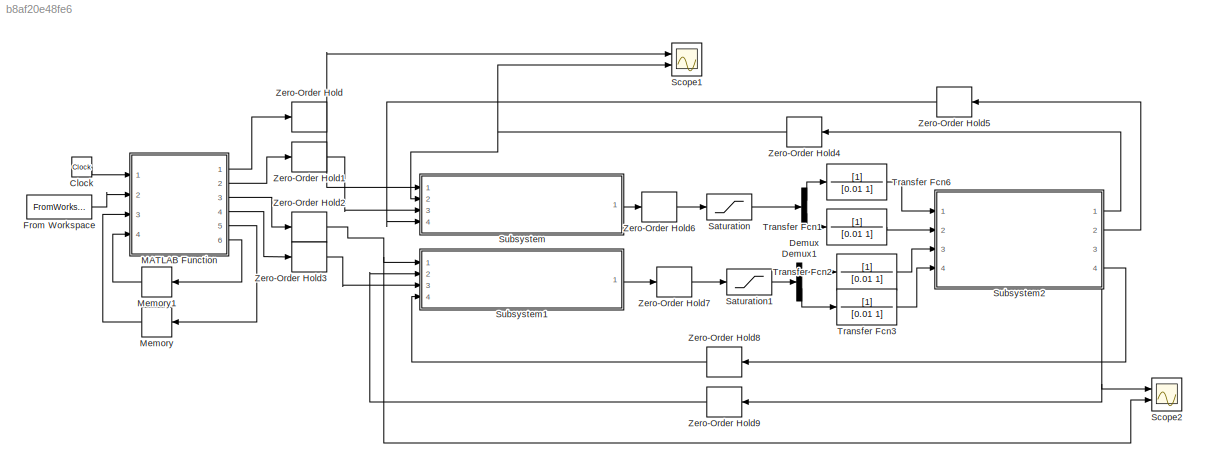
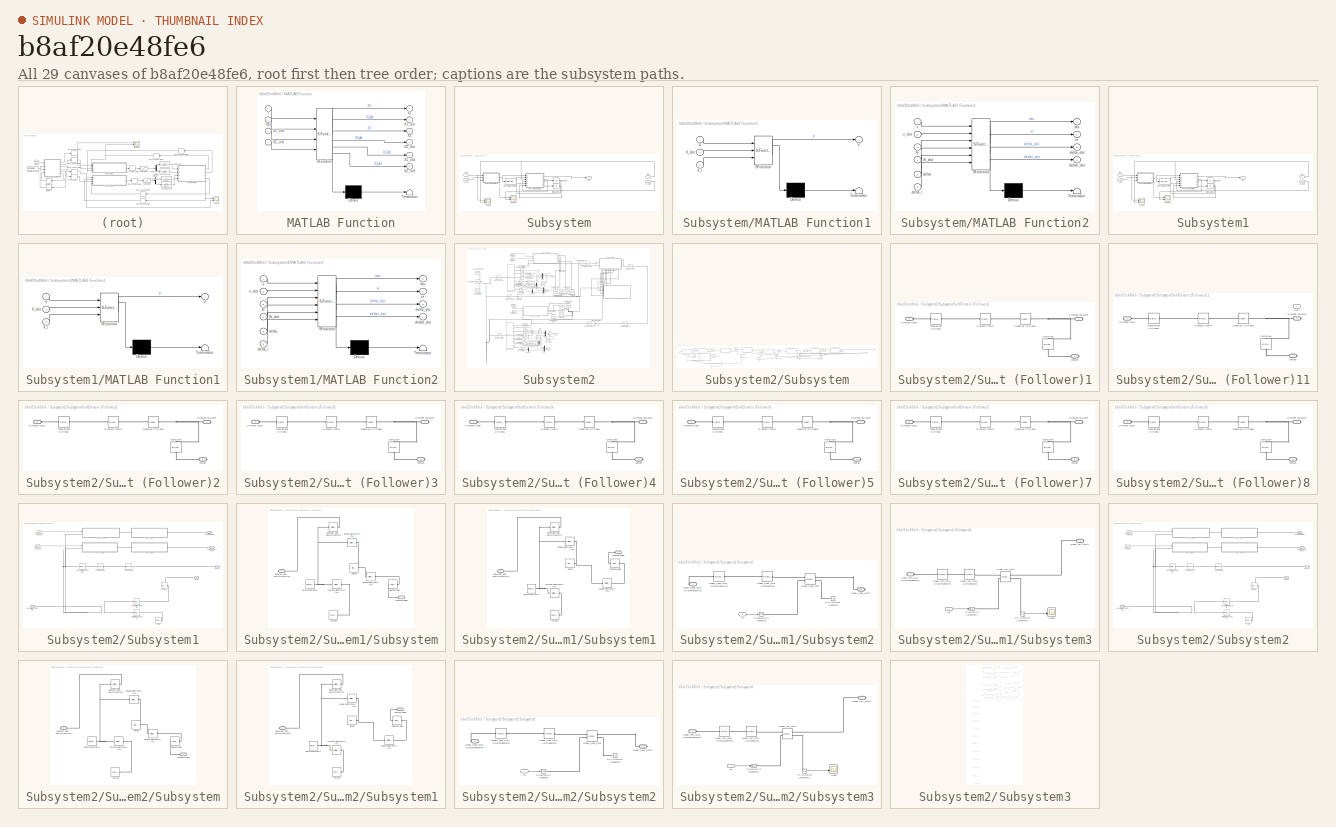
[diagram: thumbnail index - all 29 canvases of the model, root first then tree order]
MODEL slx_b8af20e48fe6
KIND model
CONFIG AbsTol = auto
CONFIG EnableMultiTasking = off
CONFIG FixedStep = 0.0001
CONFIG MaxStep = auto
CONFIG MinStep = auto
CONFIG RelTol = 1e-3
CONFIG SampleTimeConstraint = Unconstrained
CONFIG SolverName = VariableStepAuto
CONFIG StartTime = 0.0
CONFIG StopTime = 50
BLOCK [Clock] Clock
BLOCK [Demux] Demux
  Outputs = 2
  Ports = [1, 2]
BLOCK [Demux] Demux1
  Outputs = 2
  Ports = [1, 2]
BLOCK [FromWorkspace] From Workspace
  VariableName = traj2
BLOCK [SubSystem] MATLAB Function
  ErrorFcn = Stateflow.Translate.translate
  PermitHierarchicalResolution = ExplicitOnly
  Ports = [4, 6]
  RequestExecContextInheritance = off
  SFBlockType = MATLAB Function
  TreatAsAtomicUnit = on
BLOCK [Demux] MATLAB Function/ Demux 
  Outputs = 1
  Ports = [1, 1]
BLOCK [S-Function] MATLAB Function/ SFunction 
  EnableBusSupport = on
  FunctionName = sf_sfun
  PortCounts = [4 7]
  Ports = [4, 7]
  SFcnIsStateOwnerBlock = off
  SFunctionDeploymentMode = off
  Tag = Stateflow S-Function 2
BLOCK [Terminator] MATLAB Function/ Terminator 
BLOCK [Outport] MATLAB Function/X1
BLOCK [Outport] MATLAB Function/X1_dot
  Port = 2
BLOCK [Outport] MATLAB Function/X1_old
  Port = 5
BLOCK [Inport] MATLAB Function/X1_old 
  Port = 3
BLOCK [Outport] MATLAB Function/X2
  Port = 3
BLOCK [Outport] MATLAB Function/X2_dot
  Port = 4
BLOCK [Outport] MATLAB Function/X2_old
  Port = 6
BLOCK [Inport] MATLAB Function/X2_old 
  Port = 4
BLOCK [Inport] MATLAB Function/t
BLOCK [Inport] MATLAB Function/traj
  Port = 2
BLOCK [Memory] Memory
  InitialCondition = [1.3;0.5]
BLOCK [Memory] Memory1
  InitialCondition = [0.7;0.5]
BLOCK [Saturate] Saturation
  LowerLimit = -4.8
  UpperLimit = 4.8
BLOCK [Saturate] Saturation1
  LowerLimit = -4.8
  UpperLimit = 4.8
BLOCK [Scope] Scope1
  Floating = off
  NumInputPorts = 2
  Ports = [2]
  ScopeSpecificationString = Simulink.scopes.TimeScopeBlockCfg('CurrentConfiguration', extmgr.ConfigurationSet(extmgr.Configuration('Core','General UI',true),extmgr.Configuration('Core','Source UI',true),extmgr.Configuration('Sources','WiredSimulink',true,'DataLoggingVariableName','ScopeData1'),extmgr.Configuration('Visuals','Time Domain',true,'SerializedDisplays',{struct('MinYLimReal','0.16198','MaxYLimReal','3.47366','YLabe...<+1669ch>
BLOCK [Scope] Scope2
  Floating = off
  NumInputPorts = 2
  Ports = [2]
  ScopeSpecificationString = Simulink.scopes.TimeScopeBlockCfg('CurrentConfiguration', extmgr.ConfigurationSet(extmgr.Configuration('Core','General UI',true),extmgr.Configuration('Core','Source UI',true),extmgr.Configuration('Sources','WiredSimulink',true,'DataLoggingVariableName','ScopeData2'),extmgr.Configuration('Visuals','Time Domain',true,'SerializedDisplays',{struct('MinYLimReal','-0.51748','MaxYLimReal','3.56083','YLab...<+1674ch>
BLOCK [SubSystem] Subsystem
  Ports = [4, 1]
  RequestExecContextInheritance = off
BLOCK [Reference] Subsystem/Discrete Derivative  REF=simulink/Discrete/Discrete Derivative
  NameLocation = right
  Ports = [1, 1]
  SourceBlock = simulink/Discrete/Discrete Derivative
  SourceProductBaseCode = SL
  SourceType = Discrete Derivative
BLOCK [Inport] Subsystem/In1
BLOCK [Inport] Subsystem/In2
  Port = 2
BLOCK [Integrator] Subsystem/Integrator
  InitialCondition = zeros(2,2)
  Ports = [1, 1]
BLOCK [Integrator] Subsystem/Integrator1
  InitialCondition = zeros(2,2)
  Ports = [1, 1]
BLOCK [SubSystem] Subsystem/MATLAB Function1
  ErrorFcn = Stateflow.Translate.translate
  PermitHierarchicalResolution = ExplicitOnly
  Ports = [3, 1]
  RequestExecContextInheritance = off
  SFBlockType = MATLAB Function
  TreatAsAtomicUnit = on
BLOCK [Demux] Subsystem/MATLAB Function1/ Demux 
  Outputs = 1
  Ports = [1, 1]
BLOCK [S-Function] Subsystem/MATLAB Function1/ SFunction 
  EnableBusSupport = on
  FunctionName = sf_sfun
  PortCounts = [3 2]
  Ports = [3, 2]
  SFcnIsStateOwnerBlock = off
  SFunctionDeploymentMode = off
  Tag = Stateflow S-Function 1
BLOCK [Terminator] Subsystem/MATLAB Function1/ Terminator 
BLOCK [Outport] Subsystem/MATLAB Function1/V
BLOCK [Inport] Subsystem/MATLAB Function1/X
BLOCK [Inport] Subsystem/MATLAB Function1/X_dot
  Port = 2
BLOCK [Inport] Subsystem/MATLAB Function1/X_r
  Port = 3
BLOCK [SubSystem] Subsystem/MATLAB Function2
  ErrorFcn = Stateflow.Translate.translate
  PermitHierarchicalResolution = ExplicitOnly
  Ports = [6, 4]
  RequestExecContextInheritance = off
  SFBlockType = MATLAB Function
  TreatAsAtomicUnit = on
BLOCK [Demux] Subsystem/MATLAB Function2/ Demux 
  Outputs = 1
  Ports = [1, 1]
BLOCK [S-Function] Subsystem/MATLAB Function2/ SFunction 
  EnableBusSupport = on
  FunctionName = sf_sfun
  PortCounts = [6 5]
  Ports = [6, 5]
  SFcnIsStateOwnerBlock = off
  SFunctionDeploymentMode = off
  Tag = Stateflow S-Function 3
BLOCK [Terminator] Subsystem/MATLAB Function2/ Terminator 
BLOCK [Inport] Subsystem/MATLAB Function2/Xr
  Port = 3
BLOCK [Inport] Subsystem/MATLAB Function2/Xr_dot
  Port = 4
BLOCK [Inport] Subsystem/MATLAB Function2/delta
  Port = 5
BLOCK [Outport] Subsystem/MATLAB Function2/delta_dot
  Port = 3
BLOCK [Inport] Subsystem/MATLAB Function2/delta_r
  Port = 6
BLOCK [Outport] Subsystem/MATLAB Function2/deltar_dot
  Port = 4
BLOCK [Outport] Subsystem/MATLAB Function2/tau
BLOCK [Inport] Subsystem/MATLAB Function2/v
BLOCK [Inport] Subsystem/MATLAB Function2/v_dot
  Port = 2
BLOCK [Outport] Subsystem/MATLAB Function2/vr
  Port = 2
BLOCK [Scope] Subsystem/Scope
  Floating = off
  NumInputPorts = 2
  Ports = [2]
  ScopeSpecificationString = Simulink.scopes.TimeScopeBlockCfg('CurrentConfiguration', extmgr.ConfigurationSet(extmgr.Configuration('Core','General UI',true),extmgr.Configuration('Core','Source UI',true),extmgr.Configuration('Sources','WiredSimulink',true),extmgr.Configuration('Visuals','Time Domain',true,'SerializedDisplays',{struct('MinYLimReal','-0.43781','MaxYLimReal','3.65999','YLabelReal','','MinYLimMag','0.00000','MaxY...<+1568ch>
BLOCK [Scope] Subsystem/Scope1
  Floating = off
  NumInputPorts = 2
  Ports = [2]
  ScopeSpecificationString = Simulink.scopes.TimeScopeBlockCfg('CurrentConfiguration', extmgr.ConfigurationSet(extmgr.Configuration('Core','General UI',true),extmgr.Configuration('Core','Source UI',true),extmgr.Configuration('Sources','WiredSimulink',true,'DataLoggingVariableName','ScopeData1'),extmgr.Configuration('Visuals','Time Domain',true,'SerializedDisplays',{struct('MinYLimReal','-1.16225','MaxYLimReal','1.51886','YLab...<+1684ch>
BLOCK [Inport] Subsystem/X_dot
  Port = 3
BLOCK [Inport] Subsystem/Xr_dot
  Port = 4
BLOCK [Outport] Subsystem/tau
BLOCK [SubSystem] Subsystem1
  Ports = [4, 1]
  RequestExecContextInheritance = off
BLOCK [Reference] Subsystem1/Discrete Derivative  REF=simulink/Discrete/Discrete Derivative
  NameLocation = right
  Ports = [1, 1]
  SourceBlock = simulink/Discrete/Discrete Derivative
  SourceProductBaseCode = SL
  SourceType = Discrete Derivative
BLOCK [Inport] Subsystem1/In1
BLOCK [Inport] Subsystem1/In2
  Port = 2
BLOCK [Integrator] Subsystem1/Integrator
  InitialCondition = zeros(2,2)
  Ports = [1, 1]
BLOCK [Integrator] Subsystem1/Integrator1
  InitialCondition = zeros(2,2)
  Ports = [1, 1]
BLOCK [SubSystem] Subsystem1/MATLAB Function1
  ErrorFcn = Stateflow.Translate.translate
  PermitHierarchicalResolution = ExplicitOnly
  Ports = [3, 1]
  RequestExecContextInheritance = off
  SFBlockType = MATLAB Function
  TreatAsAtomicUnit = on
BLOCK [Demux] Subsystem1/MATLAB Function1/ Demux 
  Outputs = 1
  Ports = [1, 1]
BLOCK [S-Function] Subsystem1/MATLAB Function1/ SFunction 
  EnableBusSupport = on
  FunctionName = sf_sfun
  PortCounts = [3 2]
  Ports = [3, 2]
  SFcnIsStateOwnerBlock = off
  SFunctionDeploymentMode = off
  Tag = Stateflow S-Function 4
BLOCK [Terminator] Subsystem1/MATLAB Function1/ Terminator 
BLOCK [Outport] Subsystem1/MATLAB Function1/V
BLOCK [Inport] Subsystem1/MATLAB Function1/X
BLOCK [Inport] Subsystem1/MATLAB Function1/X_dot
  Port = 2
BLOCK [Inport] Subsystem1/MATLAB Function1/X_r
  Port = 3
BLOCK [SubSystem] Subsystem1/MATLAB Function2
  ErrorFcn = Stateflow.Translate.translate
  PermitHierarchicalResolution = ExplicitOnly
  Ports = [6, 4]
  RequestExecContextInheritance = off
  SFBlockType = MATLAB Function
  TreatAsAtomicUnit = on
BLOCK [Demux] Subsystem1/MATLAB Function2/ Demux 
  Outputs = 1
  Ports = [1, 1]
BLOCK [S-Function] Subsystem1/MATLAB Function2/ SFunction 
  EnableBusSupport = on
  FunctionName = sf_sfun
  PortCounts = [6 5]
  Ports = [6, 5]
  SFcnIsStateOwnerBlock = off
  SFunctionDeploymentMode = off
  Tag = Stateflow S-Function 5
BLOCK [Terminator] Subsystem1/MATLAB Function2/ Terminator 
BLOCK [Inport] Subsystem1/MATLAB Function2/Xr
  Port = 3
BLOCK [Inport] Subsystem1/MATLAB Function2/Xr_dot
  Port = 4
BLOCK [Inport] Subsystem1/MATLAB Function2/delta
  Port = 5
BLOCK [Outport] Subsystem1/MATLAB Function2/delta_dot
  Port = 3
BLOCK [Inport] Subsystem1/MATLAB Function2/delta_r
  Port = 6
BLOCK [Outport] Subsystem1/MATLAB Function2/deltar_dot
  Port = 4
BLOCK [Outport] Subsystem1/MATLAB Function2/tau
BLOCK [Inport] Subsystem1/MATLAB Function2/v
BLOCK [Inport] Subsystem1/MATLAB Function2/v_dot
  Port = 2
BLOCK [Outport] Subsystem1/MATLAB Function2/vr
  Port = 2
BLOCK [Scope] Subsystem1/Scope
  Floating = off
  NumInputPorts = 2
  Ports = [2]
  ScopeSpecificationString = Simulink.scopes.TimeScopeBlockCfg('CurrentConfiguration', extmgr.ConfigurationSet(extmgr.Configuration('Core','General UI',true),extmgr.Configuration('Core','Source UI',true),extmgr.Configuration('Sources','WiredSimulink',true),extmgr.Configuration('Visuals','Time Domain',true,'SerializedDisplays',{struct('MinYLimReal','-3.52945','MaxYLimReal','16.06008','YLabelReal','','MinYLimMag','0.00000','Max...<+1625ch>
BLOCK [Scope] Subsystem1/Scope1
  Floating = off
  NumInputPorts = 2
  Ports = [2]
  ScopeSpecificationString = Simulink.scopes.TimeScopeBlockCfg('CurrentConfiguration', extmgr.ConfigurationSet(extmgr.Configuration('Core','General UI',true),extmgr.Configuration('Core','Source UI',true),extmgr.Configuration('Sources','WiredSimulink',true,'DataLoggingVariableName','ScopeData1'),extmgr.Configuration('Visuals','Time Domain',true,'SerializedDisplays',{struct('MinYLimReal','-61.84914','MaxYLimReal','70.61214','YL...<+1690ch>
BLOCK [Inport] Subsystem1/X_dot
  Port = 3
BLOCK [Inport] Subsystem1/Xr_dot
  Port = 4
BLOCK [Outport] Subsystem1/tau
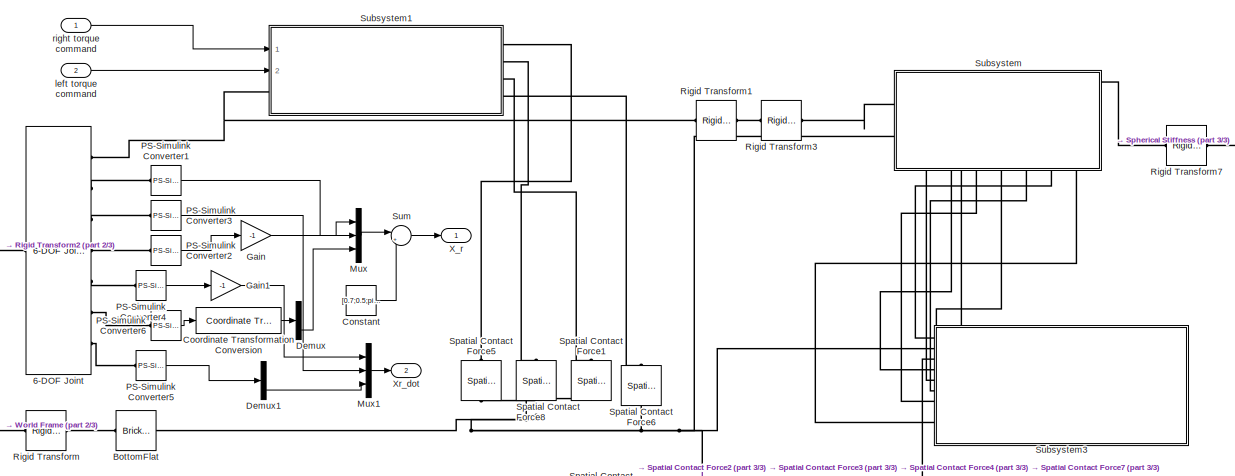
[diagram: Subsystem2 - part 1/3, top center region]
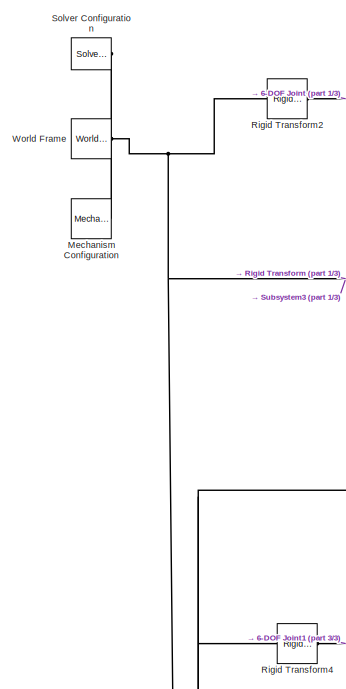
[diagram: Subsystem2 - part 2/3, middle left region]
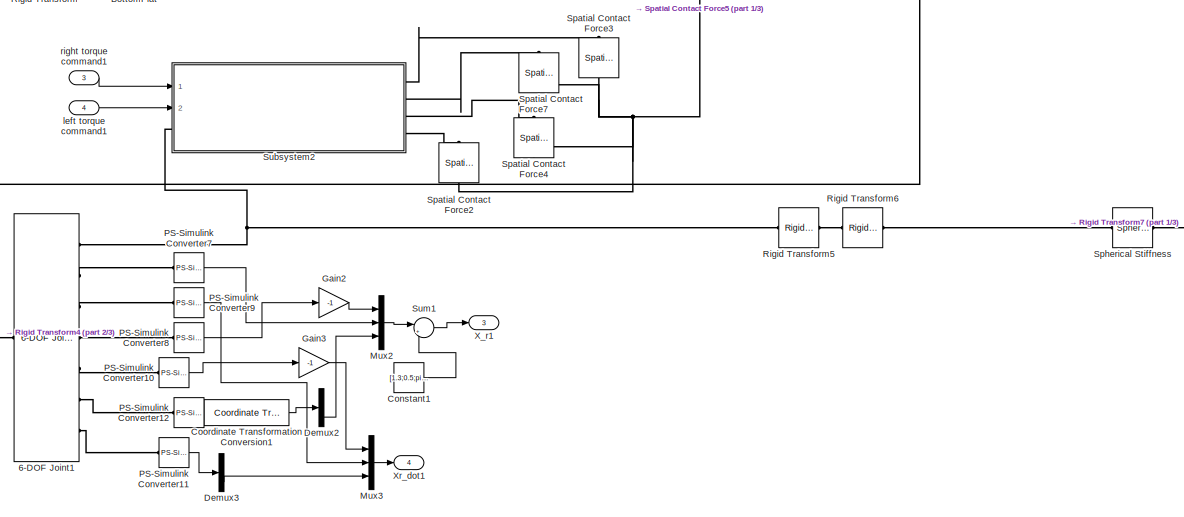
[diagram: Subsystem2 - part 3/3, central region]
BLOCK [SubSystem] Subsystem2
  Ports = [4, 4]
  RequestExecContextInheritance = off
BLOCK [Reference] Subsystem2/6-DOF Joint  REF=sm_lib/Joints/6-DOF Joint
  NameLocation = top
  Ports = [0, 0, 0, 0, 0, 1, 7]
  SourceBlock = sm_lib/Joints/6-DOF Joint
  SourceProductBaseCode = MS
  SourceType = 6-DOF Joint
BLOCK [Reference] Subsystem2/6-DOF Joint1  REF=sm_lib/Joints/6-DOF Joint
  NameLocation = top
  Ports = [0, 0, 0, 0, 0, 1, 7]
  SourceBlock = sm_lib/Joints/6-DOF Joint
  SourceProductBaseCode = MS
  SourceType = 6-DOF Joint
BLOCK [Reference] Subsystem2/BottomFlat  REF=sm_lib/Body Elements/Brick Solid
  Ports = [0, 0, 0, 0, 0, 1, 1]
  SourceBlock = sm_lib/Body Elements/Brick Solid
  SourceProductBaseCode = MS
  SourceType = Brick Solid
BLOCK [Constant] Subsystem2/Constant
  Value = [0.7;0.5;pi/2]
BLOCK [Constant] Subsystem2/Constant1
  Value = [1.3;0.5;pi/2]
BLOCK [Reference] Subsystem2/Coordinate Transformation Conversion  REF=robotcorelib/Coordinate Transformation Conversion
  Ports = [1, 1]
  SourceBlock = robotcorelib/Coordinate Transformation Conversion
  SourceProductBaseCode = NV,RO,RR,UV
  SourceType = robotics.slcore.internal.block.CoordinateTransformationConversion
BLOCK [Reference] Subsystem2/Coordinate Transformation Conversion1  REF=robotcorelib/Coordinate Transformation Conversion
  Ports = [1, 1]
  SourceBlock = robotcorelib/Coordinate Transformation Conversion
  SourceProductBaseCode = NV,RO,RR,UV
  SourceType = robotics.slcore.internal.block.CoordinateTransformationConversion
BLOCK [Demux] Subsystem2/Demux
  Outputs = 3
  Ports = [1, 3]
BLOCK [Demux] Subsystem2/Demux1
  Outputs = 3
  Ports = [1, 3]
BLOCK [Demux] Subsystem2/Demux2
  Outputs = 3
  Ports = [1, 3]
BLOCK [Demux] Subsystem2/Demux3
  Outputs = 3
  Ports = [1, 3]
BLOCK [Gain] Subsystem2/Gain
  Gain = -1
BLOCK [Gain] Subsystem2/Gain1
  Gain = -1
BLOCK [Gain] Subsystem2/Gain2
  Gain = -1
BLOCK [Gain] Subsystem2/Gain3
  Gain = -1
BLOCK [Reference] Subsystem2/Mechanism Configuration  REF=sm_lib/Utilities/Mechanism
Configuration
  Ports = [0, 0, 0, 0, 0, 0, 1]
  SourceBlock = sm_lib/Utilities/Mechanism\nConfiguration
  SourceProductBaseCode = MS
  SourceType = Mechanism\nConfiguration
BLOCK [Mux] Subsystem2/Mux
  DisplayOption = bar
  Inputs = 3
  Ports = [3, 1]
BLOCK [Mux] Subsystem2/Mux1
  DisplayOption = bar
  Inputs = 3
  Ports = [3, 1]
BLOCK [Mux] Subsystem2/Mux2
  DisplayOption = bar
  Inputs = 3
  Ports = [3, 1]
BLOCK [Mux] Subsystem2/Mux3
  DisplayOption = bar
  Inputs = 3
  Ports = [3, 1]
BLOCK [Reference] Subsystem2/PS-Simulink Converter1  REF=nesl_utility/PS-Simulink
Converter
  Ports = [0, 1, 0, 0, 0, 1]
  SourceBlock = nesl_utility/PS-Simulink\nConverter
  SourceProductBaseCode = PW,SS
  SourceType = PS-Simulink\nConverter
BLOCK [Reference] Subsystem2/PS-Simulink Converter10  REF=nesl_utility/PS-Simulink
Converter
  Ports = [0, 1, 0, 0, 0, 1]
  SourceBlock = nesl_utility/PS-Simulink\nConverter
  SourceProductBaseCode = PW,SS
  SourceType = PS-Simulink\nConverter
BLOCK [Reference] Subsystem2/PS-Simulink Converter11  REF=nesl_utility/PS-Simulink
Converter
  Ports = [0, 1, 0, 0, 0, 1]
  SourceBlock = nesl_utility/PS-Simulink\nConverter
  SourceProductBaseCode = PW,SS
  SourceType = PS-Simulink\nConverter
BLOCK [Reference] Subsystem2/PS-Simulink Converter12  REF=nesl_utility/PS-Simulink
Converter
  Ports = [0, 1, 0, 0, 0, 1]
  SourceBlock = nesl_utility/PS-Simulink\nConverter
  SourceProductBaseCode = PW,SS
  SourceType = PS-Simulink\nConverter
BLOCK [Reference] Subsystem2/PS-Simulink Converter2  REF=nesl_utility/PS-Simulink
Converter
  Ports = [0, 1, 0, 0, 0, 1]
  SourceBlock = nesl_utility/PS-Simulink\nConverter
  SourceProductBaseCode = PW,SS
  SourceType = PS-Simulink\nConverter
BLOCK [Reference] Subsystem2/PS-Simulink Converter3  REF=nesl_utility/PS-Simulink
Converter
  Ports = [0, 1, 0, 0, 0, 1]
  SourceBlock = nesl_utility/PS-Simulink\nConverter
  SourceProductBaseCode = PW,SS
  SourceType = PS-Simulink\nConverter
BLOCK [Reference] Subsystem2/PS-Simulink Converter4  REF=nesl_utility/PS-Simulink
Converter
  Ports = [0, 1, 0, 0, 0, 1]
  SourceBlock = nesl_utility/PS-Simulink\nConverter
  SourceProductBaseCode = PW,SS
  SourceType = PS-Simulink\nConverter
BLOCK [Reference] Subsystem2/PS-Simulink Converter5  REF=nesl_utility/PS-Simulink
Converter
  Ports = [0, 1, 0, 0, 0, 1]
  SourceBlock = nesl_utility/PS-Simulink\nConverter
  SourceProductBaseCode = PW,SS
  SourceType = PS-Simulink\nConverter
BLOCK [Reference] Subsystem2/PS-Simulink Converter6  REF=nesl_utility/PS-Simulink
Converter
  Ports = [0, 1, 0, 0, 0, 1]
  SourceBlock = nesl_utility/PS-Simulink\nConverter
  SourceProductBaseCode = PW,SS
  SourceType = PS-Simulink\nConverter
BLOCK [Reference] Subsystem2/PS-Simulink Converter7  REF=nesl_utility/PS-Simulink
Converter
  Ports = [0, 1, 0, 0, 0, 1]
  SourceBlock = nesl_utility/PS-Simulink\nConverter
  SourceProductBaseCode = PW,SS
  SourceType = PS-Simulink\nConverter
BLOCK [Reference] Subsystem2/PS-Simulink Converter8  REF=nesl_utility/PS-Simulink
Converter
  Ports = [0, 1, 0, 0, 0, 1]
  SourceBlock = nesl_utility/PS-Simulink\nConverter
  SourceProductBaseCode = PW,SS
  SourceType = PS-Simulink\nConverter
BLOCK [Reference] Subsystem2/PS-Simulink Converter9  REF=nesl_utility/PS-Simulink
Converter
  Ports = [0, 1, 0, 0, 0, 1]
  SourceBlock = nesl_utility/PS-Simulink\nConverter
  SourceProductBaseCode = PW,SS
  SourceType = PS-Simulink\nConverter
BLOCK [Reference] Subsystem2/Rigid Transform  REF=sm_lib/Frames and
Transforms/Rigid
Transform
  Ports = [0, 0, 0, 0, 0, 1, 1]
  SourceBlock = sm_lib/Frames and\nTransforms/Rigid\nTransform
  SourceProductBaseCode = MS
  SourceType = Rigid\nTransform
BLOCK [Reference] Subsystem2/Rigid Transform1  REF=sm_lib/Frames and
Transforms/Rigid
Transform
  Ports = [0, 0, 0, 0, 0, 1, 1]
  SourceBlock = sm_lib/Frames and\nTransforms/Rigid\nTransform
  SourceProductBaseCode = MS
  SourceType = Rigid\nTransform
BLOCK [Reference] Subsystem2/Rigid Transform2  REF=sm_lib/Frames and
Transforms/Rigid
Transform
  Ports = [0, 0, 0, 0, 0, 1, 1]
  SourceBlock = sm_lib/Frames and\nTransforms/Rigid\nTransform
  SourceProductBaseCode = MS
  SourceType = Rigid\nTransform
BLOCK [Reference] Subsystem2/Rigid Transform3  REF=sm_lib/Frames and
Transforms/Rigid
Transform
  Ports = [0, 0, 0, 0, 0, 1, 1]
  SourceBlock = sm_lib/Frames and\nTransforms/Rigid\nTransform
  SourceProductBaseCode = MS
  SourceType = Rigid\nTransform
BLOCK [Reference] Subsystem2/Rigid Transform4  REF=sm_lib/Frames and
Transforms/Rigid
Transform
  Ports = [0, 0, 0, 0, 0, 1, 1]
  SourceBlock = sm_lib/Frames and\nTransforms/Rigid\nTransform
  SourceProductBaseCode = MS
  SourceType = Rigid\nTransform
BLOCK [Reference] Subsystem2/Rigid Transform5  REF=sm_lib/Frames and
Transforms/Rigid
Transform
  Ports = [0, 0, 0, 0, 0, 1, 1]
  SourceBlock = sm_lib/Frames and\nTransforms/Rigid\nTransform
  SourceProductBaseCode = MS
  SourceType = Rigid\nTransform
BLOCK [Reference] Subsystem2/Rigid Transform6  REF=sm_lib/Frames and
Transforms/Rigid
Transform
  Ports = [0, 0, 0, 0, 0, 1, 1]
  SourceBlock = sm_lib/Frames and\nTransforms/Rigid\nTransform
  SourceProductBaseCode = MS
  SourceType = Rigid\nTransform
BLOCK [Reference] Subsystem2/Rigid Transform7  REF=sm_lib/Frames and
Transforms/Rigid
Transform
  Ports = [0, 0, 0, 0, 0, 1, 1]
  SourceBlock = sm_lib/Frames and\nTransforms/Rigid\nTransform
  SourceProductBaseCode = MS
  SourceType = Rigid\nTransform
BLOCK [Reference] Subsystem2/Solver Configuration  REF=nesl_utility/Solver
Configuration
  Ports = [0, 0, 0, 0, 0, 0, 1]
  SourceBlock = nesl_utility/Solver\nConfiguration
  SourceProductBaseCode = PW,SS
  SourceType = Solver\nConfiguration
BLOCK [Reference] Subsystem2/Spatial Contact Force1  REF=sm_lib/Forces and
Torques/Spatial
Contact Force
  NameLocation = right
  Ports = [0, 0, 0, 0, 0, 1, 1]
  SourceBlock = sm_lib/Forces and\nTorques/Spatial\nContact Force
  SourceProductBaseCode = MS
  SourceType = Spatial\nContact Force
BLOCK [Reference] Subsystem2/Spatial Contact Force2  REF=sm_lib/Forces and
Torques/Spatial
Contact Force
  NameLocation = right
  Ports = [0, 0, 0, 0, 0, 1, 1]
  SourceBlock = sm_lib/Forces and\nTorques/Spatial\nContact Force
  SourceProductBaseCode = MS
  SourceType = Spatial\nContact Force
BLOCK [Reference] Subsystem2/Spatial Contact Force3  REF=sm_lib/Forces and
Torques/Spatial
Contact Force
  NameLocation = right
  Ports = [0, 0, 0, 0, 0, 1, 1]
  SourceBlock = sm_lib/Forces and\nTorques/Spatial\nContact Force
  SourceProductBaseCode = MS
  SourceType = Spatial\nContact Force
BLOCK [Reference] Subsystem2/Spatial Contact Force4  REF=sm_lib/Forces and
Torques/Spatial
Contact Force
  NameLocation = right
  Ports = [0, 0, 0, 0, 0, 1, 1]
  SourceBlock = sm_lib/Forces and\nTorques/Spatial\nContact Force
  SourceProductBaseCode = MS
  SourceType = Spatial\nContact Force
BLOCK [Reference] Subsystem2/Spatial Contact Force5  REF=sm_lib/Forces and
Torques/Spatial
Contact Force
  NameLocation = right
  Ports = [0, 0, 0, 0, 0, 1, 1]
  SourceBlock = sm_lib/Forces and\nTorques/Spatial\nContact Force
  SourceProductBaseCode = MS
  SourceType = Spatial\nContact Force
BLOCK [Reference] Subsystem2/Spatial Contact Force6  REF=sm_lib/Forces and
Torques/Spatial
Contact Force
  NameLocation = right
  Ports = [0, 0, 0, 0, 0, 1, 1]
  SourceBlock = sm_lib/Forces and\nTorques/Spatial\nContact Force
  SourceProductBaseCode = MS
  SourceType = Spatial\nContact Force
BLOCK [Reference] Subsystem2/Spatial Contact Force7  REF=sm_lib/Forces and
Torques/Spatial
Contact Force
  NameLocation = right
  Ports = [0, 0, 0, 0, 0, 1, 1]
  SourceBlock = sm_lib/Forces and\nTorques/Spatial\nContact Force
  SourceProductBaseCode = MS
  SourceType = Spatial\nContact Force
BLOCK [Reference] Subsystem2/Spatial Contact Force8  REF=sm_lib/Forces and
Torques/Spatial
Contact Force
  NameLocation = right
  Ports = [0, 0, 0, 0, 0, 1, 1]
  SourceBlock = sm_lib/Forces and\nTorques/Spatial\nContact Force
  SourceProductBaseCode = MS
  SourceType = Spatial\nContact Force
BLOCK [Reference] Subsystem2/Spherical Stiffness  REF=sm_lib/Joints/Spherical
Joint
  Ports = [0, 0, 0, 0, 0, 1, 1]
  SourceBlock = sm_lib/Joints/Spherical\nJoint
  SourceProductBaseCode = MS
  SourceType = Spherical\nJoint
BLOCK [SubSystem] Subsystem2/Subsystem
  PortSchema = {"entries":[{"content":{"sides":[{"content":{"connectorIds":["LConn1","LConn2"]},"type":"ConnectorPlacement.EquallySpacedRectSide","uuid":"e7916f3c-1da9-4014-9a65-decd12782486"},{"content":{"connectorIds":["RConn1"],"side":"RIGHT"},"type":"ConnectorPlacement.EquallySpacedRectSide","uuid":"43f5696a-1b8c-4928-9c14-15c355d3ef6c"},{"content":{"connectorIds":[],"side":"TOP"},"type":"ConnectorPlacement....<+469ch>
  Ports = [0, 0, 0, 0, 0, 2, 9]
  RequestExecContextInheritance = off
BLOCK [PMIOPort] Subsystem2/Subsystem/Body
  Side = Left
BLOCK [Reference] Subsystem2/Subsystem/Rigid Transform1  REF=sm_lib/Frames and
Transforms/Rigid
Transform
  Ports = [0, 0, 0, 0, 0, 1, 1]
  SourceBlock = sm_lib/Frames and\nTransforms/Rigid\nTransform
  SourceProductBaseCode = MS
  SourceType = Rigid\nTransform
BLOCK [Reference] Subsystem2/Subsystem/Rigid Transform10  REF=sm_lib/Frames and
Transforms/Rigid
Transform
  Ports = [0, 0, 0, 0, 0, 1, 1]
  SourceBlock = sm_lib/Frames and\nTransforms/Rigid\nTransform
  SourceProductBaseCode = MS
  SourceType = Rigid\nTransform
BLOCK [Reference] Subsystem2/Subsystem/Rigid Transform2  REF=sm_lib/Frames and
Transforms/Rigid
Transform
  Ports = [0, 0, 0, 0, 0, 1, 1]
  SourceBlock = sm_lib/Frames and\nTransforms/Rigid\nTransform
  SourceProductBaseCode = MS
  SourceType = Rigid\nTransform
BLOCK [Reference] Subsystem2/Subsystem/Rigid Transform3  REF=sm_lib/Frames and
Transforms/Rigid
Transform
  Ports = [0, 0, 0, 0, 0, 1, 1]
  SourceBlock = sm_lib/Frames and\nTransforms/Rigid\nTransform
  SourceProductBaseCode = MS
  SourceType = Rigid\nTransform
BLOCK [Reference] Subsystem2/Subsystem/Rigid Transform4  REF=sm_lib/Frames and
Transforms/Rigid
Transform
  Ports = [0, 0, 0, 0, 0, 1, 1]
  SourceBlock = sm_lib/Frames and\nTransforms/Rigid\nTransform
  SourceProductBaseCode = MS
  SourceType = Rigid\nTransform
BLOCK [Reference] Subsystem2/Subsystem/Rigid Transform6  REF=sm_lib/Frames and
Transforms/Rigid
Transform
  Ports = [0, 0, 0, 0, 0, 1, 1]
  SourceBlock = sm_lib/Frames and\nTransforms/Rigid\nTransform
  SourceProductBaseCode = MS
  SourceType = Rigid\nTransform
BLOCK [Reference] Subsystem2/Subsystem/Rigid Transform9  REF=sm_lib/Frames and
Transforms/Rigid
Transform
  Ports = [0, 0, 0, 0, 0, 1, 1]
  SourceBlock = sm_lib/Frames and\nTransforms/Rigid\nTransform
  SourceProductBaseCode = MS
  SourceType = Rigid\nTransform
BLOCK [SubSystem] Subsystem2/Subsystem/SoftElement (Follower)1
  Ports = [0, 0, 0, 0, 0, 1, 2]
  RequestExecContextInheritance = off
BLOCK [PMIOPort] Subsystem2/Subsystem/SoftElement (Follower)1/Element Base
  Side = Left
BLOCK [Reference] Subsystem2/Subsystem/SoftElement (Follower)1/Element Centre  REF=sm_lib/Frames and
Transforms/Rigid
Transform
  Ports = [0, 0, 0, 0, 0, 1, 1]
  SourceBlock = sm_lib/Frames and\nTransforms/Rigid\nTransform
  SourceProductBaseCode = MS
  SourceType = Rigid\nTransform
BLOCK [PMIOPort] Subsystem2/Subsystem/SoftElement (Follower)1/Element Follower
  Port = 2
  Side = Right
BLOCK [Reference] Subsystem2/Subsystem/SoftElement (Follower)1/SoftBlock  REF=sm_lib/Body Elements/Brick Solid
  NameLocation = right
  Ports = [0, 0, 0, 0, 0, 1, 1]
  SourceBlock = sm_lib/Body Elements/Brick Solid
  SourceProductBaseCode = MS
  SourceType = Brick Solid
BLOCK [Reference] Subsystem2/Subsystem/SoftElement (Follower)1/Spherical Stiffness  REF=sm_lib/Joints/Spherical
Joint
  Ports = [0, 0, 0, 0, 0, 1, 1]
  SourceBlock = sm_lib/Joints/Spherical\nJoint
  SourceProductBaseCode = MS
  SourceType = Spherical\nJoint
BLOCK [Reference] Subsystem2/Subsystem/SoftElement (Follower)1/Translational Stiffness  REF=sm_lib/Joints/Cartesian
Joint
  Ports = [0, 0, 0, 0, 0, 1, 1]
  SourceBlock = sm_lib/Joints/Cartesian\nJoint
  SourceProductBaseCode = MS
  SourceType = Cartesian\nJoint
BLOCK [PMIOPort] Subsystem2/Subsystem/SoftElement (Follower)1/contact
  Port = 3
  Side = Right
BLOCK [SubSystem] Subsystem2/Subsystem/SoftElement (Follower)11
  PortSchema = {"entries":[{"content":{"sides":[{"content":{"connectorIds":["LConn1"]},"type":"ConnectorPlacement.EquallySpacedRectSide","uuid":"e52b30a5-f548-4760-96c6-e0e7dfc48cf4"},{"content":{"connectorIds":["RConn1","RConn2"],"side":"RIGHT"},"type":"ConnectorPlacement.EquallySpacedRectSide","uuid":"bb3629c6-8354-4208-a75f-4d0e3da2f0b1"},{"content":{"connectorIds":[],"side":"TOP"},"type":"ConnectorPlacement....<+404ch>
  Ports = [0, 1, 0, 0, 0, 1, 2]
  RequestExecContextInheritance = off
BLOCK [PMIOPort] Subsystem2/Subsystem/SoftElement (Follower)11/Element Base
  Side = Left
BLOCK [Reference] Subsystem2/Subsystem/SoftElement (Follower)11/Element Centre  REF=sm_lib/Frames and
Transforms/Rigid
Transform
  Ports = [0, 0, 0, 0, 0, 1, 1]
  SourceBlock = sm_lib/Frames and\nTransforms/Rigid\nTransform
  SourceProductBaseCode = MS
  SourceType = Rigid\nTransform
BLOCK [PMIOPort] Subsystem2/Subsystem/SoftElement (Follower)11/Element Follower
  Port = 2
  Side = Right
BLOCK [Outport] Subsystem2/Subsystem/SoftElement (Follower)11/Out1
BLOCK [Reference] Subsystem2/Subsystem/SoftElement (Follower)11/SoftBlock  REF=sm_lib/Body Elements/Brick Solid
  NameLocation = right
  Ports = [0, 0, 0, 0, 0, 1, 1]
  SourceBlock = sm_lib/Body Elements/Brick Solid
  SourceProductBaseCode = MS
  SourceType = Brick Solid
BLOCK [Reference] Subsystem2/Subsystem/SoftElement (Follower)11/Spherical Stiffness  REF=sm_lib/Joints/Spherical
Joint
  Ports = [0, 0, 0, 0, 0, 1, 1]
  SourceBlock = sm_lib/Joints/Spherical\nJoint
  SourceProductBaseCode = MS
  SourceType = Spherical\nJoint
BLOCK [Reference] Subsystem2/Subsystem/SoftElement (Follower)11/Translational Stiffness  REF=sm_lib/Joints/Cartesian
Joint
  Ports = [0, 0, 0, 0, 0, 1, 1]
  SourceBlock = sm_lib/Joints/Cartesian\nJoint
  SourceProductBaseCode = MS
  SourceType = Cartesian\nJoint
BLOCK [PMIOPort] Subsystem2/Subsystem/SoftElement (Follower)11/contact
  Port = 3
  Side = Right
BLOCK [SubSystem] Subsystem2/Subsystem/SoftElement (Follower)2
  Ports = [0, 0, 0, 0, 0, 1, 2]
  RequestExecContextInheritance = off
BLOCK [PMIOPort] Subsystem2/Subsystem/SoftElement (Follower)2/Element Base
  Side = Left
BLOCK [Reference] Subsystem2/Subsystem/SoftElement (Follower)2/Element Centre  REF=sm_lib/Frames and
Transforms/Rigid
Transform
  Ports = [0, 0, 0, 0, 0, 1, 1]
  SourceBlock = sm_lib/Frames and\nTransforms/Rigid\nTransform
  SourceProductBaseCode = MS
  SourceType = Rigid\nTransform
BLOCK [PMIOPort] Subsystem2/Subsystem/SoftElement (Follower)2/Element Follower
  Port = 2
  Side = Right
BLOCK [Reference] Subsystem2/Subsystem/SoftElement (Follower)2/SoftBlock  REF=sm_lib/Body Elements/Brick Solid
  NameLocation = right
  Ports = [0, 0, 0, 0, 0, 1, 1]
  SourceBlock = sm_lib/Body Elements/Brick Solid
  SourceProductBaseCode = MS
  SourceType = Brick Solid
BLOCK [Reference] Subsystem2/Subsystem/SoftElement (Follower)2/Spherical Stiffness  REF=sm_lib/Joints/Spherical
Joint
  Ports = [0, 0, 0, 0, 0, 1, 1]
  SourceBlock = sm_lib/Joints/Spherical\nJoint
  SourceProductBaseCode = MS
  SourceType = Spherical\nJoint
BLOCK [Reference] Subsystem2/Subsystem/SoftElement (Follower)2/Translational Stiffness  REF=sm_lib/Joints/Cartesian
Joint
  Ports = [0, 0, 0, 0, 0, 1, 1]
  SourceBlock = sm_lib/Joints/Cartesian\nJoint
  SourceProductBaseCode = MS
  SourceType = Cartesian\nJoint
BLOCK [PMIOPort] Subsystem2/Subsystem/SoftElement (Follower)2/contact
  Port = 3
  Side = Right
BLOCK [SubSystem] Subsystem2/Subsystem/SoftElement (Follower)3
  Ports = [0, 0, 0, 0, 0, 1, 2]
  RequestExecContextInheritance = off
BLOCK [PMIOPort] Subsystem2/Subsystem/SoftElement (Follower)3/Element Base
  Side = Left
BLOCK [Reference] Subsystem2/Subsystem/SoftElement (Follower)3/Element Centre  REF=sm_lib/Frames and
Transforms/Rigid
Transform
  Ports = [0, 0, 0, 0, 0, 1, 1]
  SourceBlock = sm_lib/Frames and\nTransforms/Rigid\nTransform
  SourceProductBaseCode = MS
  SourceType = Rigid\nTransform
BLOCK [PMIOPort] Subsystem2/Subsystem/SoftElement (Follower)3/Element Follower
  Port = 2
  Side = Right
BLOCK [Reference] Subsystem2/Subsystem/SoftElement (Follower)3/SoftBlock  REF=sm_lib/Body Elements/Brick Solid
  NameLocation = right
  Ports = [0, 0, 0, 0, 0, 1, 1]
  SourceBlock = sm_lib/Body Elements/Brick Solid
  SourceProductBaseCode = MS
  SourceType = Brick Solid
BLOCK [Reference] Subsystem2/Subsystem/SoftElement (Follower)3/Spherical Stiffness  REF=sm_lib/Joints/Spherical
Joint
  Ports = [0, 0, 0, 0, 0, 1, 1]
  SourceBlock = sm_lib/Joints/Spherical\nJoint
  SourceProductBaseCode = MS
  SourceType = Spherical\nJoint
BLOCK [Reference] Subsystem2/Subsystem/SoftElement (Follower)3/Translational Stiffness  REF=sm_lib/Joints/Cartesian
Joint
  Ports = [0, 0, 0, 0, 0, 1, 1]
  SourceBlock = sm_lib/Joints/Cartesian\nJoint
  SourceProductBaseCode = MS
  SourceType = Cartesian\nJoint
BLOCK [PMIOPort] Subsystem2/Subsystem/SoftElement (Follower)3/contact
  Port = 3
  Side = Right
BLOCK [SubSystem] Subsystem2/Subsystem/SoftElement (Follower)4
  Ports = [0, 0, 0, 0, 0, 1, 2]
  RequestExecContextInheritance = off
BLOCK [PMIOPort] Subsystem2/Subsystem/SoftElement (Follower)4/Element Base
  Side = Left
BLOCK [Reference] Subsystem2/Subsystem/SoftElement (Follower)4/Element Centre  REF=sm_lib/Frames and
Transforms/Rigid
Transform
  Ports = [0, 0, 0, 0, 0, 1, 1]
  SourceBlock = sm_lib/Frames and\nTransforms/Rigid\nTransform
  SourceProductBaseCode = MS
  SourceType = Rigid\nTransform
BLOCK [PMIOPort] Subsystem2/Subsystem/SoftElement (Follower)4/Element Follower
  Port = 2
  Side = Right
BLOCK [Reference] Subsystem2/Subsystem/SoftElement (Follower)4/SoftBlock  REF=sm_lib/Body Elements/Brick Solid
  NameLocation = right
  Ports = [0, 0, 0, 0, 0, 1, 1]
  SourceBlock = sm_lib/Body Elements/Brick Solid
  SourceProductBaseCode = MS
  SourceType = Brick Solid
BLOCK [Reference] Subsystem2/Subsystem/SoftElement (Follower)4/Spherical Stiffness  REF=sm_lib/Joints/Spherical
Joint
  Ports = [0, 0, 0, 0, 0, 1, 1]
  SourceBlock = sm_lib/Joints/Spherical\nJoint
  SourceProductBaseCode = MS
  SourceType = Spherical\nJoint
BLOCK [Reference] Subsystem2/Subsystem/SoftElement (Follower)4/Translational Stiffness  REF=sm_lib/Joints/Cartesian
Joint
  Ports = [0, 0, 0, 0, 0, 1, 1]
  SourceBlock = sm_lib/Joints/Cartesian\nJoint
  SourceProductBaseCode = MS
  SourceType = Cartesian\nJoint
BLOCK [PMIOPort] Subsystem2/Subsystem/SoftElement (Follower)4/contact
  Port = 3
  Side = Right
BLOCK [SubSystem] Subsystem2/Subsystem/SoftElement (Follower)5
  Ports = [0, 0, 0, 0, 0, 1, 2]
  RequestExecContextInheritance = off
BLOCK [PMIOPort] Subsystem2/Subsystem/SoftElement (Follower)5/Element Base
  Side = Left
BLOCK [Reference] Subsystem2/Subsystem/SoftElement (Follower)5/Element Centre  REF=sm_lib/Frames and
Transforms/Rigid
Transform
  Ports = [0, 0, 0, 0, 0, 1, 1]
  SourceBlock = sm_lib/Frames and\nTransforms/Rigid\nTransform
  SourceProductBaseCode = MS
  SourceType = Rigid\nTransform
BLOCK [PMIOPort] Subsystem2/Subsystem/SoftElement (Follower)5/Element Follower
  Port = 2
  Side = Right
BLOCK [Reference] Subsystem2/Subsystem/SoftElement (Follower)5/SoftBlock  REF=sm_lib/Body Elements/Brick Solid
  NameLocation = right
  Ports = [0, 0, 0, 0, 0, 1, 1]
  SourceBlock = sm_lib/Body Elements/Brick Solid
  SourceProductBaseCode = MS
  SourceType = Brick Solid
BLOCK [Reference] Subsystem2/Subsystem/SoftElement (Follower)5/Spherical Stiffness  REF=sm_lib/Joints/Spherical
Joint
  Ports = [0, 0, 0, 0, 0, 1, 1]
  SourceBlock = sm_lib/Joints/Spherical\nJoint
  SourceProductBaseCode = MS
  SourceType = Spherical\nJoint
BLOCK [Reference] Subsystem2/Subsystem/SoftElement (Follower)5/Translational Stiffness  REF=sm_lib/Joints/Cartesian
Joint
  Ports = [0, 0, 0, 0, 0, 1, 1]
  SourceBlock = sm_lib/Joints/Cartesian\nJoint
  SourceProductBaseCode = MS
  SourceType = Cartesian\nJoint
BLOCK [PMIOPort] Subsystem2/Subsystem/SoftElement (Follower)5/contact
  Port = 3
  Side = Right
BLOCK [SubSystem] Subsystem2/Subsystem/SoftElement (Follower)7
  Ports = [0, 0, 0, 0, 0, 1, 2]
  RequestExecContextInheritance = off
BLOCK [PMIOPort] Subsystem2/Subsystem/SoftElement (Follower)7/Element Base
  Side = Left
BLOCK [Reference] Subsystem2/Subsystem/SoftElement (Follower)7/Element Centre  REF=sm_lib/Frames and
Transforms/Rigid
Transform
  Ports = [0, 0, 0, 0, 0, 1, 1]
  SourceBlock = sm_lib/Frames and\nTransforms/Rigid\nTransform
  SourceProductBaseCode = MS
  SourceType = Rigid\nTransform
BLOCK [PMIOPort] Subsystem2/Subsystem/SoftElement (Follower)7/Element Follower
  Port = 2
  Side = Right
BLOCK [Reference] Subsystem2/Subsystem/SoftElement (Follower)7/SoftBlock  REF=sm_lib/Body Elements/Brick Solid
  NameLocation = right
  Ports = [0, 0, 0, 0, 0, 1, 1]
  SourceBlock = sm_lib/Body Elements/Brick Solid
  SourceProductBaseCode = MS
  SourceType = Brick Solid
BLOCK [Reference] Subsystem2/Subsystem/SoftElement (Follower)7/Spherical Stiffness  REF=sm_lib/Joints/Spherical
Joint
  Ports = [0, 0, 0, 0, 0, 1, 1]
  SourceBlock = sm_lib/Joints/Spherical\nJoint
  SourceProductBaseCode = MS
  SourceType = Spherical\nJoint
BLOCK [Reference] Subsystem2/Subsystem/SoftElement (Follower)7/Translational Stiffness  REF=sm_lib/Joints/Cartesian
Joint
  Ports = [0, 0, 0, 0, 0, 1, 1]
  SourceBlock = sm_lib/Joints/Cartesian\nJoint
  SourceProductBaseCode = MS
  SourceType = Cartesian\nJoint
BLOCK [PMIOPort] Subsystem2/Subsystem/SoftElement (Follower)7/contact
  Port = 3
  Side = Right
BLOCK [SubSystem] Subsystem2/Subsystem/SoftElement (Follower)8
  Ports = [0, 0, 0, 0, 0, 1, 2]
  RequestExecContextInheritance = off
BLOCK [PMIOPort] Subsystem2/Subsystem/SoftElement (Follower)8/Element Base
  Side = Left
BLOCK [Reference] Subsystem2/Subsystem/SoftElement (Follower)8/Element Centre  REF=sm_lib/Frames and
Transforms/Rigid
Transform
  Ports = [0, 0, 0, 0, 0, 1, 1]
  SourceBlock = sm_lib/Frames and\nTransforms/Rigid\nTransform
  SourceProductBaseCode = MS
  SourceType = Rigid\nTransform
BLOCK [PMIOPort] Subsystem2/Subsystem/SoftElement (Follower)8/Element Follower
  Port = 2
  Side = Right
BLOCK [Reference] Subsystem2/Subsystem/SoftElement (Follower)8/SoftBlock  REF=sm_lib/Body Elements/Brick Solid
  NameLocation = right
  Ports = [0, 0, 0, 0, 0, 1, 1]
  SourceBlock = sm_lib/Body Elements/Brick Solid
  SourceProductBaseCode = MS
  SourceType = Brick Solid
BLOCK [Reference] Subsystem2/Subsystem/SoftElement (Follower)8/Spherical Stiffness  REF=sm_lib/Joints/Spherical
Joint
  Ports = [0, 0, 0, 0, 0, 1, 1]
  SourceBlock = sm_lib/Joints/Spherical\nJoint
  SourceProductBaseCode = MS
  SourceType = Spherical\nJoint
BLOCK [Reference] Subsystem2/Subsystem/SoftElement (Follower)8/Translational Stiffness  REF=sm_lib/Joints/Cartesian
Joint
  Ports = [0, 0, 0, 0, 0, 1, 1]
  SourceBlock = sm_lib/Joints/Cartesian\nJoint
  SourceProductBaseCode = MS
  SourceType = Cartesian\nJoint
BLOCK [PMIOPort] Subsystem2/Subsystem/SoftElement (Follower)8/contact
  Port = 3
  Side = Right
BLOCK [Reference] Subsystem2/Subsystem/Spatial Contact Force1  REF=sm_lib/Forces and
Torques/Spatial
Contact Force
  NameLocation = right
  Ports = [0, 0, 0, 0, 0, 1, 1]
  SourceBlock = sm_lib/Forces and\nTorques/Spatial\nContact Force
  SourceProductBaseCode = MS
  SourceType = Spatial\nContact Force
BLOCK [Reference] Subsystem2/Subsystem/Spatial Contact Force2  REF=sm_lib/Forces and
Torques/Spatial
Contact Force
  NameLocation = right
  Ports = [0, 0, 0, 0, 0, 1, 1]
  SourceBlock = sm_lib/Forces and\nTorques/Spatial\nContact Force
  SourceProductBaseCode = MS
  SourceType = Spatial\nContact Force
BLOCK [Reference] Subsystem2/Subsystem/Spatial Contact Force3  REF=sm_lib/Forces and
Torques/Spatial
Contact Force
  NameLocation = right
  Ports = [0, 0, 0, 0, 0, 1, 1]
  SourceBlock = sm_lib/Forces and\nTorques/Spatial\nContact Force
  SourceProductBaseCode = MS
  SourceType = Spatial\nContact Force
BLOCK [Reference] Subsystem2/Subsystem/Spatial Contact Force4  REF=sm_lib/Forces and
Torques/Spatial
Contact Force
  NameLocation = right
  Ports = [0, 0, 0, 0, 0, 1, 1]
  SourceBlock = sm_lib/Forces and\nTorques/Spatial\nContact Force
  SourceProductBaseCode = MS
  SourceType = Spatial\nContact Force
BLOCK [Reference] Subsystem2/Subsystem/Spatial Contact Force5  REF=sm_lib/Forces and
Torques/Spatial
Contact Force
  NameLocation = right
  Ports = [0, 0, 0, 0, 0, 1, 1]
  SourceBlock = sm_lib/Forces and\nTorques/Spatial\nContact Force
  SourceProductBaseCode = MS
  SourceType = Spatial\nContact Force
BLOCK [Reference] Subsystem2/Subsystem/Spatial Contact Force7  REF=sm_lib/Forces and
Torques/Spatial
Contact Force
  NameLocation = right
  Ports = [0, 0, 0, 0, 0, 1, 1]
  SourceBlock = sm_lib/Forces and\nTorques/Spatial\nContact Force
  SourceProductBaseCode = MS
  SourceType = Spatial\nContact Force
BLOCK [Reference] Subsystem2/Subsystem/Spatial Contact Force8  REF=sm_lib/Forces and
Torques/Spatial
Contact Force
  NameLocation = right
  Ports = [0, 0, 0, 0, 0, 1, 1]
  SourceBlock = sm_lib/Forces and\nTorques/Spatial\nContact Force
  SourceProductBaseCode = MS
  SourceType = Spatial\nContact Force
BLOCK [PMIOPort] Subsystem2/Subsystem/base
  Port = 2
  Side = Left
BLOCK [PMIOPort] Subsystem2/Subsystem/body
  Port = 3
  Side = Right
BLOCK [PMIOPort] Subsystem2/Subsystem/net1
  Port = 9
  Side = Right
BLOCK [PMIOPort] Subsystem2/Subsystem/net2
  Port = 5
  Side = Right
BLOCK [PMIOPort] Subsystem2/Subsystem/net3
  Port = 4
  Side = Right
BLOCK [PMIOPort] Subsystem2/Subsystem/net4
  Port = 8
  Side = Right
BLOCK [PMIOPort] Subsystem2/Subsystem/net5
  Port = 6
  Side = Right
BLOCK [PMIOPort] Subsystem2/Subsystem/net6
  Port = 7
  Side = Right
BLOCK [PMIOPort] Subsystem2/Subsystem/net7
  Port = 11
  Side = Right
BLOCK [PMIOPort] Subsystem2/Subsystem/net8
  Port = 10
  Side = Right
BLOCK [SubSystem] Subsystem2/Subsystem1
  Ports = [2, 0, 0, 0, 0, 1, 4]
  RequestExecContextInheritance = off
BLOCK [PMIOPort] Subsystem2/Subsystem1/Conn1
  Port = 5
  Side = Right
BLOCK [PMIOPort] Subsystem2/Subsystem1/Conn2
  Port = 2
  Side = Right
BLOCK [Reference] Subsystem2/Subsystem1/Inertia  REF=sm_lib/Body Elements/Inertia
  Ports = [0, 0, 0, 0, 0, 0, 1]
  SourceBlock = sm_lib/Body Elements/Inertia
  SourceProductBaseCode = MS
  SourceType = Inertia
BLOCK [Reference] Subsystem2/Subsystem1/InertiaOriginTransform  REF=sm_lib/Frames and
Transforms/Rigid
Transform
  Ports = [0, 0, 0, 0, 0, 1, 1]
  SourceBlock = sm_lib/Frames and\nTransforms/Rigid\nTransform
  SourceProductBaseCode = MS
  SourceType = Rigid\nTransform
BLOCK [PMIOPort] Subsystem2/Subsystem1/Spatial Contact Force8
  Port = 3
  Side = Right
BLOCK [Reference] Subsystem2/Subsystem1/Spherical Joint  REF=sm_lib/Joints/Spherical
Joint
  Ports = [0, 0, 0, 0, 0, 1, 1]
  SourceBlock = sm_lib/Joints/Spherical\nJoint
  SourceProductBaseCode = MS
  SourceType = Spherical\nJoint
BLOCK [Reference] Subsystem2/Subsystem1/Spherical Solid  REF=sm_lib/Body Elements/Spherical Solid
  Ports = [0, 0, 0, 0, 0, 1, 1]
  SourceBlock = sm_lib/Body Elements/Spherical Solid
  SourceProductBaseCode = MS
  SourceType = Spherical Solid
BLOCK [PMIOPort] Subsystem2/Subsystem1/Spherical Solid1
  Port = 4
  Side = Right
BLOCK [SubSystem] Subsystem2/Subsystem1/Subsystem
  Ports = [0, 0, 0, 0, 0, 1, 1]
  RequestExecContextInheritance = off
BLOCK [Reference] Subsystem2/Subsystem1/Subsystem/Cylindrical Solid  REF=sm_lib/Body Elements/Cylindrical Solid
  Ports = [0, 0, 0, 0, 0, 1, 1]
  SourceBlock = sm_lib/Body Elements/Cylindrical Solid
  SourceProductBaseCode = MS
  SourceType = Cylindrical Solid
BLOCK [Reference] Subsystem2/Subsystem1/Subsystem/Inertia1  REF=sm_lib/Body Elements/Inertia
  Ports = [0, 0, 0, 0, 0, 0, 1]
  SourceBlock = sm_lib/Body Elements/Inertia
  SourceProductBaseCode = MS
  SourceType = Inertia
BLOCK [Reference] Subsystem2/Subsystem1/Subsystem/InertiaOriginTransform1  REF=sm_lib/Frames and
Transforms/Rigid
Transform
  Ports = [0, 0, 0, 0, 0, 1, 1]
  SourceBlock = sm_lib/Frames and\nTransforms/Rigid\nTransform
  SourceProductBaseCode = MS
  SourceType = Rigid\nTransform
BLOCK [Reference] Subsystem2/Subsystem1/Subsystem/ReferenceFrame  REF=sm_lib/Frames and
Transforms/Reference
Frame
  Ports = [0, 0, 0, 0, 0, 0, 1]
  SourceBlock = sm_lib/Frames and\nTransforms/Reference\nFrame
  SourceProductBaseCode = MS
  SourceType = Reference\nFrame
BLOCK [PMIOPort] Subsystem2/Subsystem1/Subsystem/Spherical Solid1
  Side = Left
BLOCK [Reference] Subsystem2/Subsystem1/Subsystem/Visual1  REF=sm_lib/Body Elements/File Solid
  Ports = [0, 0, 0, 0, 0, 1, 1]
  SourceBlock = sm_lib/Body Elements/File Solid
  SourceProductBaseCode = MS
  SourceType = File Solid
BLOCK [Reference] Subsystem2/Subsystem1/Subsystem/VisualOriginTransform1  REF=sm_lib/Frames and
Transforms/Rigid
Transform
  Ports = [0, 0, 0, 0, 0, 1, 1]
  SourceBlock = sm_lib/Frames and\nTransforms/Rigid\nTransform
  SourceProductBaseCode = MS
  SourceType = Rigid\nTransform
BLOCK [Reference] Subsystem2/Subsystem1/Subsystem/VisualOriginTransform2  REF=sm_lib/Frames and
Transforms/Rigid
Transform
  Ports = [0, 0, 0, 0, 0, 1, 1]
  SourceBlock = sm_lib/Frames and\nTransforms/Rigid\nTransform
  SourceProductBaseCode = MS
  SourceType = Rigid\nTransform
BLOCK [Reference] Subsystem2/Subsystem1/Subsystem/wheel_left_joint_AxisInvTransform  REF=sm_lib/Frames and
Transforms/Rigid
Transform
  Ports = [0, 0, 0, 0, 0, 1, 1]
  SourceBlock = sm_lib/Frames and\nTransforms/Rigid\nTransform
  SourceProductBaseCode = MS
  SourceType = Rigid\nTransform
BLOCK [PMIOPort] Subsystem2/Subsystem1/Subsystem/wheel_left_joint_AxisInvTransform1
  Port = 2
  Side = Right
BLOCK [SubSystem] Subsystem2/Subsystem1/Subsystem1
  Ports = [0, 0, 0, 0, 0, 1, 1]
  RequestExecContextInheritance = off
BLOCK [Reference] Subsystem2/Subsystem1/Subsystem1/Cylindrical Solid  REF=sm_lib/Body Elements/Cylindrical Solid
  Ports = [0, 0, 0, 0, 0, 1, 1]
  SourceBlock = sm_lib/Body Elements/Cylindrical Solid
  SourceProductBaseCode = MS
  SourceType = Cylindrical Solid
BLOCK [Reference] Subsystem2/Subsystem1/Subsystem1/Inertia1  REF=sm_lib/Body Elements/Inertia
  Ports = [0, 0, 0, 0, 0, 0, 1]
  SourceBlock = sm_lib/Body Elements/Inertia
  SourceProductBaseCode = MS
  SourceType = Inertia
BLOCK [Reference] Subsystem2/Subsystem1/Subsystem1/InertiaOriginTransform1  REF=sm_lib/Frames and
Transforms/Rigid
Transform
  Ports = [0, 0, 0, 0, 0, 1, 1]
  SourceBlock = sm_lib/Frames and\nTransforms/Rigid\nTransform
  SourceProductBaseCode = MS
  SourceType = Rigid\nTransform
BLOCK [Reference] Subsystem2/Subsystem1/Subsystem1/ReferenceFrame  REF=sm_lib/Frames and
Transforms/Reference
Frame
  Ports = [0, 0, 0, 0, 0, 0, 1]
  SourceBlock = sm_lib/Frames and\nTransforms/Reference\nFrame
  SourceProductBaseCode = MS
  SourceType = Reference\nFrame
BLOCK [PMIOPort] Subsystem2/Subsystem1/Subsystem1/Spherical Solid1
  Side = Left
BLOCK [Reference] Subsystem2/Subsystem1/Subsystem1/Visual1  REF=sm_lib/Body Elements/File Solid
  Ports = [0, 0, 0, 0, 0, 1, 1]
  SourceBlock = sm_lib/Body Elements/File Solid
  SourceProductBaseCode = MS
  SourceType = File Solid
BLOCK [Reference] Subsystem2/Subsystem1/Subsystem1/VisualOriginTransform1  REF=sm_lib/Frames and
Transforms/Rigid
Transform
  Ports = [0, 0, 0, 0, 0, 1, 1]
  SourceBlock = sm_lib/Frames and\nTransforms/Rigid\nTransform
  SourceProductBaseCode = MS
  SourceType = Rigid\nTransform
BLOCK [Reference] Subsystem2/Subsystem1/Subsystem1/VisualOriginTransform2  REF=sm_lib/Frames and
Transforms/Rigid
Transform
  Ports = [0, 0, 0, 0, 0, 1, 1]
  SourceBlock = sm_lib/Frames and\nTransforms/Rigid\nTransform
  SourceProductBaseCode = MS
  SourceType = Rigid\nTransform
BLOCK [Reference] Subsystem2/Subsystem1/Subsystem1/wheel_right_joint_AxisInvTransform  REF=sm_lib/Frames and
Transforms/Rigid
Transform
  Ports = [0, 0, 0, 0, 0, 1, 1]
  SourceBlock = sm_lib/Frames and\nTransforms/Rigid\nTransform
  SourceProductBaseCode = MS
  SourceType = Rigid\nTransform
BLOCK [PMIOPort] Subsystem2/Subsystem1/Subsystem1/wheel_right_joint_AxisInvTransform1
  Port = 2
  Side = Right
BLOCK [SubSystem] Subsystem2/Subsystem1/Subsystem2
  Ports = [1, 0, 0, 0, 0, 1, 1]
  RequestExecContextInheritance = off
BLOCK [Inport] Subsystem2/Subsystem1/Subsystem2/In1
BLOCK [Reference] Subsystem2/Subsystem1/Subsystem2/PS-Simulink Converter  REF=nesl_utility/PS-Simulink
Converter
  Ports = [0, 1, 0, 0, 0, 1]
  SourceBlock = nesl_utility/PS-Simulink\nConverter
  SourceProductBaseCode = PW,SS
  SourceType = PS-Simulink\nConverter
BLOCK [Reference] Subsystem2/Subsystem1/Subsystem2/Simulink-PS Converter  REF=nesl_utility/Simulink-PS
Converter
  Ports = [1, 0, 0, 0, 0, 0, 1]
  SourceBlock = nesl_utility/Simulink-PS\nConverter
  SourceProductBaseCode = PW,SS
  SourceType = Simulink-PS\nConverter
BLOCK [Reference] Subsystem2/Subsystem1/Subsystem2/wheel_right_joint  REF=sm_lib/Joints/Revolute Joint
  Ports = [0, 0, 0, 0, 0, 2, 2]
  SourceBlock = sm_lib/Joints/Revolute Joint
  SourceProductBaseCode = MS
  SourceType = Revolute Joint
BLOCK [PMIOPort] Subsystem2/Subsystem1/Subsystem2/wheel_right_joint1
  Side = Right
BLOCK [Reference] Subsystem2/Subsystem1/Subsystem2/wheel_right_joint_AxisTransform  REF=sm_lib/Frames and
Transforms/Rigid
Transform
  Ports = [0, 0, 0, 0, 0, 1, 1]
  SourceBlock = sm_lib/Frames and\nTransforms/Rigid\nTransform
  SourceProductBaseCode = MS
  SourceType = Rigid\nTransform
BLOCK [Reference] Subsystem2/Subsystem1/Subsystem2/wheel_right_joint_OriginTransform  REF=sm_lib/Frames and
Transforms/Rigid
Transform
  Ports = [0, 0, 0, 0, 0, 1, 1]
  SourceBlock = sm_lib/Frames and\nTransforms/Rigid\nTransform
  SourceProductBaseCode = MS
  SourceType = Rigid\nTransform
BLOCK [PMIOPort] Subsystem2/Subsystem1/Subsystem2/wheel_right_joint_OriginTransform1
  Port = 2
  Side = Left
BLOCK [SubSystem] Subsystem2/Subsystem1/Subsystem3
  Ports = [1, 0, 0, 0, 0, 1, 1]
  RequestExecContextInheritance = off
BLOCK [Inport] Subsystem2/Subsystem1/Subsystem3/In1
BLOCK [Reference] Subsystem2/Subsystem1/Subsystem3/PS-Simulink Converter1  REF=nesl_utility/PS-Simulink
Converter
  Ports = [0, 1, 0, 0, 0, 1]
  SourceBlock = nesl_utility/PS-Simulink\nConverter
  SourceProductBaseCode = PW,SS
  SourceType = PS-Simulink\nConverter
BLOCK [Scope] Subsystem2/Subsystem1/Subsystem3/Scope
  Floating = off
  NumInputPorts = 2
  Ports = [2]
  ScopeSpecificationString = Simulink.scopes.TimeScopeBlockCfg('CurrentConfiguration', extmgr.ConfigurationSet(extmgr.Configuration('Core','General UI',true),extmgr.Configuration('Core','Source UI',true),extmgr.Configuration('Sources','WiredSimulink',true,'DataLoggingVariableName','ScopeData1'),extmgr.Configuration('Visuals','Time Domain',true,'SerializedDisplays',{struct('MinYLimReal','-298.82035','MaxYLimReal','40.34188','Y...<+1475ch>
BLOCK [Reference] Subsystem2/Subsystem1/Subsystem3/Simulink-PS Converter1  REF=nesl_utility/Simulink-PS
Converter
  Ports = [1, 0, 0, 0, 0, 0, 1]
  SourceBlock = nesl_utility/Simulink-PS\nConverter
  SourceProductBaseCode = PW,SS
  SourceType = Simulink-PS\nConverter
BLOCK [Reference] Subsystem2/Subsystem1/Subsystem3/wheel_left_joint  REF=sm_lib/Joints/Revolute Joint
  Ports = [0, 0, 0, 0, 0, 2, 2]
  SourceBlock = sm_lib/Joints/Revolute Joint
  SourceProductBaseCode = MS
  SourceType = Revolute Joint
BLOCK [PMIOPort] Subsystem2/Subsystem1/Subsystem3/wheel_left_joint1
  Side = Right
BLOCK [Reference] Subsystem2/Subsystem1/Subsystem3/wheel_left_joint_AxisTransform  REF=sm_lib/Frames and
Transforms/Rigid
Transform
  Ports = [0, 0, 0, 0, 0, 1, 1]
  SourceBlock = sm_lib/Frames and\nTransforms/Rigid\nTransform
  SourceProductBaseCode = MS
  SourceType = Rigid\nTransform
BLOCK [Reference] Subsystem2/Subsystem1/Subsystem3/wheel_left_joint_OriginTransform  REF=sm_lib/Frames and
Transforms/Rigid
Transform
  Ports = [0, 0, 0, 0, 0, 1, 1]
  SourceBlock = sm_lib/Frames and\nTransforms/Rigid\nTransform
  SourceProductBaseCode = MS
  SourceType = Rigid\nTransform
BLOCK [PMIOPort] Subsystem2/Subsystem1/Subsystem3/wheel_left_joint_OriginTransform1
  Port = 2
  Side = Left
BLOCK [Reference] Subsystem2/Subsystem1/Visual  REF=sm_lib/Body Elements/File Solid
  Ports = [0, 0, 0, 0, 0, 1, 1]
  SourceBlock = sm_lib/Body Elements/File Solid
  SourceProductBaseCode = MS
  SourceType = File Solid
BLOCK [Reference] Subsystem2/Subsystem1/VisualOriginTransform  REF=sm_lib/Frames and
Transforms/Rigid
Transform
  Ports = [0, 0, 0, 0, 0, 1, 1]
  SourceBlock = sm_lib/Frames and\nTransforms/Rigid\nTransform
  SourceProductBaseCode = MS
  SourceType = Rigid\nTransform
BLOCK [PMIOPort] Subsystem2/Subsystem1/VisualOriginTransform1
  Side = Left
BLOCK [Reference] Subsystem2/Subsystem1/VisualOriginTransform2  REF=sm_lib/Frames and
Transforms/Rigid
Transform
  Ports = [0, 0, 0, 0, 0, 1, 1]
  SourceBlock = sm_lib/Frames and\nTransforms/Rigid\nTransform
  SourceProductBaseCode = MS
  SourceType = Rigid\nTransform
BLOCK [Inport] Subsystem2/Subsystem1/left speed command
  Port = 2
BLOCK [Inport] Subsystem2/Subsystem1/right speed command
BLOCK [SubSystem] Subsystem2/Subsystem2
  Ports = [2, 0, 0, 0, 0, 1, 4]
  RequestExecContextInheritance = off
BLOCK [PMIOPort] Subsystem2/Subsystem2/Conn1
  Port = 5
  Side = Right
BLOCK [PMIOPort] Subsystem2/Subsystem2/Conn2
  Port = 2
  Side = Right
BLOCK [Reference] Subsystem2/Subsystem2/Inertia  REF=sm_lib/Body Elements/Inertia
  Ports = [0, 0, 0, 0, 0, 0, 1]
  SourceBlock = sm_lib/Body Elements/Inertia
  SourceProductBaseCode = MS
  SourceType = Inertia
BLOCK [Reference] Subsystem2/Subsystem2/InertiaOriginTransform  REF=sm_lib/Frames and
Transforms/Rigid
Transform
  Ports = [0, 0, 0, 0, 0, 1, 1]
  SourceBlock = sm_lib/Frames and\nTransforms/Rigid\nTransform
  SourceProductBaseCode = MS
  SourceType = Rigid\nTransform
BLOCK [PMIOPort] Subsystem2/Subsystem2/Spatial Contact Force8
  Port = 3
  Side = Right
BLOCK [Reference] Subsystem2/Subsystem2/Spherical Joint  REF=sm_lib/Joints/Spherical
Joint
  Ports = [0, 0, 0, 0, 0, 1, 1]
  SourceBlock = sm_lib/Joints/Spherical\nJoint
  SourceProductBaseCode = MS
  SourceType = Spherical\nJoint
BLOCK [Reference] Subsystem2/Subsystem2/Spherical Solid  REF=sm_lib/Body Elements/Spherical Solid
  Ports = [0, 0, 0, 0, 0, 1, 1]
  SourceBlock = sm_lib/Body Elements/Spherical Solid
  SourceProductBaseCode = MS
  SourceType = Spherical Solid
BLOCK [PMIOPort] Subsystem2/Subsystem2/Spherical Solid1
  Port = 4
  Side = Right
BLOCK [SubSystem] Subsystem2/Subsystem2/Subsystem
  Ports = [0, 0, 0, 0, 0, 1, 1]
  RequestExecContextInheritance = off
BLOCK [Reference] Subsystem2/Subsystem2/Subsystem/Cylindrical Solid  REF=sm_lib/Body Elements/Cylindrical Solid
  Ports = [0, 0, 0, 0, 0, 1, 1]
  SourceBlock = sm_lib/Body Elements/Cylindrical Solid
  SourceProductBaseCode = MS
  SourceType = Cylindrical Solid
BLOCK [Reference] Subsystem2/Subsystem2/Subsystem/Inertia1  REF=sm_lib/Body Elements/Inertia
  Ports = [0, 0, 0, 0, 0, 0, 1]
  SourceBlock = sm_lib/Body Elements/Inertia
  SourceProductBaseCode = MS
  SourceType = Inertia
BLOCK [Reference] Subsystem2/Subsystem2/Subsystem/InertiaOriginTransform1  REF=sm_lib/Frames and
Transforms/Rigid
Transform
  Ports = [0, 0, 0, 0, 0, 1, 1]
  SourceBlock = sm_lib/Frames and\nTransforms/Rigid\nTransform
  SourceProductBaseCode = MS
  SourceType = Rigid\nTransform
BLOCK [Reference] Subsystem2/Subsystem2/Subsystem/ReferenceFrame  REF=sm_lib/Frames and
Transforms/Reference
Frame
  Ports = [0, 0, 0, 0, 0, 0, 1]
  SourceBlock = sm_lib/Frames and\nTransforms/Reference\nFrame
  SourceProductBaseCode = MS
  SourceType = Reference\nFrame
BLOCK [PMIOPort] Subsystem2/Subsystem2/Subsystem/Spherical Solid1
  Side = Left
BLOCK [Reference] Subsystem2/Subsystem2/Subsystem/Visual1  REF=sm_lib/Body Elements/File Solid
  Ports = [0, 0, 0, 0, 0, 1, 1]
  SourceBlock = sm_lib/Body Elements/File Solid
  SourceProductBaseCode = MS
  SourceType = File Solid
BLOCK [Reference] Subsystem2/Subsystem2/Subsystem/VisualOriginTransform1  REF=sm_lib/Frames and
Transforms/Rigid
Transform
  Ports = [0, 0, 0, 0, 0, 1, 1]
  SourceBlock = sm_lib/Frames and\nTransforms/Rigid\nTransform
  SourceProductBaseCode = MS
  SourceType = Rigid\nTransform
BLOCK [Reference] Subsystem2/Subsystem2/Subsystem/VisualOriginTransform2  REF=sm_lib/Frames and
Transforms/Rigid
Transform
  Ports = [0, 0, 0, 0, 0, 1, 1]
  SourceBlock = sm_lib/Frames and\nTransforms/Rigid\nTransform
  SourceProductBaseCode = MS
  SourceType = Rigid\nTransform
BLOCK [Reference] Subsystem2/Subsystem2/Subsystem/wheel_left_joint_AxisInvTransform  REF=sm_lib/Frames and
Transforms/Rigid
Transform
  Ports = [0, 0, 0, 0, 0, 1, 1]
  SourceBlock = sm_lib/Frames and\nTransforms/Rigid\nTransform
  SourceProductBaseCode = MS
  SourceType = Rigid\nTransform
BLOCK [PMIOPort] Subsystem2/Subsystem2/Subsystem/wheel_left_joint_AxisInvTransform1
  Port = 2
  Side = Right
BLOCK [SubSystem] Subsystem2/Subsystem2/Subsystem1
  Ports = [0, 0, 0, 0, 0, 1, 1]
  RequestExecContextInheritance = off
BLOCK [Reference] Subsystem2/Subsystem2/Subsystem1/Cylindrical Solid  REF=sm_lib/Body Elements/Cylindrical Solid
  Ports = [0, 0, 0, 0, 0, 1, 1]
  SourceBlock = sm_lib/Body Elements/Cylindrical Solid
  SourceProductBaseCode = MS
  SourceType = Cylindrical Solid
BLOCK [Reference] Subsystem2/Subsystem2/Subsystem1/Inertia1  REF=sm_lib/Body Elements/Inertia
  Ports = [0, 0, 0, 0, 0, 0, 1]
  SourceBlock = sm_lib/Body Elements/Inertia
  SourceProductBaseCode = MS
  SourceType = Inertia
BLOCK [Reference] Subsystem2/Subsystem2/Subsystem1/InertiaOriginTransform1  REF=sm_lib/Frames and
Transforms/Rigid
Transform
  Ports = [0, 0, 0, 0, 0, 1, 1]
  SourceBlock = sm_lib/Frames and\nTransforms/Rigid\nTransform
  SourceProductBaseCode = MS
  SourceType = Rigid\nTransform
BLOCK [Reference] Subsystem2/Subsystem2/Subsystem1/ReferenceFrame  REF=sm_lib/Frames and
Transforms/Reference
Frame
  Ports = [0, 0, 0, 0, 0, 0, 1]
  SourceBlock = sm_lib/Frames and\nTransforms/Reference\nFrame
  SourceProductBaseCode = MS
  SourceType = Reference\nFrame
BLOCK [PMIOPort] Subsystem2/Subsystem2/Subsystem1/Spherical Solid1
  Side = Left
BLOCK [Reference] Subsystem2/Subsystem2/Subsystem1/Visual1  REF=sm_lib/Body Elements/File Solid
  Ports = [0, 0, 0, 0, 0, 1, 1]
  SourceBlock = sm_lib/Body Elements/File Solid
  SourceProductBaseCode = MS
  SourceType = File Solid
BLOCK [Reference] Subsystem2/Subsystem2/Subsystem1/VisualOriginTransform1  REF=sm_lib/Frames and
Transforms/Rigid
Transform
  Ports = [0, 0, 0, 0, 0, 1, 1]
  SourceBlock = sm_lib/Frames and\nTransforms/Rigid\nTransform
  SourceProductBaseCode = MS
  SourceType = Rigid\nTransform
BLOCK [Reference] Subsystem2/Subsystem2/Subsystem1/VisualOriginTransform2  REF=sm_lib/Frames and
Transforms/Rigid
Transform
  Ports = [0, 0, 0, 0, 0, 1, 1]
  SourceBlock = sm_lib/Frames and\nTransforms/Rigid\nTransform
  SourceProductBaseCode = MS
  SourceType = Rigid\nTransform
BLOCK [Reference] Subsystem2/Subsystem2/Subsystem1/wheel_right_joint_AxisInvTransform  REF=sm_lib/Frames and
Transforms/Rigid
Transform
  Ports = [0, 0, 0, 0, 0, 1, 1]
  SourceBlock = sm_lib/Frames and\nTransforms/Rigid\nTransform
  SourceProductBaseCode = MS
  SourceType = Rigid\nTransform
BLOCK [PMIOPort] Subsystem2/Subsystem2/Subsystem1/wheel_right_joint_AxisInvTransform1
  Port = 2
  Side = Right
BLOCK [SubSystem] Subsystem2/Subsystem2/Subsystem2
  Ports = [1, 0, 0, 0, 0, 1, 1]
  RequestExecContextInheritance = off
BLOCK [Inport] Subsystem2/Subsystem2/Subsystem2/In1
BLOCK [Reference] Subsystem2/Subsystem2/Subsystem2/PS-Simulink Converter  REF=nesl_utility/PS-Simulink
Converter
  Ports = [0, 1, 0, 0, 0, 1]
  SourceBlock = nesl_utility/PS-Simulink\nConverter
  SourceProductBaseCode = PW,SS
  SourceType = PS-Simulink\nConverter
BLOCK [Reference] Subsystem2/Subsystem2/Subsystem2/Simulink-PS Converter  REF=nesl_utility/Simulink-PS
Converter
  Ports = [1, 0, 0, 0, 0, 0, 1]
  SourceBlock = nesl_utility/Simulink-PS\nConverter
  SourceProductBaseCode = PW,SS
  SourceType = Simulink-PS\nConverter
BLOCK [Reference] Subsystem2/Subsystem2/Subsystem2/wheel_right_joint  REF=sm_lib/Joints/Revolute Joint
  Ports = [0, 0, 0, 0, 0, 2, 2]
  SourceBlock = sm_lib/Joints/Revolute Joint
  SourceProductBaseCode = MS
  SourceType = Revolute Joint
BLOCK [PMIOPort] Subsystem2/Subsystem2/Subsystem2/wheel_right_joint1
  Side = Right
BLOCK [Reference] Subsystem2/Subsystem2/Subsystem2/wheel_right_joint_AxisTransform  REF=sm_lib/Frames and
Transforms/Rigid
Transform
  Ports = [0, 0, 0, 0, 0, 1, 1]
  SourceBlock = sm_lib/Frames and\nTransforms/Rigid\nTransform
  SourceProductBaseCode = MS
  SourceType = Rigid\nTransform
BLOCK [Reference] Subsystem2/Subsystem2/Subsystem2/wheel_right_joint_OriginTransform  REF=sm_lib/Frames and
Transforms/Rigid
Transform
  Ports = [0, 0, 0, 0, 0, 1, 1]
  SourceBlock = sm_lib/Frames and\nTransforms/Rigid\nTransform
  SourceProductBaseCode = MS
  SourceType = Rigid\nTransform
BLOCK [PMIOPort] Subsystem2/Subsystem2/Subsystem2/wheel_right_joint_OriginTransform1
  Port = 2
  Side = Left
BLOCK [SubSystem] Subsystem2/Subsystem2/Subsystem3
  Ports = [1, 0, 0, 0, 0, 1, 1]
  RequestExecContextInheritance = off
BLOCK [Inport] Subsystem2/Subsystem2/Subsystem3/In1
BLOCK [Reference] Subsystem2/Subsystem2/Subsystem3/PS-Simulink Converter1  REF=nesl_utility/PS-Simulink
Converter
  Ports = [0, 1, 0, 0, 0, 1]
  SourceBlock = nesl_utility/PS-Simulink\nConverter
  SourceProductBaseCode = PW,SS
  SourceType = PS-Simulink\nConverter
BLOCK [Scope] Subsystem2/Subsystem2/Subsystem3/Scope
  Floating = off
  NumInputPorts = 2
  Ports = [2]
  ScopeSpecificationString = Simulink.scopes.TimeScopeBlockCfg('CurrentConfiguration', extmgr.ConfigurationSet(extmgr.Configuration('Core','General UI',true),extmgr.Configuration('Core','Source UI',true),extmgr.Configuration('Sources','WiredSimulink',true,'DataLoggingVariableName','ScopeData1'),extmgr.Configuration('Visuals','Time Domain',true,'SerializedDisplays',{struct('MinYLimReal','-298.82035','MaxYLimReal','40.34188','Y...<+1475ch>
BLOCK [Reference] Subsystem2/Subsystem2/Subsystem3/Simulink-PS Converter1  REF=nesl_utility/Simulink-PS
Converter
  Ports = [1, 0, 0, 0, 0, 0, 1]
  SourceBlock = nesl_utility/Simulink-PS\nConverter
  SourceProductBaseCode = PW,SS
  SourceType = Simulink-PS\nConverter
BLOCK [Reference] Subsystem2/Subsystem2/Subsystem3/wheel_left_joint  REF=sm_lib/Joints/Revolute Joint
  Ports = [0, 0, 0, 0, 0, 2, 2]
  SourceBlock = sm_lib/Joints/Revolute Joint
  SourceProductBaseCode = MS
  SourceType = Revolute Joint
BLOCK [PMIOPort] Subsystem2/Subsystem2/Subsystem3/wheel_left_joint1
  Side = Right
BLOCK [Reference] Subsystem2/Subsystem2/Subsystem3/wheel_left_joint_AxisTransform  REF=sm_lib/Frames and
Transforms/Rigid
Transform
  Ports = [0, 0, 0, 0, 0, 1, 1]
  SourceBlock = sm_lib/Frames and\nTransforms/Rigid\nTransform
  SourceProductBaseCode = MS
  SourceType = Rigid\nTransform
BLOCK [Reference] Subsystem2/Subsystem2/Subsystem3/wheel_left_joint_OriginTransform  REF=sm_lib/Frames and
Transforms/Rigid
Transform
  Ports = [0, 0, 0, 0, 0, 1, 1]
  SourceBlock = sm_lib/Frames and\nTransforms/Rigid\nTransform
  SourceProductBaseCode = MS
  SourceType = Rigid\nTransform
BLOCK [PMIOPort] Subsystem2/Subsystem2/Subsystem3/wheel_left_joint_OriginTransform1
  Port = 2
  Side = Left
BLOCK [Reference] Subsystem2/Subsystem2/Visual  REF=sm_lib/Body Elements/File Solid
  Ports = [0, 0, 0, 0, 0, 1, 1]
  SourceBlock = sm_lib/Body Elements/File Solid
  SourceProductBaseCode = MS
  SourceType = File Solid
BLOCK [Reference] Subsystem2/Subsystem2/VisualOriginTransform  REF=sm_lib/Frames and
Transforms/Rigid
Transform
  Ports = [0, 0, 0, 0, 0, 1, 1]
  SourceBlock = sm_lib/Frames and\nTransforms/Rigid\nTransform
  SourceProductBaseCode = MS
  SourceType = Rigid\nTransform
BLOCK [PMIOPort] Subsystem2/Subsystem2/VisualOriginTransform1
  Side = Left
BLOCK [Reference] Subsystem2/Subsystem2/VisualOriginTransform2  REF=sm_lib/Frames and
Transforms/Rigid
Transform
  Ports = [0, 0, 0, 0, 0, 1, 1]
  SourceBlock = sm_lib/Frames and\nTransforms/Rigid\nTransform
  SourceProductBaseCode = MS
  SourceType = Rigid\nTransform
BLOCK [Inport] Subsystem2/Subsystem2/left speed command
  Port = 2
BLOCK [Inport] Subsystem2/Subsystem2/right speed command
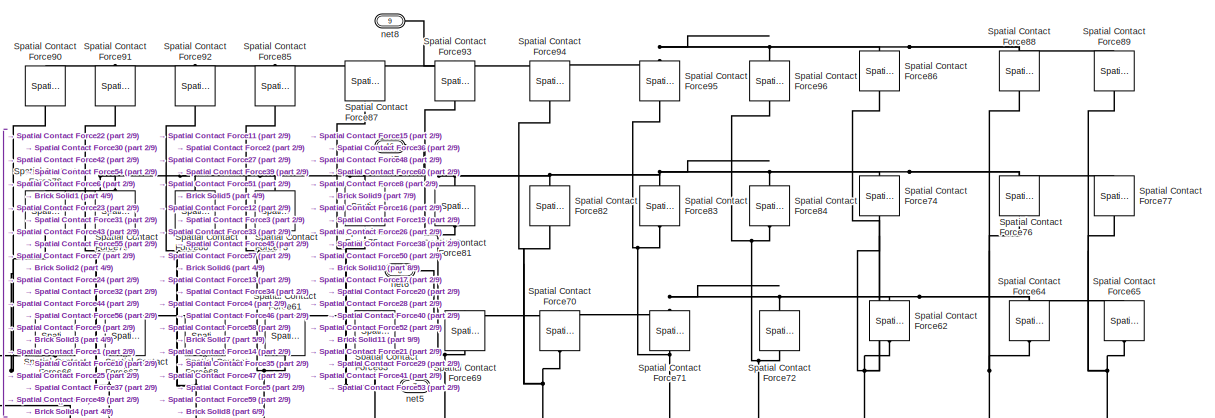
[diagram: Subsystem2/Subsystem3 - part 1/9, top center region]
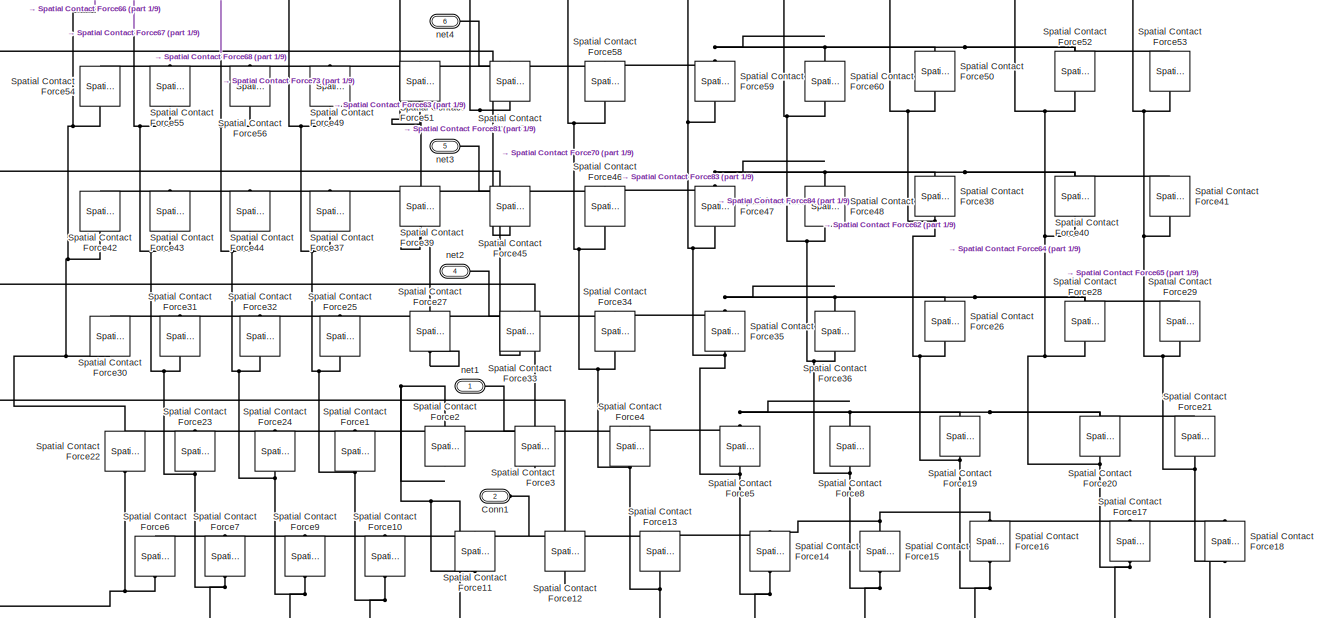
[diagram: Subsystem2/Subsystem3 - part 2/9, full width, top band]
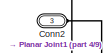
[diagram: Subsystem2/Subsystem3 - part 3/9, top left region]
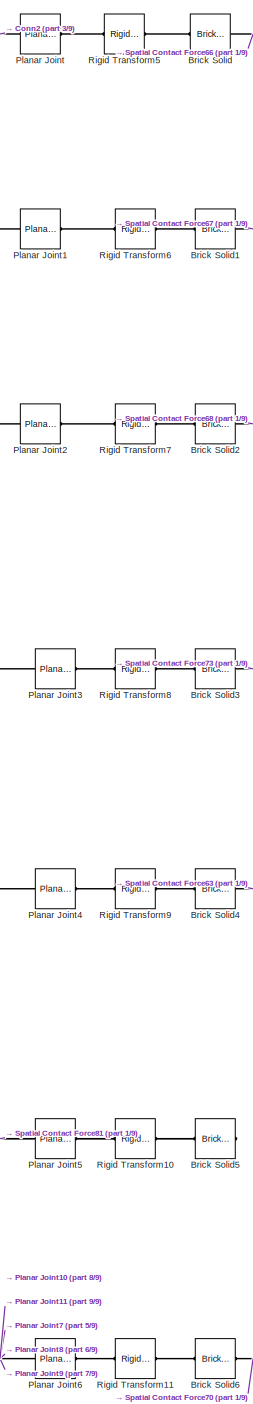
[diagram: Subsystem2/Subsystem3 - part 4/9, middle left region]
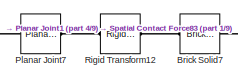
[diagram: Subsystem2/Subsystem3 - part 5/9, bottom left region]
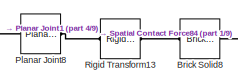
[diagram: Subsystem2/Subsystem3 - part 6/9, bottom left region]
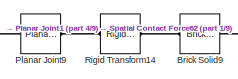
[diagram: Subsystem2/Subsystem3 - part 7/9, bottom left region]
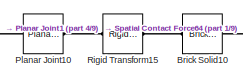
[diagram: Subsystem2/Subsystem3 - part 8/9, bottom left region]
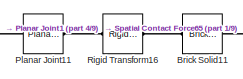
[diagram: Subsystem2/Subsystem3 - part 9/9, bottom left region]
BLOCK [SubSystem] Subsystem2/Subsystem3
  PortSchema = {"entries":[{"content":{"sides":[{"content":{"connectorIds":["LConn1","LConn2","LConn3","LConn4","LConn5","LConn6","LConn7","LConn8","LConn9"]},"type":"ConnectorPlacement.EquallySpacedRectSide","uuid":"de3d2728-d29b-44a4-b569-3307cb2726dd"},{"content":{"connectorIds":[],"side":"RIGHT"},"type":"ConnectorPlacement.EquallySpacedRectSide","uuid":"1645cdcd-6ef9-4c0f-9b16-ae73ff97e624"},{"content":{"con...<+318ch>
  Ports = [0, 0, 0, 0, 0, 10]
  RequestExecContextInheritance = off
BLOCK [Reference] Subsystem2/Subsystem3/Brick Solid  REF=sm_lib/Body Elements/Brick Solid
  Ports = [0, 0, 0, 0, 0, 1, 1]
  SourceBlock = sm_lib/Body Elements/Brick Solid
  SourceProductBaseCode = MS
  SourceType = Brick Solid
BLOCK [Reference] Subsystem2/Subsystem3/Brick Solid1  REF=sm_lib/Body Elements/Brick Solid
  Ports = [0, 0, 0, 0, 0, 1, 1]
  SourceBlock = sm_lib/Body Elements/Brick Solid
  SourceProductBaseCode = MS
  SourceType = Brick Solid
BLOCK [Reference] Subsystem2/Subsystem3/Brick Solid10  REF=sm_lib/Body Elements/Brick Solid
  Ports = [0, 0, 0, 0, 0, 1, 1]
  SourceBlock = sm_lib/Body Elements/Brick Solid
  SourceProductBaseCode = MS
  SourceType = Brick Solid
BLOCK [Reference] Subsystem2/Subsystem3/Brick Solid11  REF=sm_lib/Body Elements/Brick Solid
  Ports = [0, 0, 0, 0, 0, 1, 1]
  SourceBlock = sm_lib/Body Elements/Brick Solid
  SourceProductBaseCode = MS
  SourceType = Brick Solid
BLOCK [Reference] Subsystem2/Subsystem3/Brick Solid2  REF=sm_lib/Body Elements/Brick Solid
  Ports = [0, 0, 0, 0, 0, 1, 1]
  SourceBlock = sm_lib/Body Elements/Brick Solid
  SourceProductBaseCode = MS
  SourceType = Brick Solid
BLOCK [Reference] Subsystem2/Subsystem3/Brick Solid3  REF=sm_lib/Body Elements/Brick Solid
  Ports = [0, 0, 0, 0, 0, 1, 1]
  SourceBlock = sm_lib/Body Elements/Brick Solid
  SourceProductBaseCode = MS
  SourceType = Brick Solid
BLOCK [Reference] Subsystem2/Subsystem3/Brick Solid4  REF=sm_lib/Body Elements/Brick Solid
  Ports = [0, 0, 0, 0, 0, 1, 1]
  SourceBlock = sm_lib/Body Elements/Brick Solid
  SourceProductBaseCode = MS
  SourceType = Brick Solid
BLOCK [Reference] Subsystem2/Subsystem3/Brick Solid5  REF=sm_lib/Body Elements/Brick Solid
  Ports = [0, 0, 0, 0, 0, 1, 1]
  SourceBlock = sm_lib/Body Elements/Brick Solid
  SourceProductBaseCode = MS
  SourceType = Brick Solid
BLOCK [Reference] Subsystem2/Subsystem3/Brick Solid6  REF=sm_lib/Body Elements/Brick Solid
  Ports = [0, 0, 0, 0, 0, 1, 1]
  SourceBlock = sm_lib/Body Elements/Brick Solid
  SourceProductBaseCode = MS
  SourceType = Brick Solid
BLOCK [Reference] Subsystem2/Subsystem3/Brick Solid7  REF=sm_lib/Body Elements/Brick Solid
  Ports = [0, 0, 0, 0, 0, 1, 1]
  SourceBlock = sm_lib/Body Elements/Brick Solid
  SourceProductBaseCode = MS
  SourceType = Brick Solid
BLOCK [Reference] Subsystem2/Subsystem3/Brick Solid8  REF=sm_lib/Body Elements/Brick Solid
  Ports = [0, 0, 0, 0, 0, 1, 1]
  SourceBlock = sm_lib/Body Elements/Brick Solid
  SourceProductBaseCode = MS
  SourceType = Brick Solid
BLOCK [Reference] Subsystem2/Subsystem3/Brick Solid9  REF=sm_lib/Body Elements/Brick Solid
  Ports = [0, 0, 0, 0, 0, 1, 1]
  SourceBlock = sm_lib/Body Elements/Brick Solid
  SourceProductBaseCode = MS
  SourceType = Brick Solid
BLOCK [PMIOPort] Subsystem2/Subsystem3/Conn1
  Port = 2
  Side = Left
BLOCK [PMIOPort] Subsystem2/Subsystem3/Conn2
  Port = 3
  Side = Left
BLOCK [Reference] Subsystem2/Subsystem3/Planar Joint  REF=sm_lib/Joints/Planar Joint
  Ports = [0, 0, 0, 0, 0, 1, 1]
  SourceBlock = sm_lib/Joints/Planar Joint
  SourceProductBaseCode = MS
  SourceType = Planar Joint
BLOCK [Reference] Subsystem2/Subsystem3/Planar Joint1  REF=sm_lib/Joints/Planar Joint
  Ports = [0, 0, 0, 0, 0, 1, 1]
  SourceBlock = sm_lib/Joints/Planar Joint
  SourceProductBaseCode = MS
  SourceType = Planar Joint
BLOCK [Reference] Subsystem2/Subsystem3/Planar Joint10  REF=sm_lib/Joints/Planar Joint
  Ports = [0, 0, 0, 0, 0, 1, 1]
  SourceBlock = sm_lib/Joints/Planar Joint
  SourceProductBaseCode = MS
  SourceType = Planar Joint
BLOCK [Reference] Subsystem2/Subsystem3/Planar Joint11  REF=sm_lib/Joints/Planar Joint
  Ports = [0, 0, 0, 0, 0, 1, 1]
  SourceBlock = sm_lib/Joints/Planar Joint
  SourceProductBaseCode = MS
  SourceType = Planar Joint
BLOCK [Reference] Subsystem2/Subsystem3/Planar Joint2  REF=sm_lib/Joints/Planar Joint
  Ports = [0, 0, 0, 0, 0, 1, 1]
  SourceBlock = sm_lib/Joints/Planar Joint
  SourceProductBaseCode = MS
  SourceType = Planar Joint
BLOCK [Reference] Subsystem2/Subsystem3/Planar Joint3  REF=sm_lib/Joints/Planar Joint
  Ports = [0, 0, 0, 0, 0, 1, 1]
  SourceBlock = sm_lib/Joints/Planar Joint
  SourceProductBaseCode = MS
  SourceType = Planar Joint
BLOCK [Reference] Subsystem2/Subsystem3/Planar Joint4  REF=sm_lib/Joints/Planar Joint
  Ports = [0, 0, 0, 0, 0, 1, 1]
  SourceBlock = sm_lib/Joints/Planar Joint
  SourceProductBaseCode = MS
  SourceType = Planar Joint
BLOCK [Reference] Subsystem2/Subsystem3/Planar Joint5  REF=sm_lib/Joints/Planar Joint
  Ports = [0, 0, 0, 0, 0, 1, 1]
  SourceBlock = sm_lib/Joints/Planar Joint
  SourceProductBaseCode = MS
  SourceType = Planar Joint
BLOCK [Reference] Subsystem2/Subsystem3/Planar Joint6  REF=sm_lib/Joints/Planar Joint
  Ports = [0, 0, 0, 0, 0, 1, 1]
  SourceBlock = sm_lib/Joints/Planar Joint
  SourceProductBaseCode = MS
  SourceType = Planar Joint
BLOCK [Reference] Subsystem2/Subsystem3/Planar Joint7  REF=sm_lib/Joints/Planar Joint
  Ports = [0, 0, 0, 0, 0, 1, 1]
  SourceBlock = sm_lib/Joints/Planar Joint
  SourceProductBaseCode = MS
  SourceType = Planar Joint
BLOCK [Reference] Subsystem2/Subsystem3/Planar Joint8  REF=sm_lib/Joints/Planar Joint
  Ports = [0, 0, 0, 0, 0, 1, 1]
  SourceBlock = sm_lib/Joints/Planar Joint
  SourceProductBaseCode = MS
  SourceType = Planar Joint
BLOCK [Reference] Subsystem2/Subsystem3/Planar Joint9  REF=sm_lib/Joints/Planar Joint
  Ports = [0, 0, 0, 0, 0, 1, 1]
  SourceBlock = sm_lib/Joints/Planar Joint
  SourceProductBaseCode = MS
  SourceType = Planar Joint
BLOCK [Reference] Subsystem2/Subsystem3/Rigid Transform10  REF=sm_lib/Frames and
Transforms/Rigid
Transform
  Ports = [0, 0, 0, 0, 0, 1, 1]
  SourceBlock = sm_lib/Frames and\nTransforms/Rigid\nTransform
  SourceProductBaseCode = MS
  SourceType = Rigid\nTransform
BLOCK [Reference] Subsystem2/Subsystem3/Rigid Transform11  REF=sm_lib/Frames and
Transforms/Rigid
Transform
  Ports = [0, 0, 0, 0, 0, 1, 1]
  SourceBlock = sm_lib/Frames and\nTransforms/Rigid\nTransform
  SourceProductBaseCode = MS
  SourceType = Rigid\nTransform
BLOCK [Reference] Subsystem2/Subsystem3/Rigid Transform12  REF=sm_lib/Frames and
Transforms/Rigid
Transform
  Ports = [0, 0, 0, 0, 0, 1, 1]
  SourceBlock = sm_lib/Frames and\nTransforms/Rigid\nTransform
  SourceProductBaseCode = MS
  SourceType = Rigid\nTransform
BLOCK [Reference] Subsystem2/Subsystem3/Rigid Transform13  REF=sm_lib/Frames and
Transforms/Rigid
Transform
  Ports = [0, 0, 0, 0, 0, 1, 1]
  SourceBlock = sm_lib/Frames and\nTransforms/Rigid\nTransform
  SourceProductBaseCode = MS
  SourceType = Rigid\nTransform
BLOCK [Reference] Subsystem2/Subsystem3/Rigid Transform14  REF=sm_lib/Frames and
Transforms/Rigid
Transform
  Ports = [0, 0, 0, 0, 0, 1, 1]
  SourceBlock = sm_lib/Frames and\nTransforms/Rigid\nTransform
  SourceProductBaseCode = MS
  SourceType = Rigid\nTransform
BLOCK [Reference] Subsystem2/Subsystem3/Rigid Transform15  REF=sm_lib/Frames and
Transforms/Rigid
Transform
  Ports = [0, 0, 0, 0, 0, 1, 1]
  SourceBlock = sm_lib/Frames and\nTransforms/Rigid\nTransform
  SourceProductBaseCode = MS
  SourceType = Rigid\nTransform
BLOCK [Reference] Subsystem2/Subsystem3/Rigid Transform16  REF=sm_lib/Frames and
Transforms/Rigid
Transform
  Ports = [0, 0, 0, 0, 0, 1, 1]
  SourceBlock = sm_lib/Frames and\nTransforms/Rigid\nTransform
  SourceProductBaseCode = MS
  SourceType = Rigid\nTransform
BLOCK [Reference] Subsystem2/Subsystem3/Rigid Transform5  REF=sm_lib/Frames and
Transforms/Rigid
Transform
  Ports = [0, 0, 0, 0, 0, 1, 1]
  SourceBlock = sm_lib/Frames and\nTransforms/Rigid\nTransform
  SourceProductBaseCode = MS
  SourceType = Rigid\nTransform
BLOCK [Reference] Subsystem2/Subsystem3/Rigid Transform6  REF=sm_lib/Frames and
Transforms/Rigid
Transform
  Ports = [0, 0, 0, 0, 0, 1, 1]
  SourceBlock = sm_lib/Frames and\nTransforms/Rigid\nTransform
  SourceProductBaseCode = MS
  SourceType = Rigid\nTransform
BLOCK [Reference] Subsystem2/Subsystem3/Rigid Transform7  REF=sm_lib/Frames and
Transforms/Rigid
Transform
  Ports = [0, 0, 0, 0, 0, 1, 1]
  SourceBlock = sm_lib/Frames and\nTransforms/Rigid\nTransform
  SourceProductBaseCode = MS
  SourceType = Rigid\nTransform
BLOCK [Reference] Subsystem2/Subsystem3/Rigid Transform8  REF=sm_lib/Frames and
Transforms/Rigid
Transform
  Ports = [0, 0, 0, 0, 0, 1, 1]
  SourceBlock = sm_lib/Frames and\nTransforms/Rigid\nTransform
  SourceProductBaseCode = MS
  SourceType = Rigid\nTransform
BLOCK [Reference] Subsystem2/Subsystem3/Rigid Transform9  REF=sm_lib/Frames and
Transforms/Rigid
Transform
  Ports = [0, 0, 0, 0, 0, 1, 1]
  SourceBlock = sm_lib/Frames and\nTransforms/Rigid\nTransform
  SourceProductBaseCode = MS
  SourceType = Rigid\nTransform
BLOCK [Reference] Subsystem2/Subsystem3/Spatial Contact Force1  REF=sm_lib/Forces and
Torques/Spatial
Contact Force
  NameLocation = right
  Ports = [0, 0, 0, 0, 0, 1, 1]
  SourceBlock = sm_lib/Forces and\nTorques/Spatial\nContact Force
  SourceProductBaseCode = MS
  SourceType = Spatial\nContact Force
BLOCK [Reference] Subsystem2/Subsystem3/Spatial Contact Force10  REF=sm_lib/Forces and
Torques/Spatial
Contact Force
  NameLocation = right
  Ports = [0, 0, 0, 0, 0, 1, 1]
  SourceBlock = sm_lib/Forces and\nTorques/Spatial\nContact Force
  SourceProductBaseCode = MS
  SourceType = Spatial\nContact Force
BLOCK [Reference] Subsystem2/Subsystem3/Spatial Contact Force11  REF=sm_lib/Forces and
Torques/Spatial
Contact Force
  NameLocation = right
  Ports = [0, 0, 0, 0, 0, 1, 1]
  SourceBlock = sm_lib/Forces and\nTorques/Spatial\nContact Force
  SourceProductBaseCode = MS
  SourceType = Spatial\nContact Force
BLOCK [Reference] Subsystem2/Subsystem3/Spatial Contact Force12  REF=sm_lib/Forces and
Torques/Spatial
Contact Force
  NameLocation = right
  Ports = [0, 0, 0, 0, 0, 1, 1]
  SourceBlock = sm_lib/Forces and\nTorques/Spatial\nContact Force
  SourceProductBaseCode = MS
  SourceType = Spatial\nContact Force
BLOCK [Reference] Subsystem2/Subsystem3/Spatial Contact Force13  REF=sm_lib/Forces and
Torques/Spatial
Contact Force
  NameLocation = right
  Ports = [0, 0, 0, 0, 0, 1, 1]
  SourceBlock = sm_lib/Forces and\nTorques/Spatial\nContact Force
  SourceProductBaseCode = MS
  SourceType = Spatial\nContact Force
BLOCK [Reference] Subsystem2/Subsystem3/Spatial Contact Force14  REF=sm_lib/Forces and
Torques/Spatial
Contact Force
  NameLocation = right
  Ports = [0, 0, 0, 0, 0, 1, 1]
  SourceBlock = sm_lib/Forces and\nTorques/Spatial\nContact Force
  SourceProductBaseCode = MS
  SourceType = Spatial\nContact Force
BLOCK [Reference] Subsystem2/Subsystem3/Spatial Contact Force15  REF=sm_lib/Forces and
Torques/Spatial
Contact Force
  NameLocation = right
  Ports = [0, 0, 0, 0, 0, 1, 1]
  SourceBlock = sm_lib/Forces and\nTorques/Spatial\nContact Force
  SourceProductBaseCode = MS
  SourceType = Spatial\nContact Force
BLOCK [Reference] Subsystem2/Subsystem3/Spatial Contact Force16  REF=sm_lib/Forces and
Torques/Spatial
Contact Force
  NameLocation = right
  Ports = [0, 0, 0, 0, 0, 1, 1]
  SourceBlock = sm_lib/Forces and\nTorques/Spatial\nContact Force
  SourceProductBaseCode = MS
  SourceType = Spatial\nContact Force
BLOCK [Reference] Subsystem2/Subsystem3/Spatial Contact Force17  REF=sm_lib/Forces and
Torques/Spatial
Contact Force
  NameLocation = right
  Ports = [0, 0, 0, 0, 0, 1, 1]
  SourceBlock = sm_lib/Forces and\nTorques/Spatial\nContact Force
  SourceProductBaseCode = MS
  SourceType = Spatial\nContact Force
BLOCK [Reference] Subsystem2/Subsystem3/Spatial Contact Force18  REF=sm_lib/Forces and
Torques/Spatial
Contact Force
  NameLocation = right
  Ports = [0, 0, 0, 0, 0, 1, 1]
  SourceBlock = sm_lib/Forces and\nTorques/Spatial\nContact Force
  SourceProductBaseCode = MS
  SourceType = Spatial\nContact Force
BLOCK [Reference] Subsystem2/Subsystem3/Spatial Contact Force19  REF=sm_lib/Forces and
Torques/Spatial
Contact Force
  NameLocation = right
  Ports = [0, 0, 0, 0, 0, 1, 1]
  SourceBlock = sm_lib/Forces and\nTorques/Spatial\nContact Force
  SourceProductBaseCode = MS
  SourceType = Spatial\nContact Force
BLOCK [Reference] Subsystem2/Subsystem3/Spatial Contact Force2  REF=sm_lib/Forces and
Torques/Spatial
Contact Force
  NameLocation = right
  Ports = [0, 0, 0, 0, 0, 1, 1]
  SourceBlock = sm_lib/Forces and\nTorques/Spatial\nContact Force
  SourceProductBaseCode = MS
  SourceType = Spatial\nContact Force
BLOCK [Reference] Subsystem2/Subsystem3/Spatial Contact Force20  REF=sm_lib/Forces and
Torques/Spatial
Contact Force
  NameLocation = right
  Ports = [0, 0, 0, 0, 0, 1, 1]
  SourceBlock = sm_lib/Forces and\nTorques/Spatial\nContact Force
  SourceProductBaseCode = MS
  SourceType = Spatial\nContact Force
BLOCK [Reference] Subsystem2/Subsystem3/Spatial Contact Force21  REF=sm_lib/Forces and
Torques/Spatial
Contact Force
  NameLocation = right
  Ports = [0, 0, 0, 0, 0, 1, 1]
  SourceBlock = sm_lib/Forces and\nTorques/Spatial\nContact Force
  SourceProductBaseCode = MS
  SourceType = Spatial\nContact Force
BLOCK [Reference] Subsystem2/Subsystem3/Spatial Contact Force22  REF=sm_lib/Forces and
Torques/Spatial
Contact Force
  NameLocation = right
  Ports = [0, 0, 0, 0, 0, 1, 1]
  SourceBlock = sm_lib/Forces and\nTorques/Spatial\nContact Force
  SourceProductBaseCode = MS
  SourceType = Spatial\nContact Force
BLOCK [Reference] Subsystem2/Subsystem3/Spatial Contact Force23  REF=sm_lib/Forces and
Torques/Spatial
Contact Force
  NameLocation = right
  Ports = [0, 0, 0, 0, 0, 1, 1]
  SourceBlock = sm_lib/Forces and\nTorques/Spatial\nContact Force
  SourceProductBaseCode = MS
  SourceType = Spatial\nContact Force
BLOCK [Reference] Subsystem2/Subsystem3/Spatial Contact Force24  REF=sm_lib/Forces and
Torques/Spatial
Contact Force
  NameLocation = right
  Ports = [0, 0, 0, 0, 0, 1, 1]
  SourceBlock = sm_lib/Forces and\nTorques/Spatial\nContact Force
  SourceProductBaseCode = MS
  SourceType = Spatial\nContact Force
BLOCK [Reference] Subsystem2/Subsystem3/Spatial Contact Force25  REF=sm_lib/Forces and
Torques/Spatial
Contact Force
  NameLocation = right
  Ports = [0, 0, 0, 0, 0, 1, 1]
  SourceBlock = sm_lib/Forces and\nTorques/Spatial\nContact Force
  SourceProductBaseCode = MS
  SourceType = Spatial\nContact Force
BLOCK [Reference] Subsystem2/Subsystem3/Spatial Contact Force26  REF=sm_lib/Forces and
Torques/Spatial
Contact Force
  NameLocation = right
  Ports = [0, 0, 0, 0, 0, 1, 1]
  SourceBlock = sm_lib/Forces and\nTorques/Spatial\nContact Force
  SourceProductBaseCode = MS
  SourceType = Spatial\nContact Force
BLOCK [Reference] Subsystem2/Subsystem3/Spatial Contact Force27  REF=sm_lib/Forces and
Torques/Spatial
Contact Force
  NameLocation = right
  Ports = [0, 0, 0, 0, 0, 1, 1]
  SourceBlock = sm_lib/Forces and\nTorques/Spatial\nContact Force
  SourceProductBaseCode = MS
  SourceType = Spatial\nContact Force
BLOCK [Reference] Subsystem2/Subsystem3/Spatial Contact Force28  REF=sm_lib/Forces and
Torques/Spatial
Contact Force
  NameLocation = right
  Ports = [0, 0, 0, 0, 0, 1, 1]
  SourceBlock = sm_lib/Forces and\nTorques/Spatial\nContact Force
  SourceProductBaseCode = MS
  SourceType = Spatial\nContact Force
BLOCK [Reference] Subsystem2/Subsystem3/Spatial Contact Force29  REF=sm_lib/Forces and
Torques/Spatial
Contact Force
  NameLocation = right
  Ports = [0, 0, 0, 0, 0, 1, 1]
  SourceBlock = sm_lib/Forces and\nTorques/Spatial\nContact Force
  SourceProductBaseCode = MS
  SourceType = Spatial\nContact Force
BLOCK [Reference] Subsystem2/Subsystem3/Spatial Contact Force3  REF=sm_lib/Forces and
Torques/Spatial
Contact Force
  NameLocation = right
  Ports = [0, 0, 0, 0, 0, 1, 1]
  SourceBlock = sm_lib/Forces and\nTorques/Spatial\nContact Force
  SourceProductBaseCode = MS
  SourceType = Spatial\nContact Force
BLOCK [Reference] Subsystem2/Subsystem3/Spatial Contact Force30  REF=sm_lib/Forces and
Torques/Spatial
Contact Force
  NameLocation = right
  Ports = [0, 0, 0, 0, 0, 1, 1]
  SourceBlock = sm_lib/Forces and\nTorques/Spatial\nContact Force
  SourceProductBaseCode = MS
  SourceType = Spatial\nContact Force
BLOCK [Reference] Subsystem2/Subsystem3/Spatial Contact Force31  REF=sm_lib/Forces and
Torques/Spatial
Contact Force
  NameLocation = right
  Ports = [0, 0, 0, 0, 0, 1, 1]
  SourceBlock = sm_lib/Forces and\nTorques/Spatial\nContact Force
  SourceProductBaseCode = MS
  SourceType = Spatial\nContact Force
BLOCK [Reference] Subsystem2/Subsystem3/Spatial Contact Force32  REF=sm_lib/Forces and
Torques/Spatial
Contact Force
  NameLocation = right
  Ports = [0, 0, 0, 0, 0, 1, 1]
  SourceBlock = sm_lib/Forces and\nTorques/Spatial\nContact Force
  SourceProductBaseCode = MS
  SourceType = Spatial\nContact Force
BLOCK [Reference] Subsystem2/Subsystem3/Spatial Contact Force33  REF=sm_lib/Forces and
Torques/Spatial
Contact Force
  NameLocation = right
  Ports = [0, 0, 0, 0, 0, 1, 1]
  SourceBlock = sm_lib/Forces and\nTorques/Spatial\nContact Force
  SourceProductBaseCode = MS
  SourceType = Spatial\nContact Force
BLOCK [Reference] Subsystem2/Subsystem3/Spatial Contact Force34  REF=sm_lib/Forces and
Torques/Spatial
Contact Force
  NameLocation = right
  Ports = [0, 0, 0, 0, 0, 1, 1]
  SourceBlock = sm_lib/Forces and\nTorques/Spatial\nContact Force
  SourceProductBaseCode = MS
  SourceType = Spatial\nContact Force
BLOCK [Reference] Subsystem2/Subsystem3/Spatial Contact Force35  REF=sm_lib/Forces and
Torques/Spatial
Contact Force
  NameLocation = right
  Ports = [0, 0, 0, 0, 0, 1, 1]
  SourceBlock = sm_lib/Forces and\nTorques/Spatial\nContact Force
  SourceProductBaseCode = MS
  SourceType = Spatial\nContact Force
BLOCK [Reference] Subsystem2/Subsystem3/Spatial Contact Force36  REF=sm_lib/Forces and
Torques/Spatial
Contact Force
  NameLocation = right
  Ports = [0, 0, 0, 0, 0, 1, 1]
  SourceBlock = sm_lib/Forces and\nTorques/Spatial\nContact Force
  SourceProductBaseCode = MS
  SourceType = Spatial\nContact Force
BLOCK [Reference] Subsystem2/Subsystem3/Spatial Contact Force37  REF=sm_lib/Forces and
Torques/Spatial
Contact Force
  NameLocation = right
  Ports = [0, 0, 0, 0, 0, 1, 1]
  SourceBlock = sm_lib/Forces and\nTorques/Spatial\nContact Force
  SourceProductBaseCode = MS
  SourceType = Spatial\nContact Force
BLOCK [Reference] Subsystem2/Subsystem3/Spatial Contact Force38  REF=sm_lib/Forces and
Torques/Spatial
Contact Force
  NameLocation = right
  Ports = [0, 0, 0, 0, 0, 1, 1]
  SourceBlock = sm_lib/Forces and\nTorques/Spatial\nContact Force
  SourceProductBaseCode = MS
  SourceType = Spatial\nContact Force
BLOCK [Reference] Subsystem2/Subsystem3/Spatial Contact Force39  REF=sm_lib/Forces and
Torques/Spatial
Contact Force
  NameLocation = right
  Ports = [0, 0, 0, 0, 0, 1, 1]
  SourceBlock = sm_lib/Forces and\nTorques/Spatial\nContact Force
  SourceProductBaseCode = MS
  SourceType = Spatial\nContact Force
BLOCK [Reference] Subsystem2/Subsystem3/Spatial Contact Force4  REF=sm_lib/Forces and
Torques/Spatial
Contact Force
  NameLocation = right
  Ports = [0, 0, 0, 0, 0, 1, 1]
  SourceBlock = sm_lib/Forces and\nTorques/Spatial\nContact Force
  SourceProductBaseCode = MS
  SourceType = Spatial\nContact Force
BLOCK [Reference] Subsystem2/Subsystem3/Spatial Contact Force40  REF=sm_lib/Forces and
Torques/Spatial
Contact Force
  NameLocation = right
  Ports = [0, 0, 0, 0, 0, 1, 1]
  SourceBlock = sm_lib/Forces and\nTorques/Spatial\nContact Force
  SourceProductBaseCode = MS
  SourceType = Spatial\nContact Force
BLOCK [Reference] Subsystem2/Subsystem3/Spatial Contact Force41  REF=sm_lib/Forces and
Torques/Spatial
Contact Force
  NameLocation = right
  Ports = [0, 0, 0, 0, 0, 1, 1]
  SourceBlock = sm_lib/Forces and\nTorques/Spatial\nContact Force
  SourceProductBaseCode = MS
  SourceType = Spatial\nContact Force
BLOCK [Reference] Subsystem2/Subsystem3/Spatial Contact Force42  REF=sm_lib/Forces and
Torques/Spatial
Contact Force
  NameLocation = right
  Ports = [0, 0, 0, 0, 0, 1, 1]
  SourceBlock = sm_lib/Forces and\nTorques/Spatial\nContact Force
  SourceProductBaseCode = MS
  SourceType = Spatial\nContact Force
BLOCK [Reference] Subsystem2/Subsystem3/Spatial Contact Force43  REF=sm_lib/Forces and
Torques/Spatial
Contact Force
  NameLocation = right
  Ports = [0, 0, 0, 0, 0, 1, 1]
  SourceBlock = sm_lib/Forces and\nTorques/Spatial\nContact Force
  SourceProductBaseCode = MS
  SourceType = Spatial\nContact Force
BLOCK [Reference] Subsystem2/Subsystem3/Spatial Contact Force44  REF=sm_lib/Forces and
Torques/Spatial
Contact Force
  NameLocation = right
  Ports = [0, 0, 0, 0, 0, 1, 1]
  SourceBlock = sm_lib/Forces and\nTorques/Spatial\nContact Force
  SourceProductBaseCode = MS
  SourceType = Spatial\nContact Force
BLOCK [Reference] Subsystem2/Subsystem3/Spatial Contact Force45  REF=sm_lib/Forces and
Torques/Spatial
Contact Force
  NameLocation = right
  Ports = [0, 0, 0, 0, 0, 1, 1]
  SourceBlock = sm_lib/Forces and\nTorques/Spatial\nContact Force
  SourceProductBaseCode = MS
  SourceType = Spatial\nContact Force
BLOCK [Reference] Subsystem2/Subsystem3/Spatial Contact Force46  REF=sm_lib/Forces and
Torques/Spatial
Contact Force
  NameLocation = right
  Ports = [0, 0, 0, 0, 0, 1, 1]
  SourceBlock = sm_lib/Forces and\nTorques/Spatial\nContact Force
  SourceProductBaseCode = MS
  SourceType = Spatial\nContact Force
BLOCK [Reference] Subsystem2/Subsystem3/Spatial Contact Force47  REF=sm_lib/Forces and
Torques/Spatial
Contact Force
  NameLocation = right
  Ports = [0, 0, 0, 0, 0, 1, 1]
  SourceBlock = sm_lib/Forces and\nTorques/Spatial\nContact Force
  SourceProductBaseCode = MS
  SourceType = Spatial\nContact Force
BLOCK [Reference] Subsystem2/Subsystem3/Spatial Contact Force48  REF=sm_lib/Forces and
Torques/Spatial
Contact Force
  NameLocation = right
  Ports = [0, 0, 0, 0, 0, 1, 1]
  SourceBlock = sm_lib/Forces and\nTorques/Spatial\nContact Force
  SourceProductBaseCode = MS
  SourceType = Spatial\nContact Force
BLOCK [Reference] Subsystem2/Subsystem3/Spatial Contact Force49  REF=sm_lib/Forces and
Torques/Spatial
Contact Force
  NameLocation = right
  Ports = [0, 0, 0, 0, 0, 1, 1]
  SourceBlock = sm_lib/Forces and\nTorques/Spatial\nContact Force
  SourceProductBaseCode = MS
  SourceType = Spatial\nContact Force
BLOCK [Reference] Subsystem2/Subsystem3/Spatial Contact Force5  REF=sm_lib/Forces and
Torques/Spatial
Contact Force
  NameLocation = right
  Ports = [0, 0, 0, 0, 0, 1, 1]
  SourceBlock = sm_lib/Forces and\nTorques/Spatial\nContact Force
  SourceProductBaseCode = MS
  SourceType = Spatial\nContact Force
BLOCK [Reference] Subsystem2/Subsystem3/Spatial Contact Force50  REF=sm_lib/Forces and
Torques/Spatial
Contact Force
  NameLocation = right
  Ports = [0, 0, 0, 0, 0, 1, 1]
  SourceBlock = sm_lib/Forces and\nTorques/Spatial\nContact Force
  SourceProductBaseCode = MS
  SourceType = Spatial\nContact Force
BLOCK [Reference] Subsystem2/Subsystem3/Spatial Contact Force51  REF=sm_lib/Forces and
Torques/Spatial
Contact Force
  NameLocation = right
  Ports = [0, 0, 0, 0, 0, 1, 1]
  SourceBlock = sm_lib/Forces and\nTorques/Spatial\nContact Force
  SourceProductBaseCode = MS
  SourceType = Spatial\nContact Force
BLOCK [Reference] Subsystem2/Subsystem3/Spatial Contact Force52  REF=sm_lib/Forces and
Torques/Spatial
Contact Force
  NameLocation = right
  Ports = [0, 0, 0, 0, 0, 1, 1]
  SourceBlock = sm_lib/Forces and\nTorques/Spatial\nContact Force
  SourceProductBaseCode = MS
  SourceType = Spatial\nContact Force
BLOCK [Reference] Subsystem2/Subsystem3/Spatial Contact Force53  REF=sm_lib/Forces and
Torques/Spatial
Contact Force
  NameLocation = right
  Ports = [0, 0, 0, 0, 0, 1, 1]
  SourceBlock = sm_lib/Forces and\nTorques/Spatial\nContact Force
  SourceProductBaseCode = MS
  SourceType = Spatial\nContact Force
BLOCK [Reference] Subsystem2/Subsystem3/Spatial Contact Force54  REF=sm_lib/Forces and
Torques/Spatial
Contact Force
  NameLocation = right
  Ports = [0, 0, 0, 0, 0, 1, 1]
  SourceBlock = sm_lib/Forces and\nTorques/Spatial\nContact Force
  SourceProductBaseCode = MS
  SourceType = Spatial\nContact Force
BLOCK [Reference] Subsystem2/Subsystem3/Spatial Contact Force55  REF=sm_lib/Forces and
Torques/Spatial
Contact Force
  NameLocation = right
  Ports = [0, 0, 0, 0, 0, 1, 1]
  SourceBlock = sm_lib/Forces and\nTorques/Spatial\nContact Force
  SourceProductBaseCode = MS
  SourceType = Spatial\nContact Force
BLOCK [Reference] Subsystem2/Subsystem3/Spatial Contact Force56  REF=sm_lib/Forces and
Torques/Spatial
Contact Force
  NameLocation = right
  Ports = [0, 0, 0, 0, 0, 1, 1]
  SourceBlock = sm_lib/Forces and\nTorques/Spatial\nContact Force
  SourceProductBaseCode = MS
  SourceType = Spatial\nContact Force
BLOCK [Reference] Subsystem2/Subsystem3/Spatial Contact Force57  REF=sm_lib/Forces and
Torques/Spatial
Contact Force
  NameLocation = right
  Ports = [0, 0, 0, 0, 0, 1, 1]
  SourceBlock = sm_lib/Forces and\nTorques/Spatial\nContact Force
  SourceProductBaseCode = MS
  SourceType = Spatial\nContact Force
BLOCK [Reference] Subsystem2/Subsystem3/Spatial Contact Force58  REF=sm_lib/Forces and
Torques/Spatial
Contact Force
  NameLocation = right
  Ports = [0, 0, 0, 0, 0, 1, 1]
  SourceBlock = sm_lib/Forces and\nTorques/Spatial\nContact Force
  SourceProductBaseCode = MS
  SourceType = Spatial\nContact Force
BLOCK [Reference] Subsystem2/Subsystem3/Spatial Contact Force59  REF=sm_lib/Forces and
Torques/Spatial
Contact Force
  NameLocation = right
  Ports = [0, 0, 0, 0, 0, 1, 1]
  SourceBlock = sm_lib/Forces and\nTorques/Spatial\nContact Force
  SourceProductBaseCode = MS
  SourceType = Spatial\nContact Force
BLOCK [Reference] Subsystem2/Subsystem3/Spatial Contact Force6  REF=sm_lib/Forces and
Torques/Spatial
Contact Force
  NameLocation = right
  Ports = [0, 0, 0, 0, 0, 1, 1]
  SourceBlock = sm_lib/Forces and\nTorques/Spatial\nContact Force
  SourceProductBaseCode = MS
  SourceType = Spatial\nContact Force
BLOCK [Reference] Subsystem2/Subsystem3/Spatial Contact Force60  REF=sm_lib/Forces and
Torques/Spatial
Contact Force
  NameLocation = right
  Ports = [0, 0, 0, 0, 0, 1, 1]
  SourceBlock = sm_lib/Forces and\nTorques/Spatial\nContact Force
  SourceProductBaseCode = MS
  SourceType = Spatial\nContact Force
BLOCK [Reference] Subsystem2/Subsystem3/Spatial Contact Force61  REF=sm_lib/Forces and
Torques/Spatial
Contact Force
  NameLocation = right
  Ports = [0, 0, 0, 0, 0, 1, 1]
  SourceBlock = sm_lib/Forces and\nTorques/Spatial\nContact Force
  SourceProductBaseCode = MS
  SourceType = Spatial\nContact Force
BLOCK [Reference] Subsystem2/Subsystem3/Spatial Contact Force62  REF=sm_lib/Forces and
Torques/Spatial
Contact Force
  NameLocation = right
  Ports = [0, 0, 0, 0, 0, 1, 1]
  SourceBlock = sm_lib/Forces and\nTorques/Spatial\nContact Force
  SourceProductBaseCode = MS
  SourceType = Spatial\nContact Force
BLOCK [Reference] Subsystem2/Subsystem3/Spatial Contact Force63  REF=sm_lib/Forces and
Torques/Spatial
Contact Force
  NameLocation = right
  Ports = [0, 0, 0, 0, 0, 1, 1]
  SourceBlock = sm_lib/Forces and\nTorques/Spatial\nContact Force
  SourceProductBaseCode = MS
  SourceType = Spatial\nContact Force
BLOCK [Reference] Subsystem2/Subsystem3/Spatial Contact Force64  REF=sm_lib/Forces and
Torques/Spatial
Contact Force
  NameLocation = right
  Ports = [0, 0, 0, 0, 0, 1, 1]
  SourceBlock = sm_lib/Forces and\nTorques/Spatial\nContact Force
  SourceProductBaseCode = MS
  SourceType = Spatial\nContact Force
BLOCK [Reference] Subsystem2/Subsystem3/Spatial Contact Force65  REF=sm_lib/Forces and
Torques/Spatial
Contact Force
  NameLocation = right
  Ports = [0, 0, 0, 0, 0, 1, 1]
  SourceBlock = sm_lib/Forces and\nTorques/Spatial\nContact Force
  SourceProductBaseCode = MS
  SourceType = Spatial\nContact Force
BLOCK [Reference] Subsystem2/Subsystem3/Spatial Contact Force66  REF=sm_lib/Forces and
Torques/Spatial
Contact Force
  NameLocation = right
  Ports = [0, 0, 0, 0, 0, 1, 1]
  SourceBlock = sm_lib/Forces and\nTorques/Spatial\nContact Force
  SourceProductBaseCode = MS
  SourceType = Spatial\nContact Force
BLOCK [Reference] Subsystem2/Subsystem3/Spatial Contact Force67  REF=sm_lib/Forces and
Torques/Spatial
Contact Force
  NameLocation = right
  Ports = [0, 0, 0, 0, 0, 1, 1]
  SourceBlock = sm_lib/Forces and\nTorques/Spatial\nContact Force
  SourceProductBaseCode = MS
  SourceType = Spatial\nContact Force
BLOCK [Reference] Subsystem2/Subsystem3/Spatial Contact Force68  REF=sm_lib/Forces and
Torques/Spatial
Contact Force
  NameLocation = right
  Ports = [0, 0, 0, 0, 0, 1, 1]
  SourceBlock = sm_lib/Forces and\nTorques/Spatial\nContact Force
  SourceProductBaseCode = MS
  SourceType = Spatial\nContact Force
BLOCK [Reference] Subsystem2/Subsystem3/Spatial Contact Force69  REF=sm_lib/Forces and
Torques/Spatial
Contact Force
  NameLocation = right
  Ports = [0, 0, 0, 0, 0, 1, 1]
  SourceBlock = sm_lib/Forces and\nTorques/Spatial\nContact Force
  SourceProductBaseCode = MS
  SourceType = Spatial\nContact Force
BLOCK [Reference] Subsystem2/Subsystem3/Spatial Contact Force7  REF=sm_lib/Forces and
Torques/Spatial
Contact Force
  NameLocation = right
  Ports = [0, 0, 0, 0, 0, 1, 1]
  SourceBlock = sm_lib/Forces and\nTorques/Spatial\nContact Force
  SourceProductBaseCode = MS
  SourceType = Spatial\nContact Force
BLOCK [Reference] Subsystem2/Subsystem3/Spatial Contact Force70  REF=sm_lib/Forces and
Torques/Spatial
Contact Force
  NameLocation = right
  Ports = [0, 0, 0, 0, 0, 1, 1]
  SourceBlock = sm_lib/Forces and\nTorques/Spatial\nContact Force
  SourceProductBaseCode = MS
  SourceType = Spatial\nContact Force
BLOCK [Reference] Subsystem2/Subsystem3/Spatial Contact Force71  REF=sm_lib/Forces and
Torques/Spatial
Contact Force
  NameLocation = right
  Ports = [0, 0, 0, 0, 0, 1, 1]
  SourceBlock = sm_lib/Forces and\nTorques/Spatial\nContact Force
  SourceProductBaseCode = MS
  SourceType = Spatial\nContact Force
BLOCK [Reference] Subsystem2/Subsystem3/Spatial Contact Force72  REF=sm_lib/Forces and
Torques/Spatial
Contact Force
  NameLocation = right
  Ports = [0, 0, 0, 0, 0, 1, 1]
  SourceBlock = sm_lib/Forces and\nTorques/Spatial\nContact Force
  SourceProductBaseCode = MS
  SourceType = Spatial\nContact Force
BLOCK [Reference] Subsystem2/Subsystem3/Spatial Contact Force73  REF=sm_lib/Forces and
Torques/Spatial
Contact Force
  NameLocation = right
  Ports = [0, 0, 0, 0, 0, 1, 1]
  SourceBlock = sm_lib/Forces and\nTorques/Spatial\nContact Force
  SourceProductBaseCode = MS
  SourceType = Spatial\nContact Force
BLOCK [Reference] Subsystem2/Subsystem3/Spatial Contact Force74  REF=sm_lib/Forces and
Torques/Spatial
Contact Force
  NameLocation = right
  Ports = [0, 0, 0, 0, 0, 1, 1]
  SourceBlock = sm_lib/Forces and\nTorques/Spatial\nContact Force
  SourceProductBaseCode = MS
  SourceType = Spatial\nContact Force
BLOCK [Reference] Subsystem2/Subsystem3/Spatial Contact Force75  REF=sm_lib/Forces and
Torques/Spatial
Contact Force
  NameLocation = right
  Ports = [0, 0, 0, 0, 0, 1, 1]
  SourceBlock = sm_lib/Forces and\nTorques/Spatial\nContact Force
  SourceProductBaseCode = MS
  SourceType = Spatial\nContact Force
BLOCK [Reference] Subsystem2/Subsystem3/Spatial Contact Force76  REF=sm_lib/Forces and
Torques/Spatial
Contact Force
  NameLocation = right
  Ports = [0, 0, 0, 0, 0, 1, 1]
  SourceBlock = sm_lib/Forces and\nTorques/Spatial\nContact Force
  SourceProductBaseCode = MS
  SourceType = Spatial\nContact Force
BLOCK [Reference] Subsystem2/Subsystem3/Spatial Contact Force77  REF=sm_lib/Forces and
Torques/Spatial
Contact Force
  NameLocation = right
  Ports = [0, 0, 0, 0, 0, 1, 1]
  SourceBlock = sm_lib/Forces and\nTorques/Spatial\nContact Force
  SourceProductBaseCode = MS
  SourceType = Spatial\nContact Force
BLOCK [Reference] Subsystem2/Subsystem3/Spatial Contact Force78  REF=sm_lib/Forces and
Torques/Spatial
Contact Force
  NameLocation = right
  Ports = [0, 0, 0, 0, 0, 1, 1]
  SourceBlock = sm_lib/Forces and\nTorques/Spatial\nContact Force
  SourceProductBaseCode = MS
  SourceType = Spatial\nContact Force
BLOCK [Reference] Subsystem2/Subsystem3/Spatial Contact Force79  REF=sm_lib/Forces and
Torques/Spatial
Contact Force
  NameLocation = right
  Ports = [0, 0, 0, 0, 0, 1, 1]
  SourceBlock = sm_lib/Forces and\nTorques/Spatial\nContact Force
  SourceProductBaseCode = MS
  SourceType = Spatial\nContact Force
BLOCK [Reference] Subsystem2/Subsystem3/Spatial Contact Force8  REF=sm_lib/Forces and
Torques/Spatial
Contact Force
  NameLocation = right
  Ports = [0, 0, 0, 0, 0, 1, 1]
  SourceBlock = sm_lib/Forces and\nTorques/Spatial\nContact Force
  SourceProductBaseCode = MS
  SourceType = Spatial\nContact Force
BLOCK [Reference] Subsystem2/Subsystem3/Spatial Contact Force80  REF=sm_lib/Forces and
Torques/Spatial
Contact Force
  NameLocation = right
  Ports = [0, 0, 0, 0, 0, 1, 1]
  SourceBlock = sm_lib/Forces and\nTorques/Spatial\nContact Force
  SourceProductBaseCode = MS
  SourceType = Spatial\nContact Force
BLOCK [Reference] Subsystem2/Subsystem3/Spatial Contact Force81  REF=sm_lib/Forces and
Torques/Spatial
Contact Force
  NameLocation = right
  Ports = [0, 0, 0, 0, 0, 1, 1]
  SourceBlock = sm_lib/Forces and\nTorques/Spatial\nContact Force
  SourceProductBaseCode = MS
  SourceType = Spatial\nContact Force
BLOCK [Reference] Subsystem2/Subsystem3/Spatial Contact Force82  REF=sm_lib/Forces and
Torques/Spatial
Contact Force
  NameLocation = right
  Ports = [0, 0, 0, 0, 0, 1, 1]
  SourceBlock = sm_lib/Forces and\nTorques/Spatial\nContact Force
  SourceProductBaseCode = MS
  SourceType = Spatial\nContact Force
BLOCK [Reference] Subsystem2/Subsystem3/Spatial Contact Force83  REF=sm_lib/Forces and
Torques/Spatial
Contact Force
  NameLocation = right
  Ports = [0, 0, 0, 0, 0, 1, 1]
  SourceBlock = sm_lib/Forces and\nTorques/Spatial\nContact Force
  SourceProductBaseCode = MS
  SourceType = Spatial\nContact Force
BLOCK [Reference] Subsystem2/Subsystem3/Spatial Contact Force84  REF=sm_lib/Forces and
Torques/Spatial
Contact Force
  NameLocation = right
  Ports = [0, 0, 0, 0, 0, 1, 1]
  SourceBlock = sm_lib/Forces and\nTorques/Spatial\nContact Force
  SourceProductBaseCode = MS
  SourceType = Spatial\nContact Force
BLOCK [Reference] Subsystem2/Subsystem3/Spatial Contact Force85  REF=sm_lib/Forces and
Torques/Spatial
Contact Force
  Commented = on
  NameLocation = right
  Ports = [0, 0, 0, 0, 0, 1, 1]
  SourceBlock = sm_lib/Forces and\nTorques/Spatial\nContact Force
  SourceProductBaseCode = MS
  SourceType = Spatial\nContact Force
BLOCK [Reference] Subsystem2/Subsystem3/Spatial Contact Force86  REF=sm_lib/Forces and
Torques/Spatial
Contact Force
  Commented = on
  NameLocation = right
  Ports = [0, 0, 0, 0, 0, 1, 1]
  SourceBlock = sm_lib/Forces and\nTorques/Spatial\nContact Force
  SourceProductBaseCode = MS
  SourceType = Spatial\nContact Force
BLOCK [Reference] Subsystem2/Subsystem3/Spatial Contact Force87  REF=sm_lib/Forces and
Torques/Spatial
Contact Force
  Commented = on
  NameLocation = right
  Ports = [0, 0, 0, 0, 0, 1, 1]
  SourceBlock = sm_lib/Forces and\nTorques/Spatial\nContact Force
  SourceProductBaseCode = MS
  SourceType = Spatial\nContact Force
BLOCK [Reference] Subsystem2/Subsystem3/Spatial Contact Force88  REF=sm_lib/Forces and
Torques/Spatial
Contact Force
  Commented = on
  NameLocation = right
  Ports = [0, 0, 0, 0, 0, 1, 1]
  SourceBlock = sm_lib/Forces and\nTorques/Spatial\nContact Force
  SourceProductBaseCode = MS
  SourceType = Spatial\nContact Force
BLOCK [Reference] Subsystem2/Subsystem3/Spatial Contact Force89  REF=sm_lib/Forces and
Torques/Spatial
Contact Force
  Commented = on
  NameLocation = right
  Ports = [0, 0, 0, 0, 0, 1, 1]
  SourceBlock = sm_lib/Forces and\nTorques/Spatial\nContact Force
  SourceProductBaseCode = MS
  SourceType = Spatial\nContact Force
BLOCK [Reference] Subsystem2/Subsystem3/Spatial Contact Force9  REF=sm_lib/Forces and
Torques/Spatial
Contact Force
  NameLocation = right
  Ports = [0, 0, 0, 0, 0, 1, 1]
  SourceBlock = sm_lib/Forces and\nTorques/Spatial\nContact Force
  SourceProductBaseCode = MS
  SourceType = Spatial\nContact Force
BLOCK [Reference] Subsystem2/Subsystem3/Spatial Contact Force90  REF=sm_lib/Forces and
Torques/Spatial
Contact Force
  Commented = on
  NameLocation = right
  Ports = [0, 0, 0, 0, 0, 1, 1]
  SourceBlock = sm_lib/Forces and\nTorques/Spatial\nContact Force
  SourceProductBaseCode = MS
  SourceType = Spatial\nContact Force
BLOCK [Reference] Subsystem2/Subsystem3/Spatial Contact Force91  REF=sm_lib/Forces and
Torques/Spatial
Contact Force
  Commented = on
  NameLocation = right
  Ports = [0, 0, 0, 0, 0, 1, 1]
  SourceBlock = sm_lib/Forces and\nTorques/Spatial\nContact Force
  SourceProductBaseCode = MS
  SourceType = Spatial\nContact Force
BLOCK [Reference] Subsystem2/Subsystem3/Spatial Contact Force92  REF=sm_lib/Forces and
Torques/Spatial
Contact Force
  Commented = on
  NameLocation = right
  Ports = [0, 0, 0, 0, 0, 1, 1]
  SourceBlock = sm_lib/Forces and\nTorques/Spatial\nContact Force
  SourceProductBaseCode = MS
  SourceType = Spatial\nContact Force
BLOCK [Reference] Subsystem2/Subsystem3/Spatial Contact Force93  REF=sm_lib/Forces and
Torques/Spatial
Contact Force
  Commented = on
  NameLocation = right
  Ports = [0, 0, 0, 0, 0, 1, 1]
  SourceBlock = sm_lib/Forces and\nTorques/Spatial\nContact Force
  SourceProductBaseCode = MS
  SourceType = Spatial\nContact Force
BLOCK [Reference] Subsystem2/Subsystem3/Spatial Contact Force94  REF=sm_lib/Forces and
Torques/Spatial
Contact Force
  Commented = on
  NameLocation = right
  Ports = [0, 0, 0, 0, 0, 1, 1]
  SourceBlock = sm_lib/Forces and\nTorques/Spatial\nContact Force
  SourceProductBaseCode = MS
  SourceType = Spatial\nContact Force
BLOCK [Reference] Subsystem2/Subsystem3/Spatial Contact Force95  REF=sm_lib/Forces and
Torques/Spatial
Contact Force
  Commented = on
  NameLocation = right
  Ports = [0, 0, 0, 0, 0, 1, 1]
  SourceBlock = sm_lib/Forces and\nTorques/Spatial\nContact Force
  SourceProductBaseCode = MS
  SourceType = Spatial\nContact Force
BLOCK [Reference] Subsystem2/Subsystem3/Spatial Contact Force96  REF=sm_lib/Forces and
Torques/Spatial
Contact Force
  Commented = on
  NameLocation = right
  Ports = [0, 0, 0, 0, 0, 1, 1]
  SourceBlock = sm_lib/Forces and\nTorques/Spatial\nContact Force
  SourceProductBaseCode = MS
  SourceType = Spatial\nContact Force
BLOCK [PMIOPort] Subsystem2/Subsystem3/net1
  Side = Left
BLOCK [PMIOPort] Subsystem2/Subsystem3/net2
  Port = 4
  Side = Left
BLOCK [PMIOPort] Subsystem2/Subsystem3/net3
  Port = 5
  Side = Left
BLOCK [PMIOPort] Subsystem2/Subsystem3/net4
  Port = 6
  Side = Left
BLOCK [PMIOPort] Subsystem2/Subsystem3/net5
  Port = 7
  Side = Left
BLOCK [PMIOPort] Subsystem2/Subsystem3/net6
  Port = 8
  Side = Left
BLOCK [PMIOPort] Subsystem2/Subsystem3/net7
  Port = 10
  Side = Left
BLOCK [PMIOPort] Subsystem2/Subsystem3/net8
  Port = 9
  Side = Left
BLOCK [Sum] Subsystem2/Sum
  Inputs = |++
  Ports = [2, 1]
BLOCK [Sum] Subsystem2/Sum1
  Inputs = |++
  Ports = [2, 1]
BLOCK [Reference] Subsystem2/World Frame  REF=sm_lib/Frames and
Transforms/World Frame
  Ports = [0, 0, 0, 0, 0, 0, 1]
  SourceBlock = sm_lib/Frames and\nTransforms/World Frame
  SourceProductBaseCode = MS
  SourceType = World Frame
BLOCK [Outport] Subsystem2/X_r
BLOCK [Outport] Subsystem2/X_r1
  Port = 3
BLOCK [Outport] Subsystem2/Xr_dot
  Port = 2
BLOCK [Outport] Subsystem2/Xr_dot1
  Port = 4
BLOCK [Inport] Subsystem2/left torque command
  Port = 2
BLOCK [Inport] Subsystem2/left torque command1
  Port = 4
BLOCK [Inport] Subsystem2/right torque command
BLOCK [Inport] Subsystem2/right torque command1
  Port = 3
BLOCK [TransferFcn] Transfer Fcn1
  Denominator = [0.01 1]
BLOCK [TransferFcn] Transfer Fcn2
  Denominator = [0.01 1]
BLOCK [TransferFcn] Transfer Fcn3
  Denominator = [0.01 1]
BLOCK [TransferFcn] Transfer Fcn6
  Denominator = [0.01 1]
BLOCK [ZeroOrderHold] Zero-Order Hold
  SampleTime = 0.01
BLOCK [ZeroOrderHold] Zero-Order Hold1
  SampleTime = 0.01
BLOCK [ZeroOrderHold] Zero-Order Hold2
  SampleTime = 0.01
BLOCK [ZeroOrderHold] Zero-Order Hold3
  SampleTime = 0.01
BLOCK [ZeroOrderHold] Zero-Order Hold4
  SampleTime = 0.01
BLOCK [ZeroOrderHold] Zero-Order Hold5
  SampleTime = 0.01
BLOCK [ZeroOrderHold] Zero-Order Hold6
  SampleTime = 0.01
BLOCK [ZeroOrderHold] Zero-Order Hold7
  SampleTime = 0.01
BLOCK [ZeroOrderHold] Zero-Order Hold8
  SampleTime = 0.01
BLOCK [ZeroOrderHold] Zero-Order Hold9
  SampleTime = 0.01
LINE Clock:1 -> MATLAB Function:1
LINE Demux1:1 -> Transfer Fcn2:1
LINE Demux1:2 -> Transfer Fcn3:1
LINE Demux:1 -> Transfer Fcn6:1
LINE Demux:2 -> Transfer Fcn1:1
LINE From Workspace:1 -> MATLAB Function:2
LINE MATLAB Function:1 -> Zero-Order Hold:1
LINE MATLAB Function:2 -> Zero-Order Hold1:1
LINE MATLAB Function:3 -> Zero-Order Hold2:1
LINE MATLAB Function:4 -> Zero-Order Hold3:1
LINE MATLAB Function:5 -> Memory:1
LINE MATLAB Function:6 -> Memory1:1
LINE Memory1:1 -> MATLAB Function:4
LINE Memory:1 -> MATLAB Function:3
LINE Saturation1:1 -> Demux1:1
LINE Saturation:1 -> Demux:1
LINE Subsystem/Discrete Derivative:1 -> Subsystem/MATLAB Function2:2
NET Subsystem/In1:1 -> Subsystem/MATLAB Function1:1, Subsystem/Scope:1
NET Subsystem/In2:1 -> Subsystem/MATLAB Function1:3, Subsystem/MATLAB Function2:3, Subsystem/Scope:2
LINE Subsystem/Integrator1:1 -> Subsystem/MATLAB Function2:6
LINE Subsystem/Integrator:1 -> Subsystem/MATLAB Function2:5
NET Subsystem/MATLAB Function1:1 -> Subsystem/Discrete Derivative:1, Subsystem/MATLAB Function2:1, Subsystem/Scope1:1
LINE Subsystem/MATLAB Function2:1 -> Subsystem/tau:1
LINE Subsystem/MATLAB Function2:2 -> Subsystem/Scope1:2
LINE Subsystem/MATLAB Function2:3 -> Subsystem/Integrator:1
LINE Subsystem/MATLAB Function2:4 -> Subsystem/Integrator1:1
LINE Subsystem/X_dot:1 -> Subsystem/MATLAB Function1:2
LINE Subsystem/Xr_dot:1 -> Subsystem/MATLAB Function2:4
LINE Subsystem1/Discrete Derivative:1 -> Subsystem1/MATLAB Function2:2
NET Subsystem1/In1:1 -> Subsystem1/MATLAB Function1:1, Subsystem1/Scope:1
NET Subsystem1/In2:1 -> Subsystem1/MATLAB Function1:3, Subsystem1/MATLAB Function2:3, Subsystem1/Scope:2
LINE Subsystem1/Integrator1:1 -> Subsystem1/MATLAB Function2:6
LINE Subsystem1/Integrator:1 -> Subsystem1/MATLAB Function2:5
NET Subsystem1/MATLAB Function1:1 -> Subsystem1/Discrete Derivative:1, Subsystem1/MATLAB Function2:1, Subsystem1/Scope1:1
LINE Subsystem1/MATLAB Function2:1 -> Subsystem1/tau:1
LINE Subsystem1/MATLAB Function2:2 -> Subsystem1/Scope1:2
LINE Subsystem1/MATLAB Function2:3 -> Subsystem1/Integrator:1
LINE Subsystem1/MATLAB Function2:4 -> Subsystem1/Integrator1:1
LINE Subsystem1/X_dot:1 -> Subsystem1/MATLAB Function1:2
LINE Subsystem1/Xr_dot:1 -> Subsystem1/MATLAB Function2:4
LINE Subsystem1:1 -> Zero-Order Hold7:1
LINE Subsystem2/Constant1:1 -> Subsystem2/Sum1:2
LINE Subsystem2/Constant:1 -> Subsystem2/Sum:2
LINE Subsystem2/Coordinate Transformation Conversion1:1 -> Subsystem2/Demux2:1
LINE Subsystem2/Coordinate Transformation Conversion:1 -> Subsystem2/Demux:1
LINE Subsystem2/Demux1:3 -> Subsystem2/Mux1:3
LINE Subsystem2/Demux2:3 -> Subsystem2/Mux2:3
LINE Subsystem2/Demux3:3 -> Subsystem2/Mux3:3
LINE Subsystem2/Demux:3 -> Subsystem2/Mux:3
LINE Subsystem2/Gain1:1 -> Subsystem2/Mux1:1
LINE Subsystem2/Gain2:1 -> Subsystem2/Mux2:1
LINE Subsystem2/Gain3:1 -> Subsystem2/Mux3:1
LINE Subsystem2/Gain:1 -> Subsystem2/Mux:1
LINE Subsystem2/Mux1:1 -> Subsystem2/Xr_dot:1
LINE Subsystem2/Mux2:1 -> Subsystem2/Sum1:1
LINE Subsystem2/Mux3:1 -> Subsystem2/Xr_dot1:1
LINE Subsystem2/Mux:1 -> Subsystem2/Sum:1
LINE Subsystem2/PS-Simulink Converter10:1 -> Subsystem2/Gain3:1
LINE Subsystem2/PS-Simulink Converter11:1 -> Subsystem2/Demux3:1
LINE Subsystem2/PS-Simulink Converter12:1 -> Subsystem2/Coordinate Transformation Conversion1:1
LINE Subsystem2/PS-Simulink Converter1:1 -> Subsystem2/Mux:2
LINE Subsystem2/PS-Simulink Converter2:1 -> Subsystem2/Gain:1
LINE Subsystem2/PS-Simulink Converter3:1 -> Subsystem2/Mux1:2
LINE Subsystem2/PS-Simulink Converter4:1 -> Subsystem2/Gain1:1
LINE Subsystem2/PS-Simulink Converter5:1 -> Subsystem2/Demux1:1
LINE Subsystem2/PS-Simulink Converter6:1 -> Subsystem2/Coordinate Transformation Conversion:1
LINE Subsystem2/PS-Simulink Converter7:1 -> Subsystem2/Mux2:2
LINE Subsystem2/PS-Simulink Converter8:1 -> Subsystem2/Gain2:1
LINE Subsystem2/PS-Simulink Converter9:1 -> Subsystem2/Mux3:2
LINE Subsystem2/Subsystem1/Subsystem2/In1:1 -> Subsystem2/Subsystem1/Subsystem2/Simulink-PS Converter:1
LINE Subsystem2/Subsystem1/Subsystem3/In1:1 -> Subsystem2/Subsystem1/Subsystem3/Simulink-PS Converter1:1
LINE Subsystem2/Subsystem1/Subsystem3/PS-Simulink Converter1:1 -> Subsystem2/Subsystem1/Subsystem3/Scope:2
LINE Subsystem2/Subsystem1/left speed command:1 -> Subsystem2/Subsystem1/Subsystem3:1
LINE Subsystem2/Subsystem1/right speed command:1 -> Subsystem2/Subsystem1/Subsystem2:1
LINE Subsystem2/Subsystem2/Subsystem2/In1:1 -> Subsystem2/Subsystem2/Subsystem2/Simulink-PS Converter:1
LINE Subsystem2/Subsystem2/Subsystem3/In1:1 -> Subsystem2/Subsystem2/Subsystem3/Simulink-PS Converter1:1
LINE Subsystem2/Subsystem2/Subsystem3/PS-Simulink Converter1:1 -> Subsystem2/Subsystem2/Subsystem3/Scope:2
LINE Subsystem2/Subsystem2/left speed command:1 -> Subsystem2/Subsystem2/Subsystem3:1
LINE Subsystem2/Subsystem2/right speed command:1 -> Subsystem2/Subsystem2/Subsystem2:1
LINE Subsystem2/Sum1:1 -> Subsystem2/X_r1:1
LINE Subsystem2/Sum:1 -> Subsystem2/X_r:1
LINE Subsystem2/left torque command1:1 -> Subsystem2/Subsystem2:2
LINE Subsystem2/left torque command:1 -> Subsystem2/Subsystem1:2
LINE Subsystem2/right torque command1:1 -> Subsystem2/Subsystem2:1
LINE Subsystem2/right torque command:1 -> Subsystem2/Subsystem1:1
LINE Subsystem2:1 -> Zero-Order Hold4:1
LINE Subsystem2:2 -> Zero-Order Hold5:1
NET Subsystem2:3 -> Scope2:1, Zero-Order Hold9:1
LINE Subsystem2:4 -> Zero-Order Hold8:1
LINE Subsystem:1 -> Zero-Order Hold6:1
LINE Transfer Fcn1:1 -> Subsystem2:2
LINE Transfer Fcn2:1 -> Subsystem2:3
LINE Transfer Fcn3:1 -> Subsystem2:4
LINE Transfer Fcn6:1 -> Subsystem2:1
LINE Zero-Order Hold1:1 -> Subsystem:3
NET Zero-Order Hold2:1 -> Scope2:2, Subsystem1:1
LINE Zero-Order Hold3:1 -> Subsystem1:3
NET Zero-Order Hold4:1 -> Scope1:2, Subsystem:2
LINE Zero-Order Hold5:1 -> Subsystem:4
LINE Zero-Order Hold6:1 -> Saturation:1
LINE Zero-Order Hold7:1 -> Saturation1:1
LINE Zero-Order Hold8:1 -> Subsystem1:4
LINE Zero-Order Hold9:1 -> Subsystem1:2
NET Zero-Order Hold:1 -> Scope1:1, Subsystem:1
PLINE Subsystem2/6-DOF Joint1:LConn1 -- Subsystem2/Rigid Transform4:RConn1
PNET net1: Subsystem2/6-DOF Joint1:RConn1 -- Subsystem2/Rigid Transform5:LConn1 -- Subsystem2/Subsystem2:LConn1
PLINE Subsystem2/6-DOF Joint1:RConn2 -- Subsystem2/PS-Simulink Converter7:LConn1
PLINE Subsystem2/6-DOF Joint1:RConn3 -- Subsystem2/PS-Simulink Converter9:LConn1
PLINE Subsystem2/6-DOF Joint1:RConn4 -- Subsystem2/PS-Simulink Converter8:LConn1
PLINE Subsystem2/6-DOF Joint1:RConn5 -- Subsystem2/PS-Simulink Converter10:LConn1
PLINE Subsystem2/6-DOF Joint1:RConn6 -- Subsystem2/PS-Simulink Converter12:LConn1
PLINE Subsystem2/6-DOF Joint1:RConn7 -- Subsystem2/PS-Simulink Converter11:LConn1
PLINE Subsystem2/6-DOF Joint:LConn1 -- Subsystem2/Rigid Transform2:RConn1
PNET net2: Subsystem2/6-DOF Joint:RConn1 -- Subsystem2/Rigid Transform1:LConn1 -- Subsystem2/Subsystem1:LConn1
PLINE Subsystem2/6-DOF Joint:RConn2 -- Subsystem2/PS-Simulink Converter1:LConn1
PLINE Subsystem2/6-DOF Joint:RConn3 -- Subsystem2/PS-Simulink Converter3:LConn1
PLINE Subsystem2/6-DOF Joint:RConn4 -- Subsystem2/PS-Simulink Converter2:LConn1
PLINE Subsystem2/6-DOF Joint:RConn5 -- Subsystem2/PS-Simulink Converter4:LConn1
PLINE Subsystem2/6-DOF Joint:RConn6 -- Subsystem2/PS-Simulink Converter6:LConn1
PLINE Subsystem2/6-DOF Joint:RConn7 -- Subsystem2/PS-Simulink Converter5:LConn1
PNET net3: Subsystem2/BottomFlat:LConn1 -- Subsystem2/Spatial Contact Force1:LConn1 -- Subsystem2/Spatial Contact Force2:LConn1 -- Subsystem2/Spatial Contact Force3:LConn1 -- Subsystem2/Spatial Contact Force4:LConn1 -- Subsystem2/Spatial Contact Force5:LConn1 -- Subsystem2/Spatial Contact Force6:LConn1 -- Subsystem2/Spatial Contact Force7:LConn1 -- Subsystem2/Spatial Contact Force8:LConn1 -- Subsystem2/Subsystem3:LConn2 -- Subsystem2/Subsystem:LConn2
PLINE Subsystem2/BottomFlat:RConn1 -- Subsystem2/Rigid Transform:RConn1
PNET net4: Subsystem2/Mechanism Configuration:RConn1 -- Subsystem2/Rigid Transform2:LConn1 -- Subsystem2/Rigid Transform4:LConn1 -- Subsystem2/Rigid Transform:LConn1 -- Subsystem2/Solver Configuration:RConn1 -- Subsystem2/Subsystem3:LConn3 -- Subsystem2/World Frame:RConn1
PLINE Subsystem2/Rigid Transform1:RConn1 -- Subsystem2/Rigid Transform3:LConn1
PLINE Subsystem2/Rigid Transform3:RConn1 -- Subsystem2/Subsystem:LConn1
PLINE Subsystem2/Rigid Transform5:RConn1 -- Subsystem2/Rigid Transform6:LConn1
PLINE Subsystem2/Rigid Transform6:RConn1 -- Subsystem2/Spherical Stiffness:LConn1
PLINE Subsystem2/Rigid Transform7:LConn1 -- Subsystem2/Subsystem:RConn1
PLINE Subsystem2/Rigid Transform7:RConn1 -- Subsystem2/Spherical Stiffness:RConn1
PLINE Subsystem2/Spatial Contact Force1:RConn1 -- Subsystem2/Subsystem1:RConn3
PLINE Subsystem2/Spatial Contact Force2:RConn1 -- Subsystem2/Subsystem2:RConn4
PLINE Subsystem2/Spatial Contact Force3:RConn1 -- Subsystem2/Subsystem2:RConn1
PLINE Subsystem2/Spatial Contact Force4:RConn1 -- Subsystem2/Subsystem2:RConn3
PLINE Subsystem2/Spatial Contact Force5:RConn1 -- Subsystem2/Subsystem1:RConn1
PLINE Subsystem2/Spatial Contact Force6:RConn1 -- Subsystem2/Subsystem1:RConn4
PLINE Subsystem2/Spatial Contact Force7:RConn1 -- Subsystem2/Subsystem2:RConn2
PLINE Subsystem2/Spatial Contact Force8:RConn1 -- Subsystem2/Subsystem1:RConn2
PLINE Subsystem2/Subsystem/Body:RConn1 -- Subsystem2/Subsystem/SoftElement (Follower)1:LConn1
PLINE Subsystem2/Subsystem/Rigid Transform10:LConn1 -- Subsystem2/Subsystem/SoftElement (Follower)1:RConn1
PLINE Subsystem2/Subsystem/Rigid Transform10:RConn1 -- Subsystem2/Subsystem/SoftElement (Follower)2:LConn1
PLINE Subsystem2/Subsystem/Rigid Transform1:LConn1 -- Subsystem2/Subsystem/SoftElement (Follower)2:RConn1
PLINE Subsystem2/Subsystem/Rigid Transform1:RConn1 -- Subsystem2/Subsystem/SoftElement (Follower)3:LConn1
PLINE Subsystem2/Subsystem/Rigid Transform2:LConn1 -- Subsystem2/Subsystem/SoftElement (Follower)3:RConn1
PLINE Subsystem2/Subsystem/Rigid Transform2:RConn1 -- Subsystem2/Subsystem/SoftElement (Follower)4:LConn1
PLINE Subsystem2/Subsystem/Rigid Transform3:LConn1 -- Subsystem2/Subsystem/SoftElement (Follower)8:RConn1
PLINE Subsystem2/Subsystem/Rigid Transform3:RConn1 -- Subsystem2/Subsystem/SoftElement (Follower)11:LConn1
PLINE Subsystem2/Subsystem/Rigid Transform4:LConn1 -- Subsystem2/Subsystem/SoftElement (Follower)4:RConn1
PLINE Subsystem2/Subsystem/Rigid Transform4:RConn1 -- Subsystem2/Subsystem/SoftElement (Follower)5:LConn1
PLINE Subsystem2/Subsystem/Rigid Transform6:LConn1 -- Subsystem2/Subsystem/SoftElement (Follower)5:RConn1
PLINE Subsystem2/Subsystem/Rigid Transform6:RConn1 -- Subsystem2/Subsystem/SoftElement (Follower)7:LConn1
PLINE Subsystem2/Subsystem/Rigid Transform9:LConn1 -- Subsystem2/Subsystem/SoftElement (Follower)7:RConn1
PLINE Subsystem2/Subsystem/Rigid Transform9:RConn1 -- Subsystem2/Subsystem/SoftElement (Follower)8:LConn1
PLINE Subsystem2/Subsystem/SoftElement (Follower)1/Element Base:RConn1 -- Subsystem2/Subsystem/SoftElement (Follower)1/Translational Stiffness:LConn1
PLINE Subsystem2/Subsystem/SoftElement (Follower)1/Element Centre:LConn1 -- Subsystem2/Subsystem/SoftElement (Follower)1/Translational Stiffness:RConn1
PLINE Subsystem2/Subsystem/SoftElement (Follower)1/Element Centre:RConn1 -- Subsystem2/Subsystem/SoftElement (Follower)1/Spherical Stiffness:LConn1
PNET net5: Subsystem2/Subsystem/SoftElement (Follower)1/Element Follower:RConn1 -- Subsystem2/Subsystem/SoftElement (Follower)1/SoftBlock:RConn1 -- Subsystem2/Subsystem/SoftElement (Follower)1/Spherical Stiffness:RConn1
PLINE Subsystem2/Subsystem/SoftElement (Follower)1/SoftBlock:LConn1 -- Subsystem2/Subsystem/SoftElement (Follower)1/contact:RConn1
PLINE Subsystem2/Subsystem/SoftElement (Follower)11/Element Base:RConn1 -- Subsystem2/Subsystem/SoftElement (Follower)11/Translational Stiffness:LConn1
PLINE Subsystem2/Subsystem/SoftElement (Follower)11/Element Centre:LConn1 -- Subsystem2/Subsystem/SoftElement (Follower)11/Translational Stiffness:RConn1
PLINE Subsystem2/Subsystem/SoftElement (Follower)11/Element Centre:RConn1 -- Subsystem2/Subsystem/SoftElement (Follower)11/Spherical Stiffness:LConn1
PNET net6: Subsystem2/Subsystem/SoftElement (Follower)11/Element Follower:RConn1 -- Subsystem2/Subsystem/SoftElement (Follower)11/SoftBlock:RConn1 -- Subsystem2/Subsystem/SoftElement (Follower)11/Spherical Stiffness:RConn1
PLINE Subsystem2/Subsystem/SoftElement (Follower)11/SoftBlock:LConn1 -- Subsystem2/Subsystem/SoftElement (Follower)11/contact:RConn1
PLINE Subsystem2/Subsystem/SoftElement (Follower)11:RConn1 -- Subsystem2/Subsystem/body:RConn1
PLINE Subsystem2/Subsystem/SoftElement (Follower)11:RConn2 -- Subsystem2/Subsystem/net8:RConn1
PNET net7: Subsystem2/Subsystem/SoftElement (Follower)1:RConn2 -- Subsystem2/Subsystem/Spatial Contact Force1:RConn1 -- Subsystem2/Subsystem/net2:RConn1
PLINE Subsystem2/Subsystem/SoftElement (Follower)2/Element Base:RConn1 -- Subsystem2/Subsystem/SoftElement (Follower)2/Translational Stiffness:LConn1
PLINE Subsystem2/Subsystem/SoftElement (Follower)2/Element Centre:LConn1 -- Subsystem2/Subsystem/SoftElement (Follower)2/Translational Stiffness:RConn1
PLINE Subsystem2/Subsystem/SoftElement (Follower)2/Element Centre:RConn1 -- Subsystem2/Subsystem/SoftElement (Follower)2/Spherical Stiffness:LConn1
PNET net8: Subsystem2/Subsystem/SoftElement (Follower)2/Element Follower:RConn1 -- Subsystem2/Subsystem/SoftElement (Follower)2/SoftBlock:RConn1 -- Subsystem2/Subsystem/SoftElement (Follower)2/Spherical Stiffness:RConn1
PLINE Subsystem2/Subsystem/SoftElement (Follower)2/SoftBlock:LConn1 -- Subsystem2/Subsystem/SoftElement (Follower)2/contact:RConn1
PNET net9: Subsystem2/Subsystem/SoftElement (Follower)2:RConn2 -- Subsystem2/Subsystem/Spatial Contact Force2:RConn1 -- Subsystem2/Subsystem/net7:RConn1
PLINE Subsystem2/Subsystem/SoftElement (Follower)3/Element Base:RConn1 -- Subsystem2/Subsystem/SoftElement (Follower)3/Translational Stiffness:LConn1
PLINE Subsystem2/Subsystem/SoftElement (Follower)3/Element Centre:LConn1 -- Subsystem2/Subsystem/SoftElement (Follower)3/Translational Stiffness:RConn1
PLINE Subsystem2/Subsystem/SoftElement (Follower)3/Element Centre:RConn1 -- Subsystem2/Subsystem/SoftElement (Follower)3/Spherical Stiffness:LConn1
PNET net10: Subsystem2/Subsystem/SoftElement (Follower)3/Element Follower:RConn1 -- Subsystem2/Subsystem/SoftElement (Follower)3/SoftBlock:RConn1 -- Subsystem2/Subsystem/SoftElement (Follower)3/Spherical Stiffness:RConn1
PLINE Subsystem2/Subsystem/SoftElement (Follower)3/SoftBlock:LConn1 -- Subsystem2/Subsystem/SoftElement (Follower)3/contact:RConn1
PNET net11: Subsystem2/Subsystem/SoftElement (Follower)3:RConn2 -- Subsystem2/Subsystem/Spatial Contact Force3:RConn1 -- Subsystem2/Subsystem/net6:RConn1
PLINE Subsystem2/Subsystem/SoftElement (Follower)4/Element Base:RConn1 -- Subsystem2/Subsystem/SoftElement (Follower)4/Translational Stiffness:LConn1
PLINE Subsystem2/Subsystem/SoftElement (Follower)4/Element Centre:LConn1 -- Subsystem2/Subsystem/SoftElement (Follower)4/Translational Stiffness:RConn1
PLINE Subsystem2/Subsystem/SoftElement (Follower)4/Element Centre:RConn1 -- Subsystem2/Subsystem/SoftElement (Follower)4/Spherical Stiffness:LConn1
PNET net12: Subsystem2/Subsystem/SoftElement (Follower)4/Element Follower:RConn1 -- Subsystem2/Subsystem/SoftElement (Follower)4/SoftBlock:RConn1 -- Subsystem2/Subsystem/SoftElement (Follower)4/Spherical Stiffness:RConn1
PLINE Subsystem2/Subsystem/SoftElement (Follower)4/SoftBlock:LConn1 -- Subsystem2/Subsystem/SoftElement (Follower)4/contact:RConn1
PNET net13: Subsystem2/Subsystem/SoftElement (Follower)4:RConn2 -- Subsystem2/Subsystem/Spatial Contact Force4:RConn1 -- Subsystem2/Subsystem/net5:RConn1
PLINE Subsystem2/Subsystem/SoftElement (Follower)5/Element Base:RConn1 -- Subsystem2/Subsystem/SoftElement (Follower)5/Translational Stiffness:LConn1
PLINE Subsystem2/Subsystem/SoftElement (Follower)5/Element Centre:LConn1 -- Subsystem2/Subsystem/SoftElement (Follower)5/Translational Stiffness:RConn1
PLINE Subsystem2/Subsystem/SoftElement (Follower)5/Element Centre:RConn1 -- Subsystem2/Subsystem/SoftElement (Follower)5/Spherical Stiffness:LConn1
PNET net14: Subsystem2/Subsystem/SoftElement (Follower)5/Element Follower:RConn1 -- Subsystem2/Subsystem/SoftElement (Follower)5/SoftBlock:RConn1 -- Subsystem2/Subsystem/SoftElement (Follower)5/Spherical Stiffness:RConn1
PLINE Subsystem2/Subsystem/SoftElement (Follower)5/SoftBlock:LConn1 -- Subsystem2/Subsystem/SoftElement (Follower)5/contact:RConn1
PNET net15: Subsystem2/Subsystem/SoftElement (Follower)5:RConn2 -- Subsystem2/Subsystem/Spatial Contact Force5:RConn1 -- Subsystem2/Subsystem/net4:RConn1
PLINE Subsystem2/Subsystem/SoftElement (Follower)7/Element Base:RConn1 -- Subsystem2/Subsystem/SoftElement (Follower)7/Translational Stiffness:LConn1
PLINE Subsystem2/Subsystem/SoftElement (Follower)7/Element Centre:LConn1 -- Subsystem2/Subsystem/SoftElement (Follower)7/Translational Stiffness:RConn1
PLINE Subsystem2/Subsystem/SoftElement (Follower)7/Element Centre:RConn1 -- Subsystem2/Subsystem/SoftElement (Follower)7/Spherical Stiffness:LConn1
PNET net16: Subsystem2/Subsystem/SoftElement (Follower)7/Element Follower:RConn1 -- Subsystem2/Subsystem/SoftElement (Follower)7/SoftBlock:RConn1 -- Subsystem2/Subsystem/SoftElement (Follower)7/Spherical Stiffness:RConn1
PLINE Subsystem2/Subsystem/SoftElement (Follower)7/SoftBlock:LConn1 -- Subsystem2/Subsystem/SoftElement (Follower)7/contact:RConn1
PNET net17: Subsystem2/Subsystem/SoftElement (Follower)7:RConn2 -- Subsystem2/Subsystem/Spatial Contact Force7:RConn1 -- Subsystem2/Subsystem/net1:RConn1
PLINE Subsystem2/Subsystem/SoftElement (Follower)8/Element Base:RConn1 -- Subsystem2/Subsystem/SoftElement (Follower)8/Translational Stiffness:LConn1
PLINE Subsystem2/Subsystem/SoftElement (Follower)8/Element Centre:LConn1 -- Subsystem2/Subsystem/SoftElement (Follower)8/Translational Stiffness:RConn1
PLINE Subsystem2/Subsystem/SoftElement (Follower)8/Element Centre:RConn1 -- Subsystem2/Subsystem/SoftElement (Follower)8/Spherical Stiffness:LConn1
PNET net18: Subsystem2/Subsystem/SoftElement (Follower)8/Element Follower:RConn1 -- Subsystem2/Subsystem/SoftElement (Follower)8/SoftBlock:RConn1 -- Subsystem2/Subsystem/SoftElement (Follower)8/Spherical Stiffness:RConn1
PLINE Subsystem2/Subsystem/SoftElement (Follower)8/SoftBlock:LConn1 -- Subsystem2/Subsystem/SoftElement (Follower)8/contact:RConn1
PNET net19: Subsystem2/Subsystem/SoftElement (Follower)8:RConn2 -- Subsystem2/Subsystem/Spatial Contact Force8:RConn1 -- Subsystem2/Subsystem/net3:RConn1
PNET net20: Subsystem2/Subsystem/Spatial Contact Force1:LConn1 -- Subsystem2/Subsystem/Spatial Contact Force2:LConn1 -- Subsystem2/Subsystem/Spatial Contact Force3:LConn1 -- Subsystem2/Subsystem/Spatial Contact Force4:LConn1 -- Subsystem2/Subsystem/Spatial Contact Force5:LConn1 -- Subsystem2/Subsystem/Spatial Contact Force7:LConn1 -- Subsystem2/Subsystem/Spatial Contact Force8:LConn1 -- Subsystem2/Subsystem/base:RConn1
PLINE Subsystem2/Subsystem1/Conn1:RConn1 -- Subsystem2/Subsystem1/Visual:LConn1
PLINE Subsystem2/Subsystem1/Conn2:RConn1 -- Subsystem2/Subsystem1/Spherical Solid:LConn1
PLINE Subsystem2/Subsystem1/Inertia:RConn1 -- Subsystem2/Subsystem1/InertiaOriginTransform:RConn1
PNET net21: Subsystem2/Subsystem1/InertiaOriginTransform:LConn1 -- Subsystem2/Subsystem1/Subsystem2:LConn1 -- Subsystem2/Subsystem1/Subsystem3:LConn1 -- Subsystem2/Subsystem1/VisualOriginTransform1:RConn1 -- Subsystem2/Subsystem1/VisualOriginTransform2:LConn1 -- Subsystem2/Subsystem1/VisualOriginTransform:LConn1
PLINE Subsystem2/Subsystem1/Spatial Contact Force8:RConn1 -- Subsystem2/Subsystem1/Subsystem:LConn1
PLINE Subsystem2/Subsystem1/Spherical Joint:LConn1 -- Subsystem2/Subsystem1/VisualOriginTransform2:RConn1
PLINE Subsystem2/Subsystem1/Spherical Joint:RConn1 -- Subsystem2/Subsystem1/Spherical Solid:RConn1
PLINE Subsystem2/Subsystem1/Spherical Solid1:RConn1 -- Subsystem2/Subsystem1/Subsystem1:LConn1
PLINE Subsystem2/Subsystem1/Subsystem/Cylindrical Solid:LConn1 -- Subsystem2/Subsystem1/Subsystem/Spherical Solid1:RConn1
PLINE Subsystem2/Subsystem1/Subsystem/Cylindrical Solid:RConn1 -- Subsystem2/Subsystem1/Subsystem/VisualOriginTransform1:RConn1
PLINE Subsystem2/Subsystem1/Subsystem/Inertia1:RConn1 -- Subsystem2/Subsystem1/Subsystem/InertiaOriginTransform1:RConn1
PNET net22: Subsystem2/Subsystem1/Subsystem/InertiaOriginTransform1:LConn1 -- Subsystem2/Subsystem1/Subsystem/ReferenceFrame:RConn1 -- Subsystem2/Subsystem1/Subsystem/VisualOriginTransform2:LConn1 -- Subsystem2/Subsystem1/Subsystem/wheel_left_joint_AxisInvTransform:LConn1
PNET net23: Subsystem2/Subsystem1/Subsystem/Visual1:RConn1 -- Subsystem2/Subsystem1/Subsystem/VisualOriginTransform1:LConn1 -- Subsystem2/Subsystem1/Subsystem/VisualOriginTransform2:RConn1
PLINE Subsystem2/Subsystem1/Subsystem/wheel_left_joint_AxisInvTransform1:RConn1 -- Subsystem2/Subsystem1/Subsystem/wheel_left_joint_AxisInvTransform:RConn1
PLINE Subsystem2/Subsystem1/Subsystem1/Cylindrical Solid:LConn1 -- Subsystem2/Subsystem1/Subsystem1/Spherical Solid1:RConn1
PLINE Subsystem2/Subsystem1/Subsystem1/Cylindrical Solid:RConn1 -- Subsystem2/Subsystem1/Subsystem1/VisualOriginTransform1:RConn1
PLINE Subsystem2/Subsystem1/Subsystem1/Inertia1:RConn1 -- Subsystem2/Subsystem1/Subsystem1/InertiaOriginTransform1:RConn1
PNET net24: Subsystem2/Subsystem1/Subsystem1/InertiaOriginTransform1:LConn1 -- Subsystem2/Subsystem1/Subsystem1/ReferenceFrame:RConn1 -- Subsystem2/Subsystem1/Subsystem1/VisualOriginTransform2:LConn1 -- Subsystem2/Subsystem1/Subsystem1/wheel_right_joint_AxisInvTransform:LConn1
PNET net25: Subsystem2/Subsystem1/Subsystem1/Visual1:RConn1 -- Subsystem2/Subsystem1/Subsystem1/VisualOriginTransform1:LConn1 -- Subsystem2/Subsystem1/Subsystem1/VisualOriginTransform2:RConn1
PLINE Subsystem2/Subsystem1/Subsystem1/wheel_right_joint_AxisInvTransform1:RConn1 -- Subsystem2/Subsystem1/Subsystem1/wheel_right_joint_AxisInvTransform:RConn1
PLINE Subsystem2/Subsystem1/Subsystem1:RConn1 -- Subsystem2/Subsystem1/Subsystem2:RConn1
PLINE Subsystem2/Subsystem1/Subsystem2/PS-Simulink Converter:LConn1 -- Subsystem2/Subsystem1/Subsystem2/wheel_right_joint:RConn2
PLINE Subsystem2/Subsystem1/Subsystem2/Simulink-PS Converter:RConn1 -- Subsystem2/Subsystem1/Subsystem2/wheel_right_joint:LConn2
PLINE Subsystem2/Subsystem1/Subsystem2/wheel_right_joint1:RConn1 -- Subsystem2/Subsystem1/Subsystem2/wheel_right_joint:RConn1
PLINE Subsystem2/Subsystem1/Subsystem2/wheel_right_joint:LConn1 -- Subsystem2/Subsystem1/Subsystem2/wheel_right_joint_AxisTransform:RConn1
PLINE Subsystem2/Subsystem1/Subsystem2/wheel_right_joint_AxisTransform:LConn1 -- Subsystem2/Subsystem1/Subsystem2/wheel_right_joint_OriginTransform:RConn1
PLINE Subsystem2/Subsystem1/Subsystem2/wheel_right_joint_OriginTransform1:RConn1 -- Subsystem2/Subsystem1/Subsystem2/wheel_right_joint_OriginTransform:LConn1
PLINE Subsystem2/Subsystem1/Subsystem3/PS-Simulink Converter1:LConn1 -- Subsystem2/Subsystem1/Subsystem3/wheel_left_joint:RConn2
PLINE Subsystem2/Subsystem1/Subsystem3/Simulink-PS Converter1:RConn1 -- Subsystem2/Subsystem1/Subsystem3/wheel_left_joint:LConn2
PLINE Subsystem2/Subsystem1/Subsystem3/wheel_left_joint1:RConn1 -- Subsystem2/Subsystem1/Subsystem3/wheel_left_joint:RConn1
PLINE Subsystem2/Subsystem1/Subsystem3/wheel_left_joint:LConn1 -- Subsystem2/Subsystem1/Subsystem3/wheel_left_joint_AxisTransform:RConn1
PLINE Subsystem2/Subsystem1/Subsystem3/wheel_left_joint_AxisTransform:LConn1 -- Subsystem2/Subsystem1/Subsystem3/wheel_left_joint_OriginTransform:RConn1
PLINE Subsystem2/Subsystem1/Subsystem3/wheel_left_joint_OriginTransform1:RConn1 -- Subsystem2/Subsystem1/Subsystem3/wheel_left_joint_OriginTransform:LConn1
PLINE Subsystem2/Subsystem1/Subsystem3:RConn1 -- Subsystem2/Subsystem1/Subsystem:RConn1
PLINE Subsystem2/Subsystem1/Visual:RConn1 -- Subsystem2/Subsystem1/VisualOriginTransform:RConn1
PLINE Subsystem2/Subsystem2/Conn1:RConn1 -- Subsystem2/Subsystem2/Visual:LConn1
PLINE Subsystem2/Subsystem2/Conn2:RConn1 -- Subsystem2/Subsystem2/Spherical Solid:LConn1
PLINE Subsystem2/Subsystem2/Inertia:RConn1 -- Subsystem2/Subsystem2/InertiaOriginTransform:RConn1
PNET net26: Subsystem2/Subsystem2/InertiaOriginTransform:LConn1 -- Subsystem2/Subsystem2/Subsystem2:LConn1 -- Subsystem2/Subsystem2/Subsystem3:LConn1 -- Subsystem2/Subsystem2/VisualOriginTransform1:RConn1 -- Subsystem2/Subsystem2/VisualOriginTransform2:LConn1 -- Subsystem2/Subsystem2/VisualOriginTransform:LConn1
PLINE Subsystem2/Subsystem2/Spatial Contact Force8:RConn1 -- Subsystem2/Subsystem2/Subsystem:LConn1
PLINE Subsystem2/Subsystem2/Spherical Joint:LConn1 -- Subsystem2/Subsystem2/VisualOriginTransform2:RConn1
PLINE Subsystem2/Subsystem2/Spherical Joint:RConn1 -- Subsystem2/Subsystem2/Spherical Solid:RConn1
PLINE Subsystem2/Subsystem2/Spherical Solid1:RConn1 -- Subsystem2/Subsystem2/Subsystem1:LConn1
PLINE Subsystem2/Subsystem2/Subsystem/Cylindrical Solid:LConn1 -- Subsystem2/Subsystem2/Subsystem/Spherical Solid1:RConn1
PLINE Subsystem2/Subsystem2/Subsystem/Cylindrical Solid:RConn1 -- Subsystem2/Subsystem2/Subsystem/VisualOriginTransform1:RConn1
PLINE Subsystem2/Subsystem2/Subsystem/Inertia1:RConn1 -- Subsystem2/Subsystem2/Subsystem/InertiaOriginTransform1:RConn1
PNET net27: Subsystem2/Subsystem2/Subsystem/InertiaOriginTransform1:LConn1 -- Subsystem2/Subsystem2/Subsystem/ReferenceFrame:RConn1 -- Subsystem2/Subsystem2/Subsystem/VisualOriginTransform2:LConn1 -- Subsystem2/Subsystem2/Subsystem/wheel_left_joint_AxisInvTransform:LConn1
PNET net28: Subsystem2/Subsystem2/Subsystem/Visual1:RConn1 -- Subsystem2/Subsystem2/Subsystem/VisualOriginTransform1:LConn1 -- Subsystem2/Subsystem2/Subsystem/VisualOriginTransform2:RConn1
PLINE Subsystem2/Subsystem2/Subsystem/wheel_left_joint_AxisInvTransform1:RConn1 -- Subsystem2/Subsystem2/Subsystem/wheel_left_joint_AxisInvTransform:RConn1
PLINE Subsystem2/Subsystem2/Subsystem1/Cylindrical Solid:LConn1 -- Subsystem2/Subsystem2/Subsystem1/Spherical Solid1:RConn1
PLINE Subsystem2/Subsystem2/Subsystem1/Cylindrical Solid:RConn1 -- Subsystem2/Subsystem2/Subsystem1/VisualOriginTransform1:RConn1
PLINE Subsystem2/Subsystem2/Subsystem1/Inertia1:RConn1 -- Subsystem2/Subsystem2/Subsystem1/InertiaOriginTransform1:RConn1
PNET net29: Subsystem2/Subsystem2/Subsystem1/InertiaOriginTransform1:LConn1 -- Subsystem2/Subsystem2/Subsystem1/ReferenceFrame:RConn1 -- Subsystem2/Subsystem2/Subsystem1/VisualOriginTransform2:LConn1 -- Subsystem2/Subsystem2/Subsystem1/wheel_right_joint_AxisInvTransform:LConn1
PNET net30: Subsystem2/Subsystem2/Subsystem1/Visual1:RConn1 -- Subsystem2/Subsystem2/Subsystem1/VisualOriginTransform1:LConn1 -- Subsystem2/Subsystem2/Subsystem1/VisualOriginTransform2:RConn1
PLINE Subsystem2/Subsystem2/Subsystem1/wheel_right_joint_AxisInvTransform1:RConn1 -- Subsystem2/Subsystem2/Subsystem1/wheel_right_joint_AxisInvTransform:RConn1
PLINE Subsystem2/Subsystem2/Subsystem1:RConn1 -- Subsystem2/Subsystem2/Subsystem2:RConn1
PLINE Subsystem2/Subsystem2/Subsystem2/PS-Simulink Converter:LConn1 -- Subsystem2/Subsystem2/Subsystem2/wheel_right_joint:RConn2
PLINE Subsystem2/Subsystem2/Subsystem2/Simulink-PS Converter:RConn1 -- Subsystem2/Subsystem2/Subsystem2/wheel_right_joint:LConn2
PLINE Subsystem2/Subsystem2/Subsystem2/wheel_right_joint1:RConn1 -- Subsystem2/Subsystem2/Subsystem2/wheel_right_joint:RConn1
PLINE Subsystem2/Subsystem2/Subsystem2/wheel_right_joint:LConn1 -- Subsystem2/Subsystem2/Subsystem2/wheel_right_joint_AxisTransform:RConn1
PLINE Subsystem2/Subsystem2/Subsystem2/wheel_right_joint_AxisTransform:LConn1 -- Subsystem2/Subsystem2/Subsystem2/wheel_right_joint_OriginTransform:RConn1
PLINE Subsystem2/Subsystem2/Subsystem2/wheel_right_joint_OriginTransform1:RConn1 -- Subsystem2/Subsystem2/Subsystem2/wheel_right_joint_OriginTransform:LConn1
PLINE Subsystem2/Subsystem2/Subsystem3/PS-Simulink Converter1:LConn1 -- Subsystem2/Subsystem2/Subsystem3/wheel_left_joint:RConn2
PLINE Subsystem2/Subsystem2/Subsystem3/Simulink-PS Converter1:RConn1 -- Subsystem2/Subsystem2/Subsystem3/wheel_left_joint:LConn2
PLINE Subsystem2/Subsystem2/Subsystem3/wheel_left_joint1:RConn1 -- Subsystem2/Subsystem2/Subsystem3/wheel_left_joint:RConn1
PLINE Subsystem2/Subsystem2/Subsystem3/wheel_left_joint:LConn1 -- Subsystem2/Subsystem2/Subsystem3/wheel_left_joint_AxisTransform:RConn1
PLINE Subsystem2/Subsystem2/Subsystem3/wheel_left_joint_AxisTransform:LConn1 -- Subsystem2/Subsystem2/Subsystem3/wheel_left_joint_OriginTransform:RConn1
PLINE Subsystem2/Subsystem2/Subsystem3/wheel_left_joint_OriginTransform1:RConn1 -- Subsystem2/Subsystem2/Subsystem3/wheel_left_joint_OriginTransform:LConn1
PLINE Subsystem2/Subsystem2/Subsystem3:RConn1 -- Subsystem2/Subsystem2/Subsystem:RConn1
PLINE Subsystem2/Subsystem2/Visual:RConn1 -- Subsystem2/Subsystem2/VisualOriginTransform:RConn1
PNET net31: Subsystem2/Subsystem3/Brick Solid10:LConn1 -- Subsystem2/Subsystem3/Spatial Contact Force17:LConn1 -- Subsystem2/Subsystem3/Spatial Contact Force20:LConn1 -- Subsystem2/Subsystem3/Spatial Contact Force28:LConn1 -- Subsystem2/Subsystem3/Spatial Contact Force40:LConn1 -- Subsystem2/Subsystem3/Spatial Contact Force52:LConn1 -- Subsystem2/Subsystem3/Spatial Contact Force64:LConn1 -- Subsystem2/Subsystem3/Spatial Contact Force76:LConn1 -- Subsystem2/Subsystem3/Spatial Contact Force88:LConn1
PLINE Subsystem2/Subsystem3/Brick Solid10:RConn1 -- Subsystem2/Subsystem3/Rigid Transform15:RConn1
PNET net32: Subsystem2/Subsystem3/Brick Solid11:LConn1 -- Subsystem2/Subsystem3/Spatial Contact Force18:LConn1 -- Subsystem2/Subsystem3/Spatial Contact Force21:LConn1 -- Subsystem2/Subsystem3/Spatial Contact Force29:LConn1 -- Subsystem2/Subsystem3/Spatial Contact Force41:LConn1 -- Subsystem2/Subsystem3/Spatial Contact Force53:LConn1 -- Subsystem2/Subsystem3/Spatial Contact Force65:LConn1 -- Subsystem2/Subsystem3/Spatial Contact Force77:LConn1 -- Subsystem2/Subsystem3/Spatial Contact Force89:LConn1
PLINE Subsystem2/Subsystem3/Brick Solid11:RConn1 -- Subsystem2/Subsystem3/Rigid Transform16:RConn1
PNET net33: Subsystem2/Subsystem3/Brick Solid1:LConn1 -- Subsystem2/Subsystem3/Spatial Contact Force23:LConn1 -- Subsystem2/Subsystem3/Spatial Contact Force31:LConn1 -- Subsystem2/Subsystem3/Spatial Contact Force43:LConn1 -- Subsystem2/Subsystem3/Spatial Contact Force55:LConn1 -- Subsystem2/Subsystem3/Spatial Contact Force67:LConn1 -- Subsystem2/Subsystem3/Spatial Contact Force79:LConn1 -- Subsystem2/Subsystem3/Spatial Contact Force7:LConn1 -- Subsystem2/Subsystem3/Spatial Contact Force91:LConn1
PLINE Subsystem2/Subsystem3/Brick Solid1:RConn1 -- Subsystem2/Subsystem3/Rigid Transform6:RConn1
PNET net34: Subsystem2/Subsystem3/Brick Solid2:LConn1 -- Subsystem2/Subsystem3/Spatial Contact Force24:LConn1 -- Subsystem2/Subsystem3/Spatial Contact Force32:LConn1 -- Subsystem2/Subsystem3/Spatial Contact Force44:LConn1 -- Subsystem2/Subsystem3/Spatial Contact Force56:LConn1 -- Subsystem2/Subsystem3/Spatial Contact Force68:LConn1 -- Subsystem2/Subsystem3/Spatial Contact Force80:LConn1 -- Subsystem2/Subsystem3/Spatial Contact Force92:LConn1 -- Subsystem2/Subsystem3/Spatial Contact Force9:LConn1
PLINE Subsystem2/Subsystem3/Brick Solid2:RConn1 -- Subsystem2/Subsystem3/Rigid Transform7:RConn1
PNET net35: Subsystem2/Subsystem3/Brick Solid3:LConn1 -- Subsystem2/Subsystem3/Spatial Contact Force10:LConn1 -- Subsystem2/Subsystem3/Spatial Contact Force1:LConn1 -- Subsystem2/Subsystem3/Spatial Contact Force25:LConn1 -- Subsystem2/Subsystem3/Spatial Contact Force37:LConn1 -- Subsystem2/Subsystem3/Spatial Contact Force49:LConn1 -- Subsystem2/Subsystem3/Spatial Contact Force61:LConn1 -- Subsystem2/Subsystem3/Spatial Contact Force73:LConn1 -- Subsystem2/Subsystem3/Spatial Contact Force85:LConn1
PLINE Subsystem2/Subsystem3/Brick Solid3:RConn1 -- Subsystem2/Subsystem3/Rigid Transform8:RConn1
PNET net36: Subsystem2/Subsystem3/Brick Solid4:LConn1 -- Subsystem2/Subsystem3/Spatial Contact Force11:LConn1 -- Subsystem2/Subsystem3/Spatial Contact Force27:LConn1 -- Subsystem2/Subsystem3/Spatial Contact Force2:LConn1 -- Subsystem2/Subsystem3/Spatial Contact Force39:LConn1 -- Subsystem2/Subsystem3/Spatial Contact Force51:LConn1 -- Subsystem2/Subsystem3/Spatial Contact Force63:LConn1 -- Subsystem2/Subsystem3/Spatial Contact Force75:LConn1 -- Subsystem2/Subsystem3/Spatial Contact Force87:LConn1
PLINE Subsystem2/Subsystem3/Brick Solid4:RConn1 -- Subsystem2/Subsystem3/Rigid Transform9:RConn1
PNET net37: Subsystem2/Subsystem3/Brick Solid5:LConn1 -- Subsystem2/Subsystem3/Spatial Contact Force12:LConn1 -- Subsystem2/Subsystem3/Spatial Contact Force33:LConn1 -- Subsystem2/Subsystem3/Spatial Contact Force3:LConn1 -- Subsystem2/Subsystem3/Spatial Contact Force45:LConn1 -- Subsystem2/Subsystem3/Spatial Contact Force57:LConn1 -- Subsystem2/Subsystem3/Spatial Contact Force69:LConn1 -- Subsystem2/Subsystem3/Spatial Contact Force81:LConn1 -- Subsystem2/Subsystem3/Spatial Contact Force93:LConn1
PLINE Subsystem2/Subsystem3/Brick Solid5:RConn1 -- Subsystem2/Subsystem3/Rigid Transform10:RConn1
PNET net38: Subsystem2/Subsystem3/Brick Solid6:LConn1 -- Subsystem2/Subsystem3/Spatial Contact Force13:LConn1 -- Subsystem2/Subsystem3/Spatial Contact Force34:LConn1 -- Subsystem2/Subsystem3/Spatial Contact Force46:LConn1 -- Subsystem2/Subsystem3/Spatial Contact Force4:LConn1 -- Subsystem2/Subsystem3/Spatial Contact Force58:LConn1 -- Subsystem2/Subsystem3/Spatial Contact Force70:LConn1 -- Subsystem2/Subsystem3/Spatial Contact Force82:LConn1 -- Subsystem2/Subsystem3/Spatial Contact Force94:LConn1
PLINE Subsystem2/Subsystem3/Brick Solid6:RConn1 -- Subsystem2/Subsystem3/Rigid Transform11:RConn1
PNET net39: Subsystem2/Subsystem3/Brick Solid7:LConn1 -- Subsystem2/Subsystem3/Spatial Contact Force14:LConn1 -- Subsystem2/Subsystem3/Spatial Contact Force35:LConn1 -- Subsystem2/Subsystem3/Spatial Contact Force47:LConn1 -- Subsystem2/Subsystem3/Spatial Contact Force59:LConn1 -- Subsystem2/Subsystem3/Spatial Contact Force5:LConn1 -- Subsystem2/Subsystem3/Spatial Contact Force71:LConn1 -- Subsystem2/Subsystem3/Spatial Contact Force83:LConn1 -- Subsystem2/Subsystem3/Spatial Contact Force95:LConn1
PLINE Subsystem2/Subsystem3/Brick Solid7:RConn1 -- Subsystem2/Subsystem3/Rigid Transform12:RConn1
PNET net40: Subsystem2/Subsystem3/Brick Solid8:LConn1 -- Subsystem2/Subsystem3/Spatial Contact Force15:LConn1 -- Subsystem2/Subsystem3/Spatial Contact Force36:LConn1 -- Subsystem2/Subsystem3/Spatial Contact Force48:LConn1 -- Subsystem2/Subsystem3/Spatial Contact Force60:LConn1 -- Subsystem2/Subsystem3/Spatial Contact Force72:LConn1 -- Subsystem2/Subsystem3/Spatial Contact Force84:LConn1 -- Subsystem2/Subsystem3/Spatial Contact Force8:LConn1 -- Subsystem2/Subsystem3/Spatial Contact Force96:LConn1
PLINE Subsystem2/Subsystem3/Brick Solid8:RConn1 -- Subsystem2/Subsystem3/Rigid Transform13:RConn1
PNET net41: Subsystem2/Subsystem3/Brick Solid9:LConn1 -- Subsystem2/Subsystem3/Spatial Contact Force16:LConn1 -- Subsystem2/Subsystem3/Spatial Contact Force19:LConn1 -- Subsystem2/Subsystem3/Spatial Contact Force26:LConn1 -- Subsystem2/Subsystem3/Spatial Contact Force38:LConn1 -- Subsystem2/Subsystem3/Spatial Contact Force50:LConn1 -- Subsystem2/Subsystem3/Spatial Contact Force62:LConn1 -- Subsystem2/Subsystem3/Spatial Contact Force74:LConn1 -- Subsystem2/Subsystem3/Spatial Contact Force86:LConn1
PLINE Subsystem2/Subsystem3/Brick Solid9:RConn1 -- Subsystem2/Subsystem3/Rigid Transform14:RConn1
PNET net42: Subsystem2/Subsystem3/Brick Solid:LConn1 -- Subsystem2/Subsystem3/Spatial Contact Force22:LConn1 -- Subsystem2/Subsystem3/Spatial Contact Force30:LConn1 -- Subsystem2/Subsystem3/Spatial Contact Force42:LConn1 -- Subsystem2/Subsystem3/Spatial Contact Force54:LConn1 -- Subsystem2/Subsystem3/Spatial Contact Force66:LConn1 -- Subsystem2/Subsystem3/Spatial Contact Force6:LConn1 -- Subsystem2/Subsystem3/Spatial Contact Force78:LConn1 -- Subsystem2/Subsystem3/Spatial Contact Force90:LConn1
PLINE Subsystem2/Subsystem3/Brick Solid:RConn1 -- Subsystem2/Subsystem3/Rigid Transform5:RConn1
PNET net43: Subsystem2/Subsystem3/Conn1:RConn1 -- Subsystem2/Subsystem3/Spatial Contact Force10:RConn1 -- Subsystem2/Subsystem3/Spatial Contact Force11:RConn1 -- Subsystem2/Subsystem3/Spatial Contact Force12:RConn1 -- Subsystem2/Subsystem3/Spatial Contact Force13:RConn1 -- Subsystem2/Subsystem3/Spatial Contact Force14:RConn1 -- Subsystem2/Subsystem3/Spatial Contact Force15:RConn1 -- Subsystem2/Subsystem3/Spatial Contact Force16:RConn1 -- Subsystem2/Subsystem3/Spatial Contact Force17:RConn1 -- Subsystem2/Subsystem3/Spatial Contact Force18:RConn1 -- Subsystem2/Subsystem3/Spatial Contact Force6:RConn1 -- Subsystem2/Subsystem3/Spatial Contact Force7:RConn1 -- Subsystem2/Subsystem3/Spatial Contact Force9:RConn1
PNET net44: Subsystem2/Subsystem3/Conn2:RConn1 -- Subsystem2/Subsystem3/Planar Joint10:LConn1 -- Subsystem2/Subsystem3/Planar Joint11:LConn1 -- Subsystem2/Subsystem3/Planar Joint1:LConn1 -- Subsystem2/Subsystem3/Planar Joint2:LConn1 -- Subsystem2/Subsystem3/Planar Joint3:LConn1 -- Subsystem2/Subsystem3/Planar Joint4:LConn1 -- Subsystem2/Subsystem3/Planar Joint5:LConn1 -- Subsystem2/Subsystem3/Planar Joint6:LConn1 -- Subsystem2/Subsystem3/Planar Joint7:LConn1 -- Subsystem2/Subsystem3/Planar Joint8:LConn1 -- Subsystem2/Subsystem3/Planar Joint9:LConn1 -- Subsystem2/Subsystem3/Planar Joint:LConn1
PLINE Subsystem2/Subsystem3/Planar Joint10:RConn1 -- Subsystem2/Subsystem3/Rigid Transform15:LConn1
PLINE Subsystem2/Subsystem3/Planar Joint11:RConn1 -- Subsystem2/Subsystem3/Rigid Transform16:LConn1
PLINE Subsystem2/Subsystem3/Planar Joint1:RConn1 -- Subsystem2/Subsystem3/Rigid Transform6:LConn1
PLINE Subsystem2/Subsystem3/Planar Joint2:RConn1 -- Subsystem2/Subsystem3/Rigid Transform7:LConn1
PLINE Subsystem2/Subsystem3/Planar Joint3:RConn1 -- Subsystem2/Subsystem3/Rigid Transform8:LConn1
PLINE Subsystem2/Subsystem3/Planar Joint4:RConn1 -- Subsystem2/Subsystem3/Rigid Transform9:LConn1
PLINE Subsystem2/Subsystem3/Planar Joint5:RConn1 -- Subsystem2/Subsystem3/Rigid Transform10:LConn1
PLINE Subsystem2/Subsystem3/Planar Joint6:RConn1 -- Subsystem2/Subsystem3/Rigid Transform11:LConn1
PLINE Subsystem2/Subsystem3/Planar Joint7:RConn1 -- Subsystem2/Subsystem3/Rigid Transform12:LConn1
PLINE Subsystem2/Subsystem3/Planar Joint8:RConn1 -- Subsystem2/Subsystem3/Rigid Transform13:LConn1
PLINE Subsystem2/Subsystem3/Planar Joint9:RConn1 -- Subsystem2/Subsystem3/Rigid Transform14:LConn1
PLINE Subsystem2/Subsystem3/Planar Joint:RConn1 -- Subsystem2/Subsystem3/Rigid Transform5:LConn1
PNET net45: Subsystem2/Subsystem3/Spatial Contact Force19:RConn1 -- Subsystem2/Subsystem3/Spatial Contact Force1:RConn1 -- Subsystem2/Subsystem3/Spatial Contact Force20:RConn1 -- Subsystem2/Subsystem3/Spatial Contact Force21:RConn1 -- Subsystem2/Subsystem3/Spatial Contact Force22:RConn1 -- Subsystem2/Subsystem3/Spatial Contact Force23:RConn1 -- Subsystem2/Subsystem3/Spatial Contact Force24:RConn1 -- Subsystem2/Subsystem3/Spatial Contact Force2:RConn1 -- Subsystem2/Subsystem3/Spatial Contact Force3:RConn1 -- Subsystem2/Subsystem3/Spatial Contact Force4:RConn1 -- Subsystem2/Subsystem3/Spatial Contact Force5:RConn1 -- Subsystem2/Subsystem3/Spatial Contact Force8:RConn1 -- Subsystem2/Subsystem3/net1:RConn1
PNET net46: Subsystem2/Subsystem3/Spatial Contact Force25:RConn1 -- Subsystem2/Subsystem3/Spatial Contact Force26:RConn1 -- Subsystem2/Subsystem3/Spatial Contact Force27:RConn1 -- Subsystem2/Subsystem3/Spatial Contact Force28:RConn1 -- Subsystem2/Subsystem3/Spatial Contact Force29:RConn1 -- Subsystem2/Subsystem3/Spatial Contact Force30:RConn1 -- Subsystem2/Subsystem3/Spatial Contact Force31:RConn1 -- Subsystem2/Subsystem3/Spatial Contact Force32:RConn1 -- Subsystem2/Subsystem3/Spatial Contact Force33:RConn1 -- Subsystem2/Subsystem3/Spatial Contact Force34:RConn1 -- Subsystem2/Subsystem3/Spatial Contact Force35:RConn1 -- Subsystem2/Subsystem3/Spatial Contact Force36:RConn1 -- Subsystem2/Subsystem3/net2:RConn1
PNET net47: Subsystem2/Subsystem3/Spatial Contact Force37:RConn1 -- Subsystem2/Subsystem3/Spatial Contact Force38:RConn1 -- Subsystem2/Subsystem3/Spatial Contact Force39:RConn1 -- Subsystem2/Subsystem3/Spatial Contact Force40:RConn1 -- Subsystem2/Subsystem3/Spatial Contact Force41:RConn1 -- Subsystem2/Subsystem3/Spatial Contact Force42:RConn1 -- Subsystem2/Subsystem3/Spatial Contact Force43:RConn1 -- Subsystem2/Subsystem3/Spatial Contact Force44:RConn1 -- Subsystem2/Subsystem3/Spatial Contact Force45:RConn1 -- Subsystem2/Subsystem3/Spatial Contact Force46:RConn1 -- Subsystem2/Subsystem3/Spatial Contact Force47:RConn1 -- Subsystem2/Subsystem3/Spatial Contact Force48:RConn1 -- Subsystem2/Subsystem3/net3:RConn1
PNET net48: Subsystem2/Subsystem3/Spatial Contact Force49:RConn1 -- Subsystem2/Subsystem3/Spatial Contact Force50:RConn1 -- Subsystem2/Subsystem3/Spatial Contact Force51:RConn1 -- Subsystem2/Subsystem3/Spatial Contact Force52:RConn1 -- Subsystem2/Subsystem3/Spatial Contact Force53:RConn1 -- Subsystem2/Subsystem3/Spatial Contact Force54:RConn1 -- Subsystem2/Subsystem3/Spatial Contact Force55:RConn1 -- Subsystem2/Subsystem3/Spatial Contact Force56:RConn1 -- Subsystem2/Subsystem3/Spatial Contact Force57:RConn1 -- Subsystem2/Subsystem3/Spatial Contact Force58:RConn1 -- Subsystem2/Subsystem3/Spatial Contact Force59:RConn1 -- Subsystem2/Subsystem3/Spatial Contact Force60:RConn1 -- Subsystem2/Subsystem3/net4:RConn1
PNET net49: Subsystem2/Subsystem3/Spatial Contact Force61:RConn1 -- Subsystem2/Subsystem3/Spatial Contact Force62:RConn1 -- Subsystem2/Subsystem3/Spatial Contact Force63:RConn1 -- Subsystem2/Subsystem3/Spatial Contact Force64:RConn1 -- Subsystem2/Subsystem3/Spatial Contact Force65:RConn1 -- Subsystem2/Subsystem3/Spatial Contact Force66:RConn1 -- Subsystem2/Subsystem3/Spatial Contact Force67:RConn1 -- Subsystem2/Subsystem3/Spatial Contact Force68:RConn1 -- Subsystem2/Subsystem3/Spatial Contact Force69:RConn1 -- Subsystem2/Subsystem3/Spatial Contact Force70:RConn1 -- Subsystem2/Subsystem3/Spatial Contact Force71:RConn1 -- Subsystem2/Subsystem3/Spatial Contact Force72:RConn1 -- Subsystem2/Subsystem3/net6:RConn1
PNET net50: Subsystem2/Subsystem3/Spatial Contact Force73:RConn1 -- Subsystem2/Subsystem3/Spatial Contact Force74:RConn1 -- Subsystem2/Subsystem3/Spatial Contact Force75:RConn1 -- Subsystem2/Subsystem3/Spatial Contact Force76:RConn1 -- Subsystem2/Subsystem3/Spatial Contact Force77:RConn1 -- Subsystem2/Subsystem3/Spatial Contact Force78:RConn1 -- Subsystem2/Subsystem3/Spatial Contact Force79:RConn1 -- Subsystem2/Subsystem3/Spatial Contact Force80:RConn1 -- Subsystem2/Subsystem3/Spatial Contact Force81:RConn1 -- Subsystem2/Subsystem3/Spatial Contact Force82:RConn1 -- Subsystem2/Subsystem3/Spatial Contact Force83:RConn1 -- Subsystem2/Subsystem3/Spatial Contact Force84:RConn1 -- Subsystem2/Subsystem3/net7:RConn1
PNET net51: Subsystem2/Subsystem3/Spatial Contact Force85:RConn1 -- Subsystem2/Subsystem3/Spatial Contact Force86:RConn1 -- Subsystem2/Subsystem3/Spatial Contact Force87:RConn1 -- Subsystem2/Subsystem3/Spatial Contact Force88:RConn1 -- Subsystem2/Subsystem3/Spatial Contact Force89:RConn1 -- Subsystem2/Subsystem3/Spatial Contact Force90:RConn1 -- Subsystem2/Subsystem3/Spatial Contact Force91:RConn1 -- Subsystem2/Subsystem3/Spatial Contact Force92:RConn1 -- Subsystem2/Subsystem3/Spatial Contact Force93:RConn1 -- Subsystem2/Subsystem3/Spatial Contact Force94:RConn1 -- Subsystem2/Subsystem3/Spatial Contact Force95:RConn1 -- Subsystem2/Subsystem3/Spatial Contact Force96:RConn1 -- Subsystem2/Subsystem3/net8:RConn1
PLINE Subsystem2/Subsystem3:LConn1 -- Subsystem2/Subsystem:RConn7
PLINE Subsystem2/Subsystem3:LConn10 -- Subsystem2/Subsystem:RConn9
PLINE Subsystem2/Subsystem3:LConn4 -- Subsystem2/Subsystem:RConn3
PLINE Subsystem2/Subsystem3:LConn5 -- Subsystem2/Subsystem:RConn2
PLINE Subsystem2/Subsystem3:LConn6 -- Subsystem2/Subsystem:RConn6
PLINE Subsystem2/Subsystem3:LConn7 -- Subsystem2/Subsystem:RConn4
PLINE Subsystem2/Subsystem3:LConn8 -- Subsystem2/Subsystem:RConn5
PLINE Subsystem2/Subsystem3:LConn9 -- Subsystem2/Subsystem:RConn8
note: NET lines group one-source signal fan-out (src -> all destinations, sorted); 1:1 wires keep LINE; PNET lines group multi-terminal physical nets as a canonical sorted terminal list (undirected conserving connections); 2-terminal nets keep the pairwise PLINE form
CHART Subsystem/MATLAB Function1 states=1 transitions=1
  STATE_LABEL 'eML_blk_kernel()'
  STATE_LABEL 'SCRIPT:\nfunction V  = fcn(X,X_dot,X_r)\n   err_x=X(1)-X_r(1);\n   err_y=X(2)-X_r(2);\n   phi=X_r(3); d=0.288; r=0.033;\n   lx=2.0; ly=2.00; kx=5; ky=5;\n   xx=X_dot(1)+lx*tanh(kx/lx*err_x);\n   yy=X_dot(2)+ly*tanh(ky/ly*err_y);\n   K=[cos(phi) sin(phi); -1/d*sin(phi) 1/d*cos(phi)];\n   V=K*[xx;yy];\n%    v=V(1); w=V(2);\n%    A=[1/2 1/2; 1/d -1/d];\n%    vv=(A^-1)*V;\n%    vr=V(1)+d/2*V(2); vl=V(1)-d/2*V(2);\n...<+26ch>'
CHART MATLAB Function states=1 transitions=1
  STATE_LABEL 'eML_blk_kernel()'
  STATE_LABEL 'SCRIPT:\nfunction [X1,X1_dot,X2,X2_dot,X1_old,X2_old] = fcn(t, traj,X1_old,X2_old)\ndt=0.01;\ni=floor(t/dt);\nx1=traj(1); y1=traj(2);\nx2=traj(3); y2=traj(4);\nX1=[x1;y1]; X2=[x2;y2];\nX1_dot=(X1-X1_old)/dt;\nX2_dot=(X2-X2_old)/dt;\nX1_old=X1;\nX2_old=X2;'
CHART Subsystem/MATLAB Function2 states=1 transitions=1
  STATE_LABEL 'eML_blk_kernel()'
  STATE_LABEL 'SCRIPT:\nfunction [tau,vr,delta_dot,deltar_dot] =fcn(v,v_dot,Xr,Xr_dot,delta,delta_r)\n  t=Xr(3);  %v_dot=[0;0];\n  x_d=Xr_dot(1); y_d=Xr_dot(2); t_dot=Xr_dot(3); \n  l=0.02;\n  r=0.033; R=0.288; \n  m=1.42; J=0.0146;\n\n  S=[cos(t) -l*sin(t); sin(t) l*cos(t); 0 1];\n  vr=pinv(S)*Xr_dot;  %vr(2)=-vr(2); v(2)=-v(2);\n  S_dot=[-sin(t)*t_dot -l*cos(t)*t_dot; cos(t)*t_dot -l*sin(t)*t_dot; 0 0];\n  M=[m 0 m*l*sin...<+542ch>'
CHART Subsystem1/MATLAB Function1 states=1 transitions=1
  STATE_LABEL 'eML_blk_kernel()'
  STATE_LABEL 'SCRIPT:\nfunction V  = fcn(X,X_dot,X_r)\n   err_x=X(1)-X_r(1);\n   err_y=X(2)-X_r(2);\n   phi=X_r(3); d=0.288; r=0.033;\n   lx=2.0; ly=2.00; kx=5; ky=5;\n   xx=X_dot(1)+lx*tanh(kx/lx*err_x);\n   yy=X_dot(2)+ly*tanh(ky/ly*err_y);\n   K=[cos(phi) sin(phi); -1/d*sin(phi) 1/d*cos(phi)];\n   V=K*[xx;yy];\n%    v=V(1); w=V(2);\n%    A=[1/2 1/2; 1/d -1/d];\n%    vv=(A^-1)*V;\n%    vr=V(1)+d/2*V(2); vl=V(1)-d/2*V(2);\n...<+26ch>'
CHART Subsystem1/MATLAB Function2 states=1 transitions=1
  STATE_LABEL 'eML_blk_kernel()'
  STATE_LABEL 'SCRIPT:\nfunction [tau,vr,delta_dot,deltar_dot] =fcn(v,v_dot,Xr,Xr_dot,delta,delta_r)\n  t=Xr(3);  %v_dot=[0;0];\n  x_d=Xr_dot(1); y_d=Xr_dot(2); t_dot=Xr_dot(3); \n  l=0.02;\n  r=0.033; R=0.288; \n  m=1.42; J=0.0146;\n\n  S=[cos(t) -l*sin(t); sin(t) l*cos(t); 0 1];\n  vr=pinv(S)*Xr_dot;  %vr(2)=-vr(2); v(2)=-v(2);\n  S_dot=[-sin(t)*t_dot -l*cos(t)*t_dot; cos(t)*t_dot -l*sin(t)*t_dot; 0 0];\n  M=[m 0 m*l*sin...<+542ch>'
CHART  states=0 transitions=0
CHART  states=0 transitions=0
CHART  states=0 transitions=0
CHART  states=0 transitions=0
CHART  states=0 transitions=0
